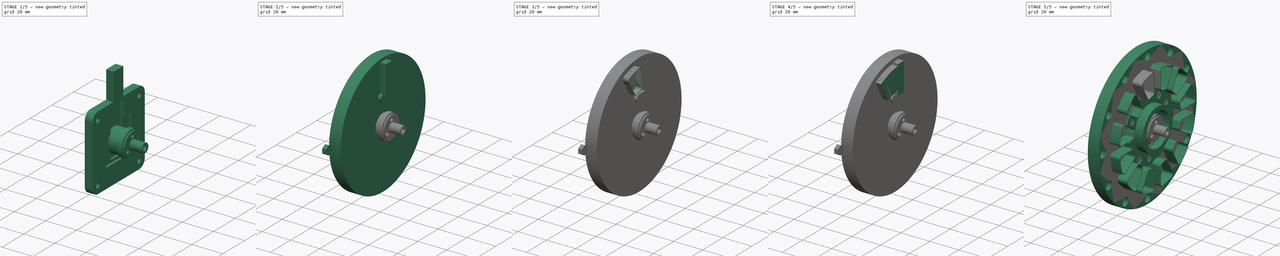
[diagram: build sequence overview — one tinted view per stage of 5, left to right]
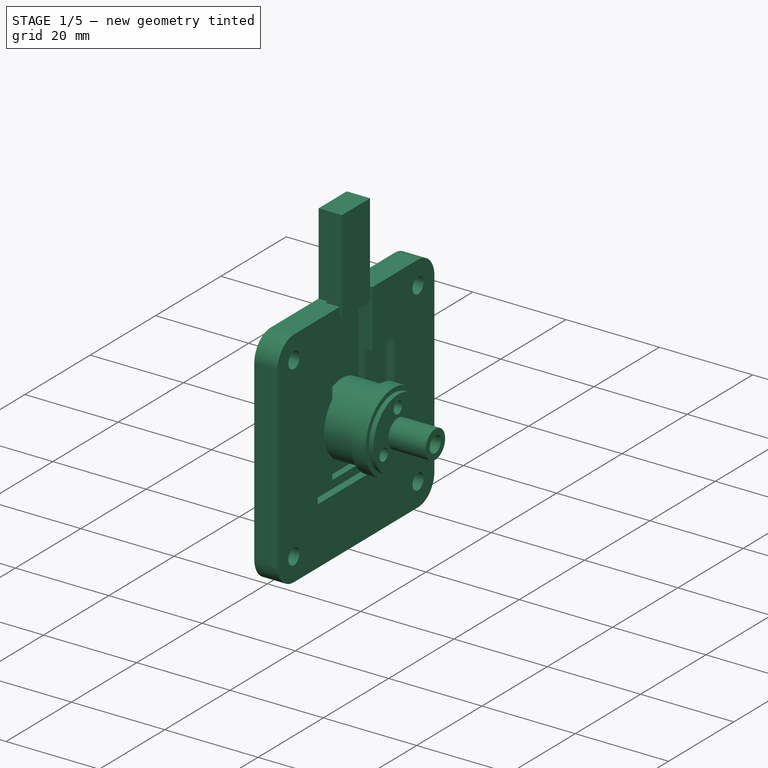
[diagram: stage 1 of 5 — iso view after this stage's code; geometry added in this stage tinted green]
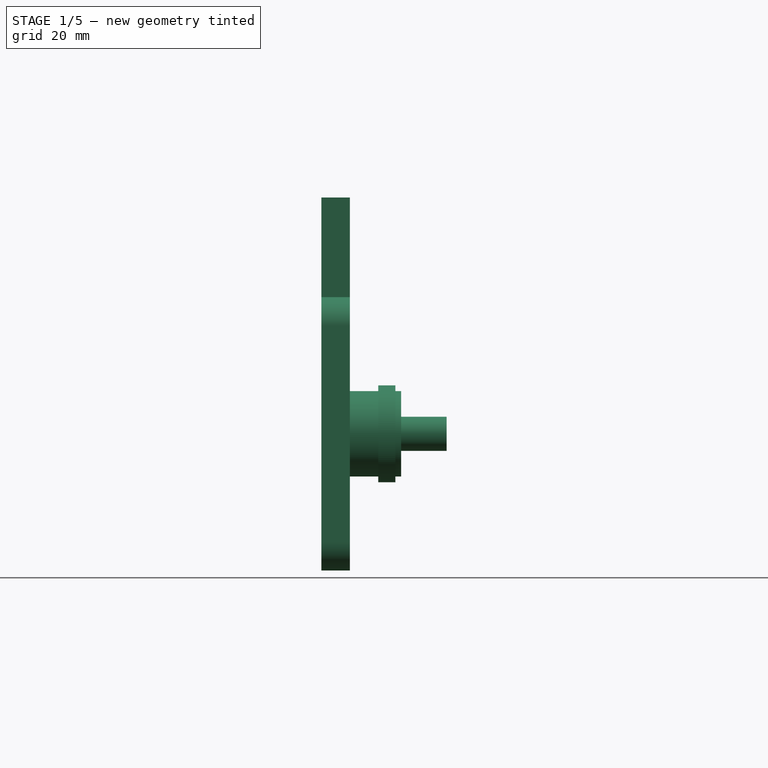
[diagram: stage 1 of 5 — front view after this stage's code; geometry added in this stage tinted green]
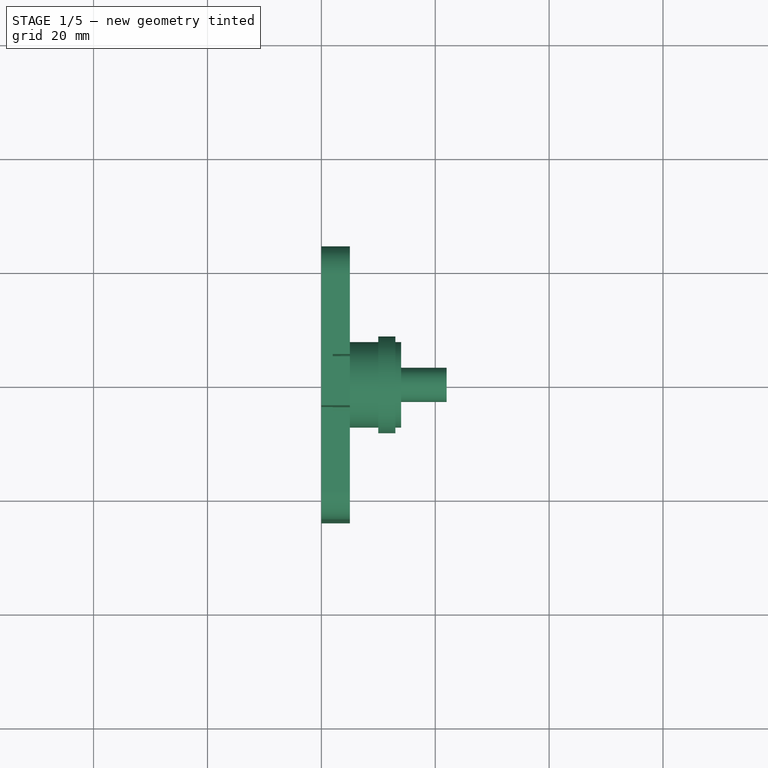
[diagram: stage 1 of 5 — top view after this stage's code; geometry added in this stage tinted green]
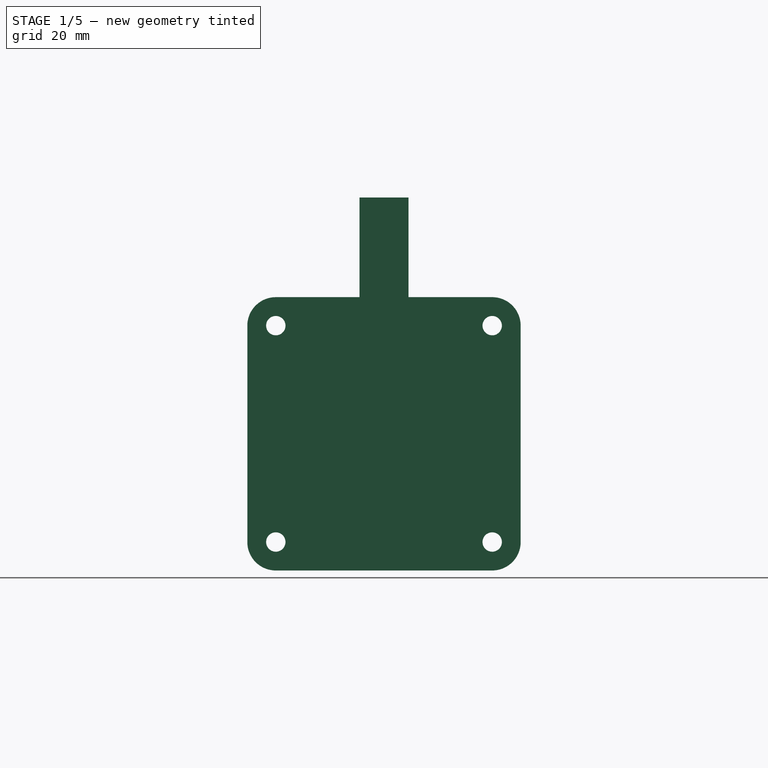
[diagram: stage 1 of 5 — right view after this stage's code; geometry added in this stage tinted green]
FCSTD DOCUMENT  (FreeCAD 1.0R39319 (Git))
Label: motor
License: All rights reserved
LicenseURL: https://en.wikipedia.org/wiki/All_rights_reserved
objects: Sketcher::SketchObject×97, PartDesign::Body×85, PartDesign::Pad×84, PartDesign::Boolean×15, PartDesign::Fillet×13, PartDesign::Pocket×12, PartDesign::Thickness×12, App::Part×8, PartDesign::Plane×7, App::DocumentObjectGroup×2, Part::Feature×1, PartDesign::Revolution×1, PartDesign::Chamfer×1
note: 686 computed .brp shape members not serialized (recipe doc carries the construction recipe); baked Part::Feature solids carry a one-line shape summary decoded from their .brp

FEATURE [PartDesign::Body] Body075
  AllowCompound = false
  Group = -> [Sketch094,Pad075]
  Origin = -> Origin081
  Placement = pos=(0,0,0) rot=(1,0,0;2.69234rad)
  Tip = -> Pad075
FEATURE [Sketcher::SketchObject] Sketch095
  ArcFitTolerance = 1e-06
  AttachmentSupport = -> [YZ_Plane082]
  FullyConstrained = true
  MakeInternals = false
  MapMode = 5
  Placement = pos=(0,0,0) rot=(0.57735,0.57735,0.57735;2.0944rad)
  sketch-geometry (4):
    g0: LineSegment StartX=-4.3 StartY=41.5 StartZ=0 EndX=-4.3 EndY=21.5 EndZ=0
    g1: LineSegment StartX=-4.3 StartY=21.5 StartZ=0 EndX=4.3 EndY=21.5 EndZ=0
    g2: LineSegment StartX=4.3 StartY=21.5 StartZ=0 EndX=4.3 EndY=41.5 EndZ=0
    g3: LineSegment StartX=4.3 StartY=41.5 StartZ=0 EndX=-4.3 EndY=41.5 EndZ=0
  constraints (11):
    c: Coincident(g0,g1)
    c: Coincident(g1,g2)
    c: Coincident(g2,g3)
    c: Coincident(g3,g0)
    c: Vertical(g0)
    c: Vertical(g2)
    c: Horizontal(g1)
    c: Symmetric(g2,g0,g-2)
    c: DistanceY(g2,g2) = 20
    c: DistanceX(g1,g1) = 8.6
    c: DistanceY(g-1,g1) = 21.5
FEATURE [PartDesign::Pad] Pad076
  Direction = (1,0,0)
  Length = 5
  Length2 = 10
  Placement = pos=(0,0,0) rot=(1,1,1;2.0944rad)
  Profile = -> Sketch095
  ReferenceAxis = -> Sketch095 [N_Axis]
  Refine = true
  Suppressed = false
  Type = 0
FEATURE [PartDesign::Body] Body076
  AllowCompound = false
  Group = -> [Sketch095,Pad076]
  Origin = -> Origin082
  Placement = pos=(0,0,0) rot=(1,0,0;2.24362rad)
  Tip = -> Pad076
FEATURE [Sketcher::SketchObject] Sketch096
  ArcFitTolerance = 1e-06
  AttachmentSupport = -> [YZ_Plane083]
  FullyConstrained = true
  MakeInternals = false
  MapMode = 5
  Placement = pos=(0,0,0) rot=(0.57735,0.57735,0.57735;2.0944rad)
  sketch-geometry (4):
    g0: LineSegment StartX=-4.3 StartY=41.5 StartZ=0 EndX=-4.3 EndY=21.5 EndZ=0
    g1: LineSegment StartX=-4.3 StartY=21.5 StartZ=0 EndX=4.3 EndY=21.5 EndZ=0
    g2: LineSegment StartX=4.3 StartY=21.5 StartZ=0 EndX=4.3 EndY=41.5 EndZ=0
    g3: LineSegment StartX=4.3 StartY=41.5 StartZ=0 EndX=-4.3 EndY=41.5 EndZ=0
  constraints (11):
    c: Coincident(g0,g1)
    c: Coincident(g1,g2)
    c: Coincident(g2,g3)
    c: Coincident(g3,g0)
    c: Vertical(g0)
    c: Vertical(g2)
    c: Horizontal(g1)
    c: Symmetric(g2,g0,g-2)
    c: DistanceY(g2,g2) = 20
    c: DistanceX(g1,g1) = 8.6
    c: DistanceY(g-1,g1) = 21.5
FEATURE [PartDesign::Pad] Pad077
  Direction = (1,0,0)
  Length = 5
  Length2 = 10
  Placement = pos=(0,0,0) rot=(1,1,1;2.0944rad)
  Profile = -> Sketch096
  ReferenceAxis = -> Sketch096 [N_Axis]
  Refine = true
  Suppressed = false
  Type = 0
FEATURE [PartDesign::Body] Body077
  AllowCompound = false
  Group = -> [Sketch096,Pad077]
  Origin = -> Origin083
  Placement = pos=(0,0,0) rot=(1,0,0;1.7949rad)
  Tip = -> Pad077
FEATURE [Sketcher::SketchObject] Sketch097
  ArcFitTolerance = 1e-06
  AttachmentSupport = -> [YZ_Plane084]
  FullyConstrained = true
  MakeInternals = false
  MapMode = 5
  Placement = pos=(0,0,0) rot=(0.57735,0.57735,0.57735;2.0944rad)
  sketch-geometry (4):
    g0: LineSegment StartX=-4.3 StartY=41.5 StartZ=0 EndX=-4.3 EndY=21.5 EndZ=0
    g1: LineSegment StartX=-4.3 StartY=21.5 StartZ=0 EndX=4.3 EndY=21.5 EndZ=0
    g2: LineSegment StartX=4.3 StartY=21.5 StartZ=0 EndX=4.3 EndY=41.5 EndZ=0
    g3: LineSegment StartX=4.3 StartY=41.5 StartZ=0 EndX=-4.3 EndY=41.5 EndZ=0
  constraints (11):
    c: Coincident(g0,g1)
    c: Coincident(g1,g2)
    c: Coincident(g2,g3)
    c: Coincident(g3,g0)
    c: Vertical(g0)
    c: Vertical(g2)
    c: Horizontal(g1)
    c: Symmetric(g2,g0,g-2)
    c: DistanceY(g2,g2) = 20
    c: DistanceX(g1,g1) = 8.6
    c: DistanceY(g-1,g1) = 21.5
FEATURE [PartDesign::Pad] Pad078
  Direction = (1,0,0)
  Length = 5
  Length2 = 10
  Placement = pos=(0,0,0) rot=(1,1,1;2.0944rad)
  Profile = -> Sketch097
  ReferenceAxis = -> Sketch097 [N_Axis]
  Refine = true
  Suppressed = false
  Type = 0
FEATURE [PartDesign::Body] Body078
  AllowCompound = false
  Group = -> [Sketch097,Pad078]
  Origin = -> Origin084
  Placement = pos=(0,0,0) rot=(1,0,0;1.34617rad)
  Tip = -> Pad078
FEATURE [Sketcher::SketchObject] Sketch098
  ArcFitTolerance = 1e-06
  AttachmentSupport = -> [YZ_Plane085]
  FullyConstrained = true
  MakeInternals = false
  MapMode = 5
  Placement = pos=(0,0,0) rot=(0.57735,0.57735,0.57735;2.0944rad)
  sketch-geometry (4):
    g0: LineSegment StartX=-4.3 StartY=41.5 StartZ=0 EndX=-4.3 EndY=21.5 EndZ=0
    g1: LineSegment StartX=-4.3 StartY=21.5 StartZ=0 EndX=4.3 EndY=21.5 EndZ=0
    g2: LineSegment StartX=4.3 StartY=21.5 StartZ=0 EndX=4.3 EndY=41.5 EndZ=0
    g3: LineSegment StartX=4.3 StartY=41.5 StartZ=0 EndX=-4.3 EndY=41.5 EndZ=0
  constraints (11):
    c: Coincident(g0,g1)
    c: Coincident(g1,g2)
    c: Coincident(g2,g3)
    c: Coincident(g3,g0)
    c: Vertical(g0)
    c: Vertical(g2)
    c: Horizontal(g1)
    c: Symmetric(g2,g0,g-2)
    c: DistanceY(g2,g2) = 20
    c: DistanceX(g1,g1) = 8.6
    c: DistanceY(g-1,g1) = 21.5
FEATURE [PartDesign::Pad] Pad079
  Direction = (1,0,0)
  Length = 5
  Length2 = 10
  Placement = pos=(0,0,0) rot=(1,1,1;2.0944rad)
  Profile = -> Sketch098
  ReferenceAxis = -> Sketch098 [N_Axis]
  Refine = true
  Suppressed = false
  Type = 0
FEATURE [PartDesign::Body] Body079
  AllowCompound = false
  Group = -> [Sketch098,Pad079]
  Origin = -> Origin085
  Placement = pos=(0,0,0) rot=(1,0,0;0.897448rad)
  Tip = -> Pad079
FEATURE [Sketcher::SketchObject] Sketch099
  ArcFitTolerance = 1e-06
  AttachmentSupport = -> [YZ_Plane086]
  FullyConstrained = true
  MakeInternals = false
  MapMode = 5
  Placement = pos=(0,0,0) rot=(0.57735,0.57735,0.57735;2.0944rad)
  sketch-geometry (4):
    g0: LineSegment StartX=-4.3 StartY=41.5 StartZ=0 EndX=-4.3 EndY=21.5 EndZ=0
    g1: LineSegment StartX=-4.3 StartY=21.5 StartZ=0 EndX=4.3 EndY=21.5 EndZ=0
    g2: LineSegment StartX=4.3 StartY=21.5 StartZ=0 EndX=4.3 EndY=41.5 EndZ=0
    g3: LineSegment StartX=4.3 StartY=41.5 StartZ=0 EndX=-4.3 EndY=41.5 EndZ=0
  constraints (11):
    c: Coincident(g0,g1)
    c: Coincident(g1,g2)
    c: Coincident(g2,g3)
    c: Coincident(g3,g0)
    c: Vertical(g0)
    c: Vertical(g2)
    c: Horizontal(g1)
    c: Symmetric(g2,g0,g-2)
    c: DistanceY(g2,g2) = 20
    c: DistanceX(g1,g1) = 8.6
    c: DistanceY(g-1,g1) = 21.5
FEATURE [PartDesign::Pad] Pad080
  Direction = (1,0,0)
  Length = 5
  Length2 = 10
  Placement = pos=(0,0,0) rot=(1,1,1;2.0944rad)
  Profile = -> Sketch099
  ReferenceAxis = -> Sketch099 [N_Axis]
  Refine = true
  Suppressed = false
  Type = 0
FEATURE [PartDesign::Body] Body016
  AllowCompound = false
  Group = -> [Sketch019,Pad016,Boolean014,DatumPlane005,Sketch100,Pocket009]
  Origin = -> Origin020
  Tip = -> Pocket009
FEATURE [App::Part] Part003  label="stator"
  Group = -> [Body016]
  Origin = -> Origin019
  Placement = pos=(-9,0,0) rot=(0,0,1;0rad)
FEATURE [Sketcher::SketchObject] Sketch101
  ArcFitTolerance = 1e-06
  AttachmentSupport = -> [XZ_Plane088]
  FullyConstrained = true
  MakeInternals = false
  MapMode = 5
  Placement = pos=(0,0,0) rot=(1,0,0;1.5708rad)
  sketch-geometry (8):
    g0: LineSegment StartX=0 StartY=0 StartZ=0 EndX=0 EndY=7.5 EndZ=0
    g1: LineSegment StartX=0 StartY=7.5 StartZ=0 EndX=10 EndY=7.5 EndZ=0
    g2: LineSegment StartX=10 StartY=7.5 StartZ=0 EndX=10 EndY=8.5 EndZ=0
    g3: LineSegment StartX=10 StartY=8.5 StartZ=0 EndX=13 EndY=8.5 EndZ=0
    g4: LineSegment StartX=13 StartY=8.5 StartZ=0 EndX=13 EndY=7.5 EndZ=0
    g5: LineSegment StartX=13 StartY=7.5 StartZ=0 EndX=14 EndY=7.5 EndZ=0
    g6: LineSegment StartX=14 StartY=7.5 StartZ=0 EndX=14 EndY=0 EndZ=0
    g7: LineSegment StartX=14 StartY=0 StartZ=0 EndX=0 EndY=0 EndZ=0
  constraints (23):
    c: Coincident(g-1,g0)
    c: PointOnObject(g0,g-2)
    c: Coincident(g0,g1)
    c: Horizontal(g1)
    c: Coincident(g1,g2)
    c: Vertical(g2)
    c: Coincident(g2,g3)
    c: Horizontal(g3)
    c: Coincident(g3,g4)
    c: Vertical(g4)
    c: Coincident(g4,g5)
    c: Horizontal(g5)
    c: Coincident(g5,g6)
    c: PointOnObject(g6,g-1)
    c: Vertical(g6)
    c: Coincident(g6,g7)
    c: Coincident(g7,g0)
    c: DistanceY(g6,g6) = 7.5
    c: DistanceX(g5,g5) = 1
    c: DistanceX(g3,g3) = 3
    c: DistanceY(g4,g4) = 1
    c: DistanceY(g0,g0) = 7.5
    c: DistanceX(g1,g1) = 10
FEATURE [PartDesign::Revolution] Revolution
  Angle = 360
  Angle2 = 60
  Axis = (1,0,0)
  Base = (0,0,0)
  Placement = pos=(0,0,0) rot=(1,0,0;1.5708rad)
  Profile = -> Sketch101
  ReferenceAxis = -> Sketch101 [H_Axis]
  Refine = true
  Suppressed = false
  Type = 0
FEATURE [PartDesign::Plane] DatumPlane006
  AttachmentSupport = -> [Revolution]
  Length = 60
  MapMode = 5
  Placement = pos=(0,0,0) rot=(0.707107,0,-0.707107;3.14159rad)
  ResizeMode = 0
  Width = 60
FEATURE [Sketcher::SketchObject] Sketch102
  ArcFitTolerance = 1e-06
  AttachmentSupport = -> [DatumPlane006]
  FullyConstrained = true
  MakeInternals = false
  MapMode = 5
  Placement = pos=(0,0,0) rot=(0.707107,0,-0.707107;3.14159rad)
  sketch-geometry (6):
    g0: Circle [constr] CenterX=0 CenterY=0 CenterZ=0 NormalX=0 NormalY=0 NormalZ=1 AngleXU=0 Radius=5
    g1: Circle CenterX=-5 CenterY=0 CenterZ=0 NormalX=0 NormalY=0 NormalZ=1 AngleXU=0 Radius=1.3
    g2: Circle CenterX=2.5 CenterY=-4.33013 CenterZ=0 NormalX=0 NormalY=0 NormalZ=1 AngleXU=0 Radius=1.3
    g3: Circle CenterX=2.5 CenterY=4.33013 CenterZ=0 NormalX=0 NormalY=0 NormalZ=1 AngleXU=0 Radius=1.3
    g4: LineSegment [constr] StartX=2.5 StartY=4.33013 StartZ=0 EndX=0 EndY=0 EndZ=0
    g5: LineSegment [constr] StartX=0 StartY=0 StartZ=0 EndX=2.5 EndY=-4.33013 EndZ=0
  constraints (15):
    c: Diameter(g0) = 10
    c: Coincident(g0,g-1)
    c: Diameter(g1) = 2.6
    c: PointOnObject(g2,g0)
    c: Diameter(g3) = 2.6
    c: PointOnObject(g3,g0)
    c: Diameter(g2) = 2.6
    c: Coincident(g4,g3)
    c: Coincident(g4,g0)
    c: Coincident(g5,g0)
    c: Coincident(g5,g2)
    c: PointOnObject(g1,g-1)
    c: PointOnObject(g1,g0)
    c: Angle(g-2,g5) = 0.523599
    c: Angle(g4,g-2) = 0.523599
FEATURE [PartDesign::Pocket] Pocket010
  BaseFeature = -> Revolution
  Direction = (1,0,2e-16)
  Length = 20
  Length2 = 5
  Placement = pos=(0,0,0) rot=(1,0,0;1.5708rad)
  Profile = -> Sketch102
  ReferenceAxis = -> Sketch102 [N_Axis]
  Refine = true
  Suppressed = false
  Type = 0
FEATURE [Sketcher::SketchObject] Sketch103
  ArcFitTolerance = 1e-06
  AttachmentSupport = -> [DatumPlane006]
  FullyConstrained = true
  MakeInternals = false
  MapMode = 5
  Placement = pos=(0,0,0) rot=(0.707107,0,-0.707107;3.14159rad)
  sketch-geometry (1):
    g0: Circle CenterX=0 CenterY=0 CenterZ=0 NormalX=0 NormalY=0 NormalZ=1 AngleXU=0 Radius=2
  constraints (2):
    c: Diameter(g0) = 4
    c: Coincident(g0,g-1)
FEATURE [PartDesign::Pocket] Pocket011
  BaseFeature = -> Pocket010
  Direction = (1,0,2e-16)
  Length = 2.4
  Length2 = 5
  Placement = pos=(0,0,0) rot=(1,0,0;1.5708rad)
  Profile = -> Sketch103
  ReferenceAxis = -> Sketch103 [N_Axis]
  Refine = true
  Suppressed = false
  Type = 0
FEATURE [PartDesign::Body] Body081
  AllowCompound = false
  Group = -> [Sketch101,Revolution,DatumPlane006,Sketch102,Pocket010,Sketch103,Pocket011]
  Origin = -> Origin088
  Tip = -> Pocket011
FEATURE [App::Part] Part  label="shaft"
  Group = -> [Body081]
  Origin = -> Origin087
  Placement = pos=(-22,0,0) rot=(0,0,1;0rad)
FEATURE [Sketcher::SketchObject] Sketch104
  ArcFitTolerance = 1e-06
  AttachmentSupport = -> [YZ_Plane090]
  FullyConstrained = true
  MakeInternals = false
  MapMode = 5
  Placement = pos=(0,0,0) rot=(0.57735,0.57735,0.57735;2.0944rad)
  sketch-geometry (2):
    g0: Circle CenterX=0 CenterY=0 CenterZ=0 NormalX=0 NormalY=0 NormalZ=1 AngleXU=0 Radius=1.7
    g1: Circle CenterX=0 CenterY=0 CenterZ=0 NormalX=0 NormalY=0 NormalZ=1 AngleXU=0 Radius=3
  constraints (4):
    c: Diameter(g0) = 3.4
    c: Coincident(g0,g-1)
    c: Diameter(g1) = 6
    c: Coincident(g1,g0)
FEATURE [PartDesign::Pad] Pad081
  Direction = (1,0,0)
  Length = 22
  Length2 = 10
  Placement = pos=(0,0,0) rot=(1,1,1;2.0944rad)
  Profile = -> Sketch104
  ReferenceAxis = -> Sketch104 [N_Axis]
  Refine = true
  Suppressed = false
  Type = 0
FEATURE [PartDesign::Body] Body082
  AllowCompound = false
  Group = -> [Sketch104,Pad081]
  Origin = -> Origin090
  Tip = -> Pad081
FEATURE [App::Part] Part006  label="spacer"
  Group = -> [Body082]
  Origin = -> Origin089
  Placement = pos=(-22,46,0) rot=(0,0,1;0rad)
FEATURE [Sketcher::SketchObject] Sketch105
  ArcFitTolerance = 1e-06
  AttachmentSupport = -> [YZ_Plane092]
  FullyConstrained = true
  MakeInternals = false
  MapMode = 5
  Placement = pos=(0,0,0) rot=(0.57735,0.57735,0.57735;2.0944rad)
  sketch-geometry (8):
    g0: LineSegment StartX=24 StartY=24 StartZ=0 EndX=-24 EndY=24 EndZ=0
    g1: LineSegment StartX=-24 StartY=24 StartZ=0 EndX=-24 EndY=-24 EndZ=0
    g2: LineSegment StartX=-24 StartY=-24 StartZ=0 EndX=24 EndY=-24 EndZ=0
    g3: LineSegment StartX=24 StartY=-24 StartZ=0 EndX=24 EndY=24 EndZ=0
    g4: Circle CenterX=19 CenterY=19 CenterZ=0 NormalX=0 NormalY=0 NormalZ=1 AngleXU=0 Radius=1.7
    g5: Circle CenterX=19 CenterY=-19 CenterZ=0 NormalX=0 NormalY=0 NormalZ=1 AngleXU=0 Radius=1.7
    g6: Circle CenterX=-19 CenterY=19 CenterZ=0 NormalX=0 NormalY=0 NormalZ=1 AngleXU=0 Radius=1.7
    g7: Circle CenterX=-19 CenterY=-19 CenterZ=0 NormalX=0 NormalY=0 NormalZ=1 AngleXU=0 Radius=1.7
  constraints (22):
    c: Coincident(g0,g1)
    c: Coincident(g1,g2)
    c: Coincident(g2,g3)
    c: Coincident(g3,g0)
    c: Horizontal(g0)
    c: Vertical(g1)
    c: Symmetric(g0,g2,g-1)
    c: Symmetric(g2,g1,g-2)
    c: DistanceY(g3,g3) = 48
    c: DistanceX(g0,g0) = 48
    c: Diameter(g4) = 3.4
    c: Diameter(g5) = 3.4
    c: Diameter(g6) = 3.4
    c: Diameter(g7) = 3.4
    c: DistanceY(g-1,g4) = 19
    c: DistanceY(g5,g-1) = 19
    c: DistanceX(g-1,g5) = 19
    c: DistanceX(g-1,g4) = 19
    c: DistanceX(g6,g-1) = 19
    c: DistanceY(g-1,g6) = 19
    c: DistanceX(g7,g-1) = 19
    c: DistanceY(g7,g-1) = 19
FEATURE [PartDesign::Pad] Pad082
  Direction = (1,0,0)
  Length = 5
  Length2 = 10
  Placement = pos=(0,0,0) rot=(1,1,1;2.0944rad)
  Profile = -> Sketch105
  ReferenceAxis = -> Sketch105 [N_Axis]
  Refine = true
  Suppressed = false
  Type = 0
FEATURE [PartDesign::Plane] DatumPlane007
  AttachmentSupport = -> [Pad082]
  Length = 60
  MapMode = 5
  Placement = pos=(5,0,0) rot=(0.57735,0.57735,0.57735;2.0944rad)
  ResizeMode = 0
  Width = 60
FEATURE [Sketcher::SketchObject] Sketch106
  ArcFitTolerance = 1e-06
  AttachmentSupport = -> [DatumPlane007]
  FullyConstrained = true
  MakeInternals = false
  MapMode = 5
  Placement = pos=(5,0,0) rot=(0.57735,0.57735,0.57735;2.0944rad)
  sketch-geometry (4):
    g0: LineSegment StartX=5 StartY=40 StartZ=0 EndX=-5 EndY=40 EndZ=0
    g1: LineSegment StartX=-5 StartY=40 StartZ=0 EndX=-5 EndY=-10 EndZ=0
    g2: LineSegment StartX=-5 StartY=-10 StartZ=0 EndX=5 EndY=-10 EndZ=0
    g3: LineSegment StartX=5 StartY=-10 StartZ=0 EndX=5 EndY=40 EndZ=0
  constraints (11):
    c: Coincident(g0,g1)
    c: Coincident(g1,g2)
    c: Coincident(g2,g3)
    c: Coincident(g3,g0)
    c: Horizontal(g2)
    c: Vertical(g1)
    c: Vertical(g3)
    c: Symmetric(g0,g0,g-2)
    c: DistanceX(g0,g0) = 10
    c: DistanceY(g3,g3) = 50
    c: DistanceY(g2,g-1) = 10
FEATURE [PartDesign::Pocket] Pocket012
  BaseFeature = -> Pad082
  Direction = (-1,0,0)
  Length = 3
  Length2 = 5
  Placement = pos=(0,0,0) rot=(1,1,1;2.0944rad)
  Profile = -> Sketch106
  ReferenceAxis = -> Sketch106 [N_Axis]
  Refine = true
  Suppressed = false
  Type = 0
FEATURE [Sketcher::SketchObject] Sketch107
  ArcFitTolerance = 1e-06
  AttachmentSupport = -> [DatumPlane007]
  FullyConstrained = true
  MakeInternals = false
  MapMode = 5
  Placement = pos=(5,0,0) rot=(0.57735,0.57735,0.57735;2.0944rad)
  sketch-geometry (4):
    g0: LineSegment StartX=-11.7 StartY=11.7 StartZ=0 EndX=-11.7 EndY=-11.7 EndZ=0
    g1: LineSegment StartX=-11.7 StartY=-11.7 StartZ=0 EndX=11.7 EndY=-11.7 EndZ=0
    g2: LineSegment StartX=11.7 StartY=-11.7 StartZ=0 EndX=11.7 EndY=11.7 EndZ=0
    g3: LineSegment StartX=11.7 StartY=11.7 StartZ=0 EndX=-11.7 EndY=11.7 EndZ=0
  constraints (10):
    c: Coincident(g0,g1)
    c: Coincident(g1,g2)
    c: Coincident(g2,g3)
    c: Coincident(g3,g0)
    c: Vertical(g2)
    c: Horizontal(g1)
    c: Symmetric(g0,g2,g-2)
    c: DistanceX(g3,g3) = 23.4
    c: DistanceY(g2,g2) = 23.4
    c: Symmetric(g0,g0,g-1)
FEATURE [PartDesign::Pocket] Pocket013
  BaseFeature = -> Pocket012
  Direction = (-1,0,0)
  Length = 1.6
  Length2 = 5
  Placement = pos=(0,0,0) rot=(1,1,1;2.0944rad)
  Profile = -> Sketch107
  ReferenceAxis = -> Sketch107 [N_Axis]
  Refine = true
  Suppressed = false
  Type = 0
FEATURE [PartDesign::Fillet] Fillet012
  Base = -> Pocket013 [Edge8,Edge2,Edge16,Edge40]
  BaseFeature = -> Pocket013
  Placement = pos=(0,0,0) rot=(1,1,1;2.0944rad)
  Radius = 5
  Refine = true
  SupportTransform = false
  Suppressed = false
  UseAllEdges = false
FEATURE [PartDesign::Chamfer] Chamfer
  Angle = 45
  Base = -> Fillet012 [Edge19,Edge17,Edge18,Edge16]
  BaseFeature = -> Fillet012
  ChamferType = 2
  FlipDirection = false
  Placement = pos=(0,0,0) rot=(1,1,1;2.0944rad)
  Refine = true
  Size = 1.3
  Size2 = 1
  SupportTransform = false
  Suppressed = false
  UseAllEdges = false
FEATURE [PartDesign::Body] Body083
  AllowCompound = false
  Group = -> [Sketch105,Pad082,DatumPlane007,Sketch106,Pocket012,Sketch107,Pocket013,Fillet012,Chamfer]
  Origin = -> Origin092
  Tip = -> Chamfer
FEATURE [App::Part] Part007  label="backplate"
  Group = -> [Body083]
  Origin = -> Origin091
  Placement = pos=(-32,0,0) rot=(1,0,0;0.785398rad)
FEATURE [App::DocumentObjectGroup] Group  label="spacers"
  Group = -> [Part006]
FEATURE [Sketcher::SketchObject] Sketch108
  ArcFitTolerance = 1e-06
  AttachmentSupport = -> [YZ_Plane093]
  FullyConstrained = true
  MakeInternals = false
  MapMode = 5
  Placement = pos=(0,0,0) rot=(0.57735,0.57735,0.57735;2.0944rad)
  sketch-geometry (4):
    g0: LineSegment StartX=-4.3 StartY=41.5 StartZ=0 EndX=-4.3 EndY=21.5 EndZ=0
    g1: LineSegment StartX=-4.3 StartY=21.5 StartZ=0 EndX=4.3 EndY=21.5 EndZ=0
    g2: LineSegment StartX=4.3 StartY=21.5 StartZ=0 EndX=4.3 EndY=41.5 EndZ=0
    g3: LineSegment StartX=4.3 StartY=41.5 StartZ=0 EndX=-4.3 EndY=41.5 EndZ=0
  constraints (11):
    c: Coincident(g0,g1)
    c: Coincident(g1,g2)
    c: Coincident(g2,g3)
    c: Coincident(g3,g0)
    c: Vertical(g0)
    c: Vertical(g2)
    c: Horizontal(g1)
    c: Symmetric(g2,g0,g-2)
    c: DistanceY(g2,g2) = 20
    c: DistanceX(g1,g1) = 8.6
    c: DistanceY(g-1,g1) = 21.5
FEATURE [PartDesign::Pad] Pad083
  Direction = (1,0,0)
  Length = 5
  Length2 = 10
  Placement = pos=(0,0,0) rot=(1,1,1;2.0944rad)
  Profile = -> Sketch108
  ReferenceAxis = -> Sketch108 [N_Axis]
  Refine = true
  Suppressed = false
  Type = 0
FEATURE [PartDesign::Body] Body084
  AllowCompound = false
  Group = -> [Sketch108,Pad083]
  Origin = -> Origin093
  Tip = -> Pad083
FEATURE [Sketcher::SketchObject] Sketch109
  ArcFitTolerance = 1e-06
  AttachmentSupport = -> [YZ_Plane094]
  FullyConstrained = true
  MakeInternals = false
  MapMode = 5
  Placement = pos=(0,0,0) rot=(0.57735,0.57735,0.57735;2.0944rad)
  sketch-geometry (4):
    g0: LineSegment StartX=-4.3 StartY=41.5 StartZ=0 EndX=-4.3 EndY=21.5 EndZ=0
    g1: LineSegment StartX=-4.3 StartY=21.5 StartZ=0 EndX=4.3 EndY=21.5 EndZ=0
    g2: LineSegment StartX=4.3 StartY=21.5 StartZ=0 EndX=4.3 EndY=41.5 EndZ=0
    g3: LineSegment StartX=4.3 StartY=41.5 StartZ=0 EndX=-4.3 EndY=41.5 EndZ=0
  constraints (11):
    c: Coincident(g0,g1)
    c: Coincident(g1,g2)
    c: Coincident(g2,g3)
    c: Coincident(g3,g0)
    c: Vertical(g0)
    c: Vertical(g2)
    c: Horizontal(g1)
    c: Symmetric(g2,g0,g-2)
    c: DistanceY(g2,g2) = 20
    c: DistanceX(g1,g1) = 8.6
    c: DistanceY(g-1,g1) = 21.5
FEATURE [PartDesign::Pad] Pad084
  Direction = (1,0,0)
  Length = 5
  Length2 = 10
  Placement = pos=(0,0,0) rot=(1,1,1;2.0944rad)
  Profile = -> Sketch109
  ReferenceAxis = -> Sketch109 [N_Axis]
  Refine = true
  Suppressed = false
  Type = 0
FEATURE [PartDesign::Body] Body085
  AllowCompound = false
  Group = -> [Sketch109,Pad084]
  Origin = -> Origin094
  Placement = pos=(0,0,0) rot=(1,0,0;5.83446rad)
  Tip = -> Pad084
FEATURE [Sketcher::SketchObject] Sketch110
  ArcFitTolerance = 1e-06
  AttachmentSupport = -> [YZ_Plane095]
  FullyConstrained = true
  MakeInternals = false
  MapMode = 5
  Placement = pos=(0,0,0) rot=(0.57735,0.57735,0.57735;2.0944rad)
  sketch-geometry (4):
    g0: LineSegment StartX=-4.3 StartY=41.5 StartZ=0 EndX=-4.3 EndY=21.5 EndZ=0
    g1: LineSegment StartX=-4.3 StartY=21.5 StartZ=0 EndX=4.3 EndY=21.5 EndZ=0
    g2: LineSegment StartX=4.3 StartY=21.5 StartZ=0 EndX=4.3 EndY=41.5 EndZ=0
    g3: LineSegment StartX=4.3 StartY=41.5 StartZ=0 EndX=-4.3 EndY=41.5 EndZ=0
  constraints (11):
    c: Coincident(g0,g1)
    c: Coincident(g1,g2)
    c: Coincident(g2,g3)
    c: Coincident(g3,g0)
    c: Vertical(g0)
    c: Vertical(g2)
    c: Horizontal(g1)
    c: Symmetric(g2,g0,g-2)
    c: DistanceY(g2,g2) = 20
    c: DistanceX(g1,g1) = 8.6
    c: DistanceY(g-1,g1) = 21.5
FEATURE [PartDesign::Pad] Pad085
  Direction = (1,0,0)
  Length = 5
  Length2 = 10
  Placement = pos=(0,0,0) rot=(1,1,1;2.0944rad)
  Profile = -> Sketch110
  ReferenceAxis = -> Sketch110 [N_Axis]
  Refine = true
  Suppressed = false
  Type = 0
FEATURE [PartDesign::Body] Body086
  AllowCompound = false
  Group = -> [Sketch110,Pad085]
  Origin = -> Origin095
  Placement = pos=(0,0,0) rot=(1,0,0;5.38574rad)
  Tip = -> Pad085
FEATURE [Sketcher::SketchObject] Sketch111
  ArcFitTolerance = 1e-06
  AttachmentSupport = -> [YZ_Plane096]
  FullyConstrained = true
  MakeInternals = false
  MapMode = 5
  Placement = pos=(0,0,0) rot=(0.57735,0.57735,0.57735;2.0944rad)
  sketch-geometry (4):
    g0: LineSegment StartX=-4.3 StartY=41.5 StartZ=0 EndX=-4.3 EndY=21.5 EndZ=0
    g1: LineSegment StartX=-4.3 StartY=21.5 StartZ=0 EndX=4.3 EndY=21.5 EndZ=0
    g2: LineSegment StartX=4.3 StartY=21.5 StartZ=0 EndX=4.3 EndY=41.5 EndZ=0
    g3: LineSegment StartX=4.3 StartY=41.5 StartZ=0 EndX=-4.3 EndY=41.5 EndZ=0
  constraints (11):
    c: Coincident(g0,g1)
    c: Coincident(g1,g2)
    c: Coincident(g2,g3)
    c: Coincident(g3,g0)
    c: Vertical(g0)
    c: Vertical(g2)
    c: Horizontal(g1)
    c: Symmetric(g2,g0,g-2)
    c: DistanceY(g2,g2) = 20
    c: DistanceX(g1,g1) = 8.6
    c: DistanceY(g-1,g1) = 21.5
FEATURE [PartDesign::Pad] Pad086
  Direction = (1,0,0)
  Length = 5
  Length2 = 10
  Placement = pos=(0,0,0) rot=(1,1,1;2.0944rad)
  Profile = -> Sketch111
  ReferenceAxis = -> Sketch111 [N_Axis]
  Refine = true
  Suppressed = false
  Type = 0
FEATURE [PartDesign::Body] Body087
  AllowCompound = false
  Group = -> [Sketch111,Pad086]
  Origin = -> Origin096
  Placement = pos=(0,0,0) rot=(1,0,0;4.93701rad)
  Tip = -> Pad086
FEATURE [Sketcher::SketchObject] Sketch112
  ArcFitTolerance = 1e-06
  AttachmentSupport = -> [YZ_Plane097]
  FullyConstrained = true
  MakeInternals = false
  MapMode = 5
  Placement = pos=(0,0,0) rot=(0.57735,0.57735,0.57735;2.0944rad)
  sketch-geometry (4):
    g0: LineSegment StartX=-4.3 StartY=41.5 StartZ=0 EndX=-4.3 EndY=21.5 EndZ=0
    g1: LineSegment StartX=-4.3 StartY=21.5 StartZ=0 EndX=4.3 EndY=21.5 EndZ=0
    g2: LineSegment StartX=4.3 StartY=21.5 StartZ=0 EndX=4.3 EndY=41.5 EndZ=0
    g3: LineSegment StartX=4.3 StartY=41.5 StartZ=0 EndX=-4.3 EndY=41.5 EndZ=0
  constraints (11):
    c: Coincident(g0,g1)
    c: Coincident(g1,g2)
    c: Coincident(g2,g3)
    c: Coincident(g3,g0)
    c: Vertical(g0)
    c: Vertical(g2)
    c: Horizontal(g1)
    c: Symmetric(g2,g0,g-2)
    c: DistanceY(g2,g2) = 20
    c: DistanceX(g1,g1) = 8.6
    c: DistanceY(g-1,g1) = 21.5
FEATURE [PartDesign::Pad] Pad087
  Direction = (1,0,0)
  Length = 5
  Length2 = 10
  Placement = pos=(0,0,0) rot=(1,1,1;2.0944rad)
  Profile = -> Sketch112
  ReferenceAxis = -> Sketch112 [N_Axis]
  Refine = true
  Suppressed = false
  Type = 0
FEATURE [PartDesign::Body] Body088
  AllowCompound = false
  Group = -> [Sketch112,Pad087]
  Origin = -> Origin097
  Placement = pos=(0,0,0) rot=(1,0,0;4.48829rad)
  Tip = -> Pad087
FEATURE [Sketcher::SketchObject] Sketch113
  ArcFitTolerance = 1e-06
  AttachmentSupport = -> [YZ_Plane098]
  FullyConstrained = true
  MakeInternals = false
  MapMode = 5
  Placement = pos=(0,0,0) rot=(0.57735,0.57735,0.57735;2.0944rad)
  sketch-geometry (4):
    g0: LineSegment StartX=-4.3 StartY=41.5 StartZ=0 EndX=-4.3 EndY=21.5 EndZ=0
    g1: LineSegment StartX=-4.3 StartY=21.5 StartZ=0 EndX=4.3 EndY=21.5 EndZ=0
    g2: LineSegment StartX=4.3 StartY=21.5 StartZ=0 EndX=4.3 EndY=41.5 EndZ=0
    g3: LineSegment StartX=4.3 StartY=41.5 StartZ=0 EndX=-4.3 EndY=41.5 EndZ=0
  constraints (11):
    c: Coincident(g0,g1)
    c: Coincident(g1,g2)
    c: Coincident(g2,g3)
    c: Coincident(g3,g0)
    c: Vertical(g0)
    c: Vertical(g2)
    c: Horizontal(g1)
    c: Symmetric(g2,g0,g-2)
    c: DistanceY(g2,g2) = 20
    c: DistanceX(g1,g1) = 8.6
    c: DistanceY(g-1,g1) = 21.5
FEATURE [PartDesign::Pad] Pad088
  Direction = (1,0,0)
  Length = 5
  Length2 = 10
  Placement = pos=(0,0,0) rot=(1,1,1;2.0944rad)
  Profile = -> Sketch113
  ReferenceAxis = -> Sketch113 [N_Axis]
  Refine = true
  Suppressed = false
  Type = 0
FEATURE [PartDesign::Body] Body089
  AllowCompound = false
  Group = -> [Sketch113,Pad088]
  Origin = -> Origin098
  Placement = pos=(0,0,0) rot=(1,0,0;4.03956rad)
  Tip = -> Pad088
FEATURE [Sketcher::SketchObject] Sketch114
  ArcFitTolerance = 1e-06
  AttachmentSupport = -> [YZ_Plane099]
  FullyConstrained = true
  MakeInternals = false
  MapMode = 5
  Placement = pos=(0,0,0) rot=(0.57735,0.57735,0.57735;2.0944rad)
  sketch-geometry (4):
    g0: LineSegment StartX=-4.3 StartY=41.5 StartZ=0 EndX=-4.3 EndY=21.5 EndZ=0
    g1: LineSegment StartX=-4.3 StartY=21.5 StartZ=0 EndX=4.3 EndY=21.5 EndZ=0
    g2: LineSegment StartX=4.3 StartY=21.5 StartZ=0 EndX=4.3 EndY=41.5 EndZ=0
    g3: LineSegment StartX=4.3 StartY=41.5 StartZ=0 EndX=-4.3 EndY=41.5 EndZ=0
  constraints (11):
    c: Coincident(g0,g1)
    c: Coincident(g1,g2)
    c: Coincident(g2,g3)
    c: Coincident(g3,g0)
    c: Vertical(g0)
    c: Vertical(g2)
    c: Horizontal(g1)
    c: Symmetric(g2,g0,g-2)
    c: DistanceY(g2,g2) = 20
    c: DistanceX(g1,g1) = 8.6
    c: DistanceY(g-1,g1) = 21.5
FEATURE [PartDesign::Pad] Pad089
  Direction = (1,0,0)
  Length = 5
  Length2 = 10
  Placement = pos=(0,0,0) rot=(1,1,1;2.0944rad)
  Profile = -> Sketch114
  ReferenceAxis = -> Sketch114 [N_Axis]
  Refine = true
  Suppressed = false
  Type = 0
FEATURE [PartDesign::Body] Body090
  AllowCompound = false
  Group = -> [Sketch114,Pad089]
  Origin = -> Origin099
  Placement = pos=(0,0,0) rot=(1,0,0;3.59084rad)
  Tip = -> Pad089
FEATURE [Sketcher::SketchObject] Sketch115
  ArcFitTolerance = 1e-06
  AttachmentSupport = -> [YZ_Plane100]
  FullyConstrained = true
  MakeInternals = false
  MapMode = 5
  Placement = pos=(0,0,0) rot=(0.57735,0.57735,0.57735;2.0944rad)
  sketch-geometry (4):
    g0: LineSegment StartX=-4.3 StartY=41.5 StartZ=0 EndX=-4.3 EndY=21.5 EndZ=0
    g1: LineSegment StartX=-4.3 StartY=21.5 StartZ=0 EndX=4.3 EndY=21.5 EndZ=0
    g2: LineSegment StartX=4.3 StartY=21.5 StartZ=0 EndX=4.3 EndY=41.5 EndZ=0
    g3: LineSegment StartX=4.3 StartY=41.5 StartZ=0 EndX=-4.3 EndY=41.5 EndZ=0
  constraints (11):
    c: Coincident(g0,g1)
    c: Coincident(g1,g2)
    c: Coincident(g2,g3)
    c: Coincident(g3,g0)
    c: Vertical(g0)
    c: Vertical(g2)
    c: Horizontal(g1)
    c: Symmetric(g2,g0,g-2)
    c: DistanceY(g2,g2) = 20
    c: DistanceX(g1,g1) = 8.6
    c: DistanceY(g-1,g1) = 21.5
FEATURE [PartDesign::Pad] Pad090
  Direction = (1,0,0)
  Length = 5
  Length2 = 10
  Placement = pos=(0,0,0) rot=(1,1,1;2.0944rad)
  Profile = -> Sketch115
  ReferenceAxis = -> Sketch115 [N_Axis]
  Refine = true
  Suppressed = false
  Type = 0
FEATURE [PartDesign::Body] Body091
  AllowCompound = false
  Group = -> [Sketch115,Pad090]
  Origin = -> Origin100
  Placement = pos=(0,0,0) rot=(1,0,0;3.14107rad)
  Tip = -> Pad090
FEATURE [Sketcher::SketchObject] Sketch116
  ArcFitTolerance = 1e-06
  AttachmentSupport = -> [YZ_Plane101]
  FullyConstrained = true
  MakeInternals = false
  MapMode = 5
  Placement = pos=(0,0,0) rot=(0.57735,0.57735,0.57735;2.0944rad)
  sketch-geometry (4):
    g0: LineSegment StartX=-4.3 StartY=41.5 StartZ=0 EndX=-4.3 EndY=21.5 EndZ=0
    g1: LineSegment StartX=-4.3 StartY=21.5 StartZ=0 EndX=4.3 EndY=21.5 EndZ=0
    g2: LineSegment StartX=4.3 StartY=21.5 StartZ=0 EndX=4.3 EndY=41.5 EndZ=0
    g3: LineSegment StartX=4.3 StartY=41.5 StartZ=0 EndX=-4.3 EndY=41.5 EndZ=0
  constraints (11):
    c: Coincident(g0,g1)
    c: Coincident(g1,g2)
    c: Coincident(g2,g3)
    c: Coincident(g3,g0)
    c: Vertical(g0)
    c: Vertical(g2)
    c: Horizontal(g1)
    c: Symmetric(g2,g0,g-2)
    c: DistanceY(g2,g2) = 20
    c: DistanceX(g1,g1) = 8.6
    c: DistanceY(g-1,g1) = 21.5
FEATURE [PartDesign::Pad] Pad091
  Direction = (1,0,0)
  Length = 5
  Length2 = 10
  Placement = pos=(0,0,0) rot=(1,1,1;2.0944rad)
  Profile = -> Sketch116
  ReferenceAxis = -> Sketch116 [N_Axis]
  Refine = true
  Suppressed = false
  Type = 0
FEATURE [PartDesign::Body] Body092
  AllowCompound = false
  Group = -> [Sketch116,Pad091]
  Origin = -> Origin101
  Placement = pos=(0,0,0) rot=(1,0,0;2.69234rad)
  Tip = -> Pad091
FEATURE [Sketcher::SketchObject] Sketch117
  ArcFitTolerance = 1e-06
  AttachmentSupport = -> [YZ_Plane102]
  FullyConstrained = true
  MakeInternals = false
  MapMode = 5
  Placement = pos=(0,0,0) rot=(0.57735,0.57735,0.57735;2.0944rad)
  sketch-geometry (4):
    g0: LineSegment StartX=-4.3 StartY=41.5 StartZ=0 EndX=-4.3 EndY=21.5 EndZ=0
    g1: LineSegment StartX=-4.3 StartY=21.5 StartZ=0 EndX=4.3 EndY=21.5 EndZ=0
    g2: LineSegment StartX=4.3 StartY=21.5 StartZ=0 EndX=4.3 EndY=41.5 EndZ=0
    g3: LineSegment StartX=4.3 StartY=41.5 StartZ=0 EndX=-4.3 EndY=41.5 EndZ=0
  constraints (11):
    c: Coincident(g0,g1)
    c: Coincident(g1,g2)
    c: Coincident(g2,g3)
    c: Coincident(g3,g0)
    c: Vertical(g0)
    c: Vertical(g2)
    c: Horizontal(g1)
    c: Symmetric(g2,g0,g-2)
    c: DistanceY(g2,g2) = 20
    c: DistanceX(g1,g1) = 8.6
    c: DistanceY(g-1,g1) = 21.5
FEATURE [PartDesign::Pad] Pad092
  Direction = (1,0,0)
  Length = 5
  Length2 = 10
  Placement = pos=(0,0,0) rot=(1,1,1;2.0944rad)
  Profile = -> Sketch117
  ReferenceAxis = -> Sketch117 [N_Axis]
  Refine = true
  Suppressed = false
  Type = 0
FEATURE [PartDesign::Body] Body093
  AllowCompound = false
  Group = -> [Sketch117,Pad092]
  Origin = -> Origin102
  Placement = pos=(0,0,0) rot=(1,0,0;2.24362rad)
  Tip = -> Pad092
FEATURE [Sketcher::SketchObject] Sketch118
  ArcFitTolerance = 1e-06
  AttachmentSupport = -> [YZ_Plane103]
  FullyConstrained = true
  MakeInternals = false
  MapMode = 5
  Placement = pos=(0,0,0) rot=(0.57735,0.57735,0.57735;2.0944rad)
  sketch-geometry (4):
    g0: LineSegment StartX=-4.3 StartY=41.5 StartZ=0 EndX=-4.3 EndY=21.5 EndZ=0
    g1: LineSegment StartX=-4.3 StartY=21.5 StartZ=0 EndX=4.3 EndY=21.5 EndZ=0
    g2: LineSegment StartX=4.3 StartY=21.5 StartZ=0 EndX=4.3 EndY=41.5 EndZ=0
    g3: LineSegment StartX=4.3 StartY=41.5 StartZ=0 EndX=-4.3 EndY=41.5 EndZ=0
  constraints (11):
    c: Coincident(g0,g1)
    c: Coincident(g1,g2)
    c: Coincident(g2,g3)
    c: Coincident(g3,g0)
    c: Vertical(g0)
    c: Vertical(g2)
    c: Horizontal(g1)
    c: Symmetric(g2,g0,g-2)
    c: DistanceY(g2,g2) = 20
    c: DistanceX(g1,g1) = 8.6
    c: DistanceY(g-1,g1) = 21.5
FEATURE [PartDesign::Pad] Pad093
  Direction = (1,0,0)
  Length = 5
  Length2 = 10
  Placement = pos=(0,0,0) rot=(1,1,1;2.0944rad)
  Profile = -> Sketch118
  ReferenceAxis = -> Sketch118 [N_Axis]
  Refine = true
  Suppressed = false
  Type = 0
FEATURE [PartDesign::Body] Body094
  AllowCompound = false
  Group = -> [Sketch118,Pad093]
  Origin = -> Origin103
  Placement = pos=(0,0,0) rot=(1,0,0;1.7949rad)
  Tip = -> Pad093
FEATURE [Sketcher::SketchObject] Sketch119
  ArcFitTolerance = 1e-06
  AttachmentSupport = -> [YZ_Plane104]
  FullyConstrained = true
  MakeInternals = false
  MapMode = 5
  Placement = pos=(0,0,0) rot=(0.57735,0.57735,0.57735;2.0944rad)
  sketch-geometry (4):
    g0: LineSegment StartX=-4.3 StartY=41.5 StartZ=0 EndX=-4.3 EndY=21.5 EndZ=0
    g1: LineSegment StartX=-4.3 StartY=21.5 StartZ=0 EndX=4.3 EndY=21.5 EndZ=0
    g2: LineSegment StartX=4.3 StartY=21.5 StartZ=0 EndX=4.3 EndY=41.5 EndZ=0
    g3: LineSegment StartX=4.3 StartY=41.5 StartZ=0 EndX=-4.3 EndY=41.5 EndZ=0
  constraints (11):
    c: Coincident(g0,g1)
    c: Coincident(g1,g2)
    c: Coincident(g2,g3)
    c: Coincident(g3,g0)
    c: Vertical(g0)
    c: Vertical(g2)
    c: Horizontal(g1)
    c: Symmetric(g2,g0,g-2)
    c: DistanceY(g2,g2) = 20
    c: DistanceX(g1,g1) = 8.6
    c: DistanceY(g-1,g1) = 21.5
FEATURE [PartDesign::Pad] Pad094
  Direction = (1,0,0)
  Length = 5
  Length2 = 10
  Placement = pos=(0,0,0) rot=(1,1,1;2.0944rad)
  Profile = -> Sketch119
  ReferenceAxis = -> Sketch119 [N_Axis]
  Refine = true
  Suppressed = false
  Type = 0
FEATURE [PartDesign::Body] Body095
  AllowCompound = false
  Group = -> [Sketch119,Pad094]
  Origin = -> Origin104
  Placement = pos=(0,0,0) rot=(1,0,0;1.34617rad)
  Tip = -> Pad094
FEATURE [Sketcher::SketchObject] Sketch120
  ArcFitTolerance = 1e-06
  AttachmentSupport = -> [YZ_Plane105]
  FullyConstrained = true
  MakeInternals = false
  MapMode = 5
  Placement = pos=(0,0,0) rot=(0.57735,0.57735,0.57735;2.0944rad)
  sketch-geometry (4):
    g0: LineSegment StartX=-4.3 StartY=41.5 StartZ=0 EndX=-4.3 EndY=21.5 EndZ=0
    g1: LineSegment StartX=-4.3 StartY=21.5 StartZ=0 EndX=4.3 EndY=21.5 EndZ=0
    g2: LineSegment StartX=4.3 StartY=21.5 StartZ=0 EndX=4.3 EndY=41.5 EndZ=0
    g3: LineSegment StartX=4.3 StartY=41.5 StartZ=0 EndX=-4.3 EndY=41.5 EndZ=0
  constraints (11):
    c: Coincident(g0,g1)
    c: Coincident(g1,g2)
    c: Coincident(g2,g3)
    c: Coincident(g3,g0)
    c: Vertical(g0)
    c: Vertical(g2)
    c: Horizontal(g1)
    c: Symmetric(g2,g0,g-2)
    c: DistanceY(g2,g2) = 20
    c: DistanceX(g1,g1) = 8.6
    c: DistanceY(g-1,g1) = 21.5
FEATURE [PartDesign::Pad] Pad095
  Direction = (1,0,0)
  Length = 5
  Length2 = 10
  Placement = pos=(0,0,0) rot=(1,1,1;2.0944rad)
  Profile = -> Sketch120
  ReferenceAxis = -> Sketch120 [N_Axis]
  Refine = true
  Suppressed = false
  Type = 0
FEATURE [PartDesign::Body] Body096
  AllowCompound = false
  Group = -> [Sketch120,Pad095]
  Origin = -> Origin105
  Placement = pos=(0,0,0) rot=(1,0,0;0.897448rad)
  Tip = -> Pad095
FEATURE [Sketcher::SketchObject] Sketch121
  ArcFitTolerance = 1e-06
  AttachmentSupport = -> [YZ_Plane106]
  FullyConstrained = true
  MakeInternals = false
  MapMode = 5
  Placement = pos=(0,0,0) rot=(0.57735,0.57735,0.57735;2.0944rad)
  sketch-geometry (4):
    g0: LineSegment StartX=-4.3 StartY=41.5 StartZ=0 EndX=-4.3 EndY=21.5 EndZ=0
    g1: LineSegment StartX=-4.3 StartY=21.5 StartZ=0 EndX=4.3 EndY=21.5 EndZ=0
    g2: LineSegment StartX=4.3 StartY=21.5 StartZ=0 EndX=4.3 EndY=41.5 EndZ=0
    g3: LineSegment StartX=4.3 StartY=41.5 StartZ=0 EndX=-4.3 EndY=41.5 EndZ=0
  constraints (11):
    c: Coincident(g0,g1)
    c: Coincident(g1,g2)
    c: Coincident(g2,g3)
    c: Coincident(g3,g0)
    c: Vertical(g0)
    c: Vertical(g2)
    c: Horizontal(g1)
    c: Symmetric(g2,g0,g-2)
    c: DistanceY(g2,g2) = 20
    c: DistanceX(g1,g1) = 8.6
    c: DistanceY(g-1,g1) = 21.5
FEATURE [PartDesign::Pad] Pad096
  Direction = (1,0,0)
  Length = 5
  Length2 = 10
  Placement = pos=(0,0,0) rot=(1,1,1;2.0944rad)
  Profile = -> Sketch121
  ReferenceAxis = -> Sketch121 [N_Axis]
  Refine = true
  Suppressed = false
  Type = 0
FEATURE [PartDesign::Body] Body097
  AllowCompound = false
  Group = -> [Sketch121,Pad096]
  Origin = -> Origin106
  Placement = pos=(0,0,0) rot=(1,0,0;0.448724rad)
  Tip = -> Pad096
FEATURE [App::DocumentObjectGroup] Group001  label="magnets"
  Group = -> [Body095,Body087,Body089,Body085,Body092,Body093,Body086,Body084,Body088,Body091,Body096,Body090,Body094,Body097]
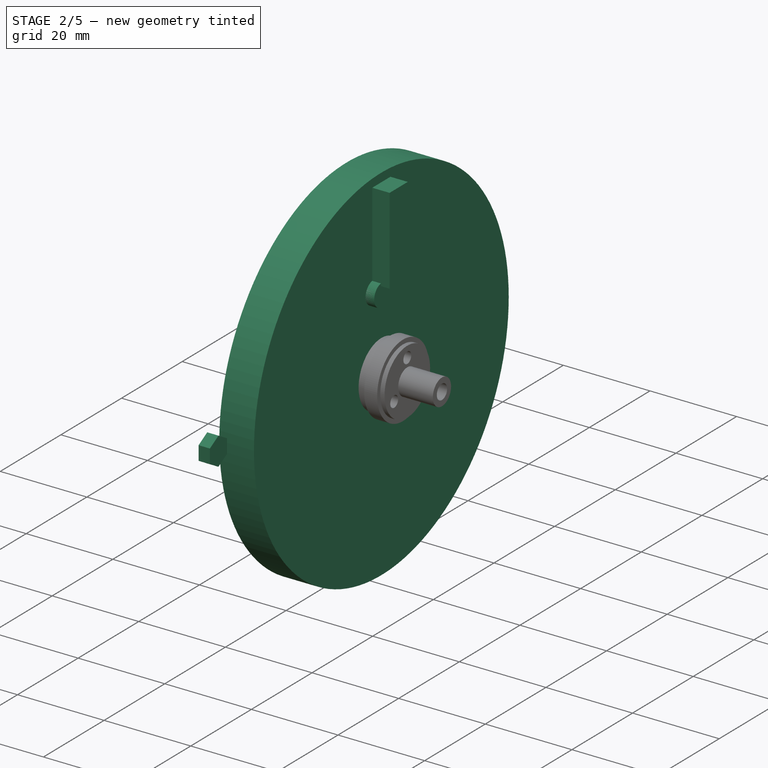
[diagram: stage 2 of 5 — iso view after this stage's code; geometry added in this stage tinted green]
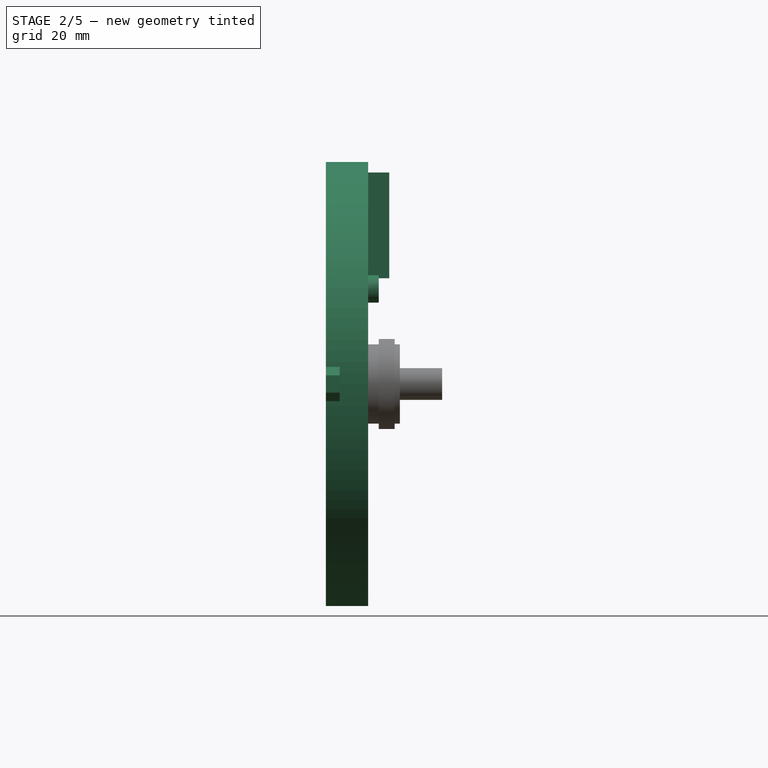
[diagram: stage 2 of 5 — front view after this stage's code; geometry added in this stage tinted green]
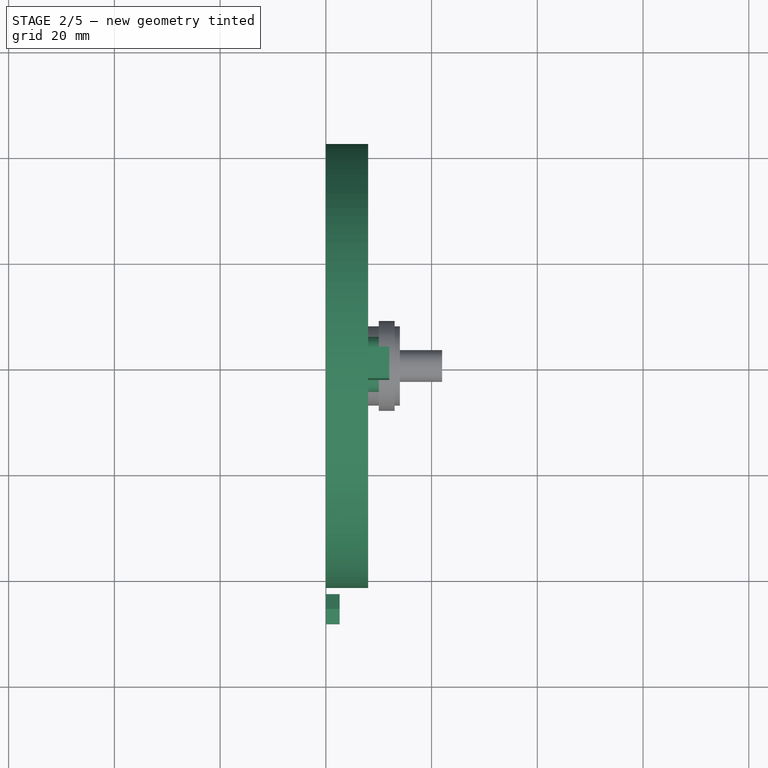
[diagram: stage 2 of 5 — top view after this stage's code; geometry added in this stage tinted green]
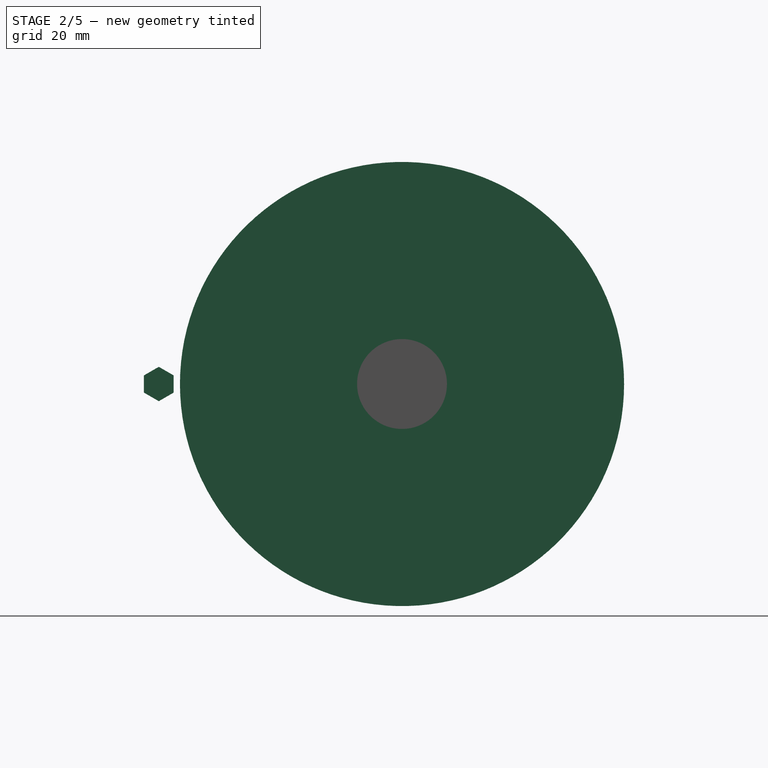
[diagram: stage 2 of 5 — right view after this stage's code; geometry added in this stage tinted green]
FEATURE [PartDesign::Body] Body015
  AllowCompound = false
  Group = -> [Sketch018,Pad015]
  Origin = -> Origin018
  Tip = -> Pad015
FEATURE [App::Part] Part002  label="encoder-magnet"
  Group = -> [Body015]
  Origin = -> Origin017
  Placement = pos=(-22,0,0) rot=(0,0,1;0rad)
FEATURE [Sketcher::SketchObject] Sketch019
  ArcFitTolerance = 1e-06
  AttachmentSupport = -> [YZ_Plane020]
  FullyConstrained = true
  MakeInternals = false
  MapMode = 5
  Placement = pos=(0,0,0) rot=(0.57735,0.57735,0.57735;2.0944rad)
  sketch-geometry (7):
    g0: Circle CenterX=0 CenterY=4e-16 CenterZ=0 NormalX=0 NormalY=0 NormalZ=1 AngleXU=0 Radius=42
    g1: Circle [constr] CenterX=0 CenterY=4e-16 CenterZ=0 NormalX=0 NormalY=0 NormalZ=1 AngleXU=0 Radius=5
    g2: Circle CenterX=0 CenterY=5 CenterZ=0 NormalX=0 NormalY=0 NormalZ=1 AngleXU=0 Radius=1.5
    g3: Circle CenterX=4.33013 CenterY=-2.5 CenterZ=0 NormalX=0 NormalY=0 NormalZ=1 AngleXU=0 Radius=1.5
    g4: Circle CenterX=-4.33013 CenterY=-2.5 CenterZ=0 NormalX=0 NormalY=0 NormalZ=1 AngleXU=0 Radius=1.5
    g5: LineSegment [constr] StartX=-4.33013 StartY=-2.5 StartZ=0 EndX=0 EndY=4e-16 EndZ=0
    g6: LineSegment [constr] StartX=4.33013 StartY=-2.5 StartZ=0 EndX=0 EndY=4e-16 EndZ=0
  constraints (17):
    c: Diameter(g0) = 84
    c: Coincident(g0,g-1)
    c: Diameter(g1) = 10
    c: Coincident(g1,g0)
    c: Diameter(g2) = 3
    c: PointOnObject(g2,g1)
    c: PointOnObject(g2,g-2)
    c: Diameter(g3) = 3
    c: PointOnObject(g3,g1)
    c: Diameter(g4) = 3
    c: PointOnObject(g4,g1)
    c: Coincident(g5,g4)
    c: Coincident(g5,g0)
    c: Coincident(g6,g3)
    c: Coincident(g6,g0)
    c: Angle(g-1,g5) = 0.523599
    c: Angle(g6,g-1) = 0.523599
FEATURE [PartDesign::Pad] Pad016
  Direction = (1,0,0)
  Length = 8
  Length2 = 10
  Placement = pos=(0,0,0) rot=(1,1,1;2.0944rad)
  Profile = -> Sketch019
  ReferenceAxis = -> Sketch019 [N_Axis]
  Refine = true
  Suppressed = false
  Type = 0
FEATURE [Sketcher::SketchObject] Sketch071
  ArcFitTolerance = 1e-06
  AttachmentSupport = -> [YZ_Plane058]
  FullyConstrained = true
  MakeInternals = false
  MapMode = 5
  Placement = pos=(0,0,0) rot=(0.57735,0.57735,0.57735;2.0944rad)
  sketch-geometry (4):
    g0: LineSegment StartX=-3 StartY=40 StartZ=0 EndX=-3 EndY=20 EndZ=0
    g1: LineSegment StartX=-3 StartY=20 StartZ=0 EndX=3 EndY=20 EndZ=0
    g2: LineSegment StartX=3 StartY=20 StartZ=0 EndX=3 EndY=40 EndZ=0
    g3: LineSegment StartX=3 StartY=40 StartZ=0 EndX=-3 EndY=40 EndZ=0
  constraints (11):
    c: Coincident(g0,g1)
    c: Coincident(g1,g2)
    c: Coincident(g2,g3)
    c: Coincident(g3,g0)
    c: Vertical(g0)
    c: Vertical(g2)
    c: Horizontal(g1)
    c: Symmetric(g2,g0,g-2)
    c: DistanceX(g3,g3) = 6
    c: DistanceY(g0,g0) = 20
    c: DistanceY(g-1,g0) = 20
FEATURE [PartDesign::Pad] Pad052
  Direction = (1,0,0)
  Length = 12
  Length2 = 10
  Placement = pos=(0,0,0) rot=(1,1,1;2.0944rad)
  Profile = -> Sketch071
  ReferenceAxis = -> Sketch071 [N_Axis]
  Refine = true
  Suppressed = false
  Type = 0
FEATURE [PartDesign::Body] Body052
  AllowCompound = false
  Group = -> [Sketch071,Pad052]
  Origin = -> Origin058
  Tip = -> Pad052
FEATURE [Sketcher::SketchObject] Sketch072
  ArcFitTolerance = 1e-06
  AttachmentSupport = -> [YZ_Plane059]
  FullyConstrained = true
  MakeInternals = false
  MapMode = 5
  Placement = pos=(0,0,0) rot=(0.57735,0.57735,0.57735;2.0944rad)
  sketch-geometry (4):
    g0: LineSegment StartX=-3 StartY=40 StartZ=0 EndX=-3 EndY=20 EndZ=0
    g1: LineSegment StartX=-3 StartY=20 StartZ=0 EndX=3 EndY=20 EndZ=0
    g2: LineSegment StartX=3 StartY=20 StartZ=0 EndX=3 EndY=40 EndZ=0
    g3: LineSegment StartX=3 StartY=40 StartZ=0 EndX=-3 EndY=40 EndZ=0
  constraints (11):
    c: Coincident(g0,g1)
    c: Coincident(g1,g2)
    c: Coincident(g2,g3)
    c: Coincident(g3,g0)
    c: Vertical(g0)
    c: Vertical(g2)
    c: Horizontal(g1)
    c: Symmetric(g2,g0,g-2)
    c: DistanceX(g3,g3) = 6
    c: DistanceY(g0,g0) = 20
    c: DistanceY(g-1,g0) = 20
FEATURE [PartDesign::Pad] Pad053
  Direction = (1,0,0)
  Length = 12
  Length2 = 10
  Placement = pos=(0,0,0) rot=(1,1,1;2.0944rad)
  Profile = -> Sketch072
  ReferenceAxis = -> Sketch072 [N_Axis]
  Refine = true
  Suppressed = false
  Type = 0
FEATURE [Sketcher::SketchObject] Sketch073
  ArcFitTolerance = 1e-06
  AttachmentSupport = -> [YZ_Plane060]
  FullyConstrained = true
  MakeInternals = false
  MapMode = 5
  Placement = pos=(0,0,0) rot=(0.57735,0.57735,0.57735;2.0944rad)
  sketch-geometry (7):
    g0: LineSegment StartX=-46 StartY=3.25 StartZ=0 EndX=-48.8146 EndY=1.625 EndZ=0
    g1: LineSegment StartX=-48.8146 StartY=1.625 StartZ=0 EndX=-48.8146 EndY=-1.625 EndZ=0
    g2: LineSegment StartX=-48.8146 StartY=-1.625 StartZ=0 EndX=-46 EndY=-3.25 EndZ=0
    g3: LineSegment StartX=-46 StartY=-3.25 StartZ=0 EndX=-43.1854 EndY=-1.625 EndZ=0
    g4: LineSegment StartX=-43.1854 StartY=-1.625 StartZ=0 EndX=-43.1854 EndY=1.625 EndZ=0
    g5: LineSegment StartX=-43.1854 StartY=1.625 StartZ=0 EndX=-46 EndY=3.25 EndZ=0
    g6: Circle [constr] CenterX=-46 CenterY=0 CenterZ=0 NormalX=0 NormalY=0 NormalZ=1 AngleXU=0 Radius=3.25
  constraints (17):
    c: Coincident(g0,g1)
    c: Coincident(g1,g2)
    c: Coincident(g2,g3)
    c: Coincident(g3,g4)
    c: Coincident(g4,g5)
    c: Coincident(g5,g0)
    c: Equal(g0, g1-g5) x5
    c: PointOnObject(g0,g6)
    c: PointOnObject(g1,g6)
    c: PointOnObject(g2,g6)
    c: PointOnObject(g3,g6)
    c: PointOnObject(g4,g6)
    c: PointOnObject(g5,g6)
    c: Diameter(g6) = 6.5
    c: Vertical(g4)
    c: PointOnObject(g6,g-1)
    c: DistanceX(g6,g-1) = 46
FEATURE [PartDesign::Pad] Pad054
  Direction = (1,0,0)
  Length = 2.6
  Length2 = 10
  Placement = pos=(0,0,0) rot=(1,1,1;2.0944rad)
  Profile = -> Sketch073
  ReferenceAxis = -> Sketch073 [N_Axis]
  Refine = true
  Suppressed = false
  Type = 0
FEATURE [PartDesign::Body] Body054
  AllowCompound = false
  Group = -> [Sketch073,Pad054]
  Origin = -> Origin060
  Tip = -> Pad054
FEATURE [Sketcher::SketchObject] Sketch074
  ArcFitTolerance = 1e-06
  AttachmentSupport = -> [YZ_Plane061]
  FullyConstrained = true
  MakeInternals = false
  MapMode = 5
  Placement = pos=(0,0,0) rot=(0.57735,0.57735,0.57735;2.0944rad)
  sketch-geometry (7):
    g0: LineSegment StartX=-46 StartY=3.25 StartZ=0 EndX=-48.8146 EndY=1.625 EndZ=0
    g1: LineSegment StartX=-48.8146 StartY=1.625 StartZ=0 EndX=-48.8146 EndY=-1.625 EndZ=0
    g2: LineSegment StartX=-48.8146 StartY=-1.625 StartZ=0 EndX=-46 EndY=-3.25 EndZ=0
    g3: LineSegment StartX=-46 StartY=-3.25 StartZ=0 EndX=-43.1854 EndY=-1.625 EndZ=0
    g4: LineSegment StartX=-43.1854 StartY=-1.625 StartZ=0 EndX=-43.1854 EndY=1.625 EndZ=0
    g5: LineSegment StartX=-43.1854 StartY=1.625 StartZ=0 EndX=-46 EndY=3.25 EndZ=0
    g6: Circle [constr] CenterX=-46 CenterY=0 CenterZ=0 NormalX=0 NormalY=0 NormalZ=1 AngleXU=0 Radius=3.25
  constraints (17):
    c: Coincident(g0,g1)
    c: Coincident(g1,g2)
    c: Coincident(g2,g3)
    c: Coincident(g3,g4)
    c: Coincident(g4,g5)
    c: Coincident(g5,g0)
    c: Equal(g0, g1-g5) x5
    c: PointOnObject(g0,g6)
    c: PointOnObject(g1,g6)
    c: PointOnObject(g2,g6)
    c: PointOnObject(g3,g6)
    c: PointOnObject(g4,g6)
    c: PointOnObject(g5,g6)
    c: Diameter(g6) = 6.5
    c: Vertical(g4)
    c: PointOnObject(g6,g-1)
    c: DistanceX(g6,g-1) = 46
FEATURE [PartDesign::Pad] Pad055
  Direction = (1,0,0)
  Length = 2.6
  Length2 = 10
  Placement = pos=(0,0,0) rot=(1,1,1;2.0944rad)
  Profile = -> Sketch074
  ReferenceAxis = -> Sketch074 [N_Axis]
  Refine = true
  Suppressed = false
  Type = 0
FEATURE [PartDesign::Body] Body055
  AllowCompound = false
  Group = -> [Sketch074,Pad055]
  Origin = -> Origin061
  Placement = pos=(0,0,0) rot=(1,0,0;5.75959rad)
  Tip = -> Pad055
FEATURE [Sketcher::SketchObject] Sketch075
  ArcFitTolerance = 1e-06
  AttachmentSupport = -> [YZ_Plane062]
  FullyConstrained = true
  MakeInternals = false
  MapMode = 5
  Placement = pos=(0,0,0) rot=(0.57735,0.57735,0.57735;2.0944rad)
  sketch-geometry (7):
    g0: LineSegment StartX=-46 StartY=3.25 StartZ=0 EndX=-48.8146 EndY=1.625 EndZ=0
    g1: LineSegment StartX=-48.8146 StartY=1.625 StartZ=0 EndX=-48.8146 EndY=-1.625 EndZ=0
    g2: LineSegment StartX=-48.8146 StartY=-1.625 StartZ=0 EndX=-46 EndY=-3.25 EndZ=0
    g3: LineSegment StartX=-46 StartY=-3.25 StartZ=0 EndX=-43.1854 EndY=-1.625 EndZ=0
    g4: LineSegment StartX=-43.1854 StartY=-1.625 StartZ=0 EndX=-43.1854 EndY=1.625 EndZ=0
    g5: LineSegment StartX=-43.1854 StartY=1.625 StartZ=0 EndX=-46 EndY=3.25 EndZ=0
    g6: Circle [constr] CenterX=-46 CenterY=0 CenterZ=0 NormalX=0 NormalY=0 NormalZ=1 AngleXU=0 Radius=3.25
  constraints (17):
    c: Coincident(g0,g1)
    c: Coincident(g1,g2)
    c: Coincident(g2,g3)
    c: Coincident(g3,g4)
    c: Coincident(g4,g5)
    c: Coincident(g5,g0)
    c: Equal(g0, g1-g5) x5
    c: PointOnObject(g0,g6)
    c: PointOnObject(g1,g6)
    c: PointOnObject(g2,g6)
    c: PointOnObject(g3,g6)
    c: PointOnObject(g4,g6)
    c: PointOnObject(g5,g6)
    c: Diameter(g6) = 6.5
    c: Vertical(g4)
    c: PointOnObject(g6,g-1)
    c: DistanceX(g6,g-1) = 46
FEATURE [PartDesign::Pad] Pad056
  Direction = (1,0,0)
  Length = 2.6
  Length2 = 10
  Placement = pos=(0,0,0) rot=(1,1,1;2.0944rad)
  Profile = -> Sketch075
  ReferenceAxis = -> Sketch075 [N_Axis]
  Refine = true
  Suppressed = false
  Type = 0
FEATURE [PartDesign::Body] Body056
  AllowCompound = false
  Group = -> [Sketch075,Pad056]
  Origin = -> Origin062
  Placement = pos=(0,0,0) rot=(1,0,0;5.23599rad)
  Tip = -> Pad056
FEATURE [Sketcher::SketchObject] Sketch076
  ArcFitTolerance = 1e-06
  AttachmentSupport = -> [YZ_Plane063]
  FullyConstrained = true
  MakeInternals = false
  MapMode = 5
  Placement = pos=(0,0,0) rot=(0.57735,0.57735,0.57735;2.0944rad)
  sketch-geometry (7):
    g0: LineSegment StartX=-46 StartY=3.25 StartZ=0 EndX=-48.8146 EndY=1.625 EndZ=0
    g1: LineSegment StartX=-48.8146 StartY=1.625 StartZ=0 EndX=-48.8146 EndY=-1.625 EndZ=0
    g2: LineSegment StartX=-48.8146 StartY=-1.625 StartZ=0 EndX=-46 EndY=-3.25 EndZ=0
    g3: LineSegment StartX=-46 StartY=-3.25 StartZ=0 EndX=-43.1854 EndY=-1.625 EndZ=0
    g4: LineSegment StartX=-43.1854 StartY=-1.625 StartZ=0 EndX=-43.1854 EndY=1.625 EndZ=0
    g5: LineSegment StartX=-43.1854 StartY=1.625 StartZ=0 EndX=-46 EndY=3.25 EndZ=0
    g6: Circle [constr] CenterX=-46 CenterY=0 CenterZ=0 NormalX=0 NormalY=0 NormalZ=1 AngleXU=0 Radius=3.25
  constraints (17):
    c: Coincident(g0,g1)
    c: Coincident(g1,g2)
    c: Coincident(g2,g3)
    c: Coincident(g3,g4)
    c: Coincident(g4,g5)
    c: Coincident(g5,g0)
    c: Equal(g0, g1-g5) x5
    c: PointOnObject(g0,g6)
    c: PointOnObject(g1,g6)
    c: PointOnObject(g2,g6)
    c: PointOnObject(g3,g6)
    c: PointOnObject(g4,g6)
    c: PointOnObject(g5,g6)
    c: Diameter(g6) = 6.5
    c: Vertical(g4)
    c: PointOnObject(g6,g-1)
    c: DistanceX(g6,g-1) = 46
FEATURE [PartDesign::Pad] Pad057
  Direction = (1,0,0)
  Length = 2.6
  Length2 = 10
  Placement = pos=(0,0,0) rot=(1,1,1;2.0944rad)
  Profile = -> Sketch076
  ReferenceAxis = -> Sketch076 [N_Axis]
  Refine = true
  Suppressed = false
  Type = 0
FEATURE [PartDesign::Body] Body057
  AllowCompound = false
  Group = -> [Sketch076,Pad057]
  Origin = -> Origin063
  Placement = pos=(0,0,0) rot=(1,0,0;4.71239rad)
  Tip = -> Pad057
FEATURE [Sketcher::SketchObject] Sketch077
  ArcFitTolerance = 1e-06
  AttachmentSupport = -> [YZ_Plane064]
  FullyConstrained = true
  MakeInternals = false
  MapMode = 5
  Placement = pos=(0,0,0) rot=(0.57735,0.57735,0.57735;2.0944rad)
  sketch-geometry (7):
    g0: LineSegment StartX=-46 StartY=3.25 StartZ=0 EndX=-48.8146 EndY=1.625 EndZ=0
    g1: LineSegment StartX=-48.8146 StartY=1.625 StartZ=0 EndX=-48.8146 EndY=-1.625 EndZ=0
    g2: LineSegment StartX=-48.8146 StartY=-1.625 StartZ=0 EndX=-46 EndY=-3.25 EndZ=0
    g3: LineSegment StartX=-46 StartY=-3.25 StartZ=0 EndX=-43.1854 EndY=-1.625 EndZ=0
    g4: LineSegment StartX=-43.1854 StartY=-1.625 StartZ=0 EndX=-43.1854 EndY=1.625 EndZ=0
    g5: LineSegment StartX=-43.1854 StartY=1.625 StartZ=0 EndX=-46 EndY=3.25 EndZ=0
    g6: Circle [constr] CenterX=-46 CenterY=0 CenterZ=0 NormalX=0 NormalY=0 NormalZ=1 AngleXU=0 Radius=3.25
  constraints (17):
    c: Coincident(g0,g1)
    c: Coincident(g1,g2)
    c: Coincident(g2,g3)
    c: Coincident(g3,g4)
    c: Coincident(g4,g5)
    c: Coincident(g5,g0)
    c: Equal(g0, g1-g5) x5
    c: PointOnObject(g0,g6)
    c: PointOnObject(g1,g6)
    c: PointOnObject(g2,g6)
    c: PointOnObject(g3,g6)
    c: PointOnObject(g4,g6)
    c: PointOnObject(g5,g6)
    c: Diameter(g6) = 6.5
    c: Vertical(g4)
    c: PointOnObject(g6,g-1)
    c: DistanceX(g6,g-1) = 46
FEATURE [PartDesign::Pad] Pad058
  Direction = (1,0,0)
  Length = 2.6
  Length2 = 10
  Placement = pos=(0,0,0) rot=(1,1,1;2.0944rad)
  Profile = -> Sketch077
  ReferenceAxis = -> Sketch077 [N_Axis]
  Refine = true
  Suppressed = false
  Type = 0
FEATURE [PartDesign::Body] Body058
  AllowCompound = false
  Group = -> [Sketch077,Pad058]
  Origin = -> Origin064
  Placement = pos=(0,0,0) rot=(1,0,0;4.18879rad)
  Tip = -> Pad058
FEATURE [Sketcher::SketchObject] Sketch078
  ArcFitTolerance = 1e-06
  AttachmentSupport = -> [YZ_Plane065]
  FullyConstrained = true
  MakeInternals = false
  MapMode = 5
  Placement = pos=(0,0,0) rot=(0.57735,0.57735,0.57735;2.0944rad)
  sketch-geometry (7):
    g0: LineSegment StartX=-46 StartY=3.25 StartZ=0 EndX=-48.8146 EndY=1.625 EndZ=0
    g1: LineSegment StartX=-48.8146 StartY=1.625 StartZ=0 EndX=-48.8146 EndY=-1.625 EndZ=0
    g2: LineSegment StartX=-48.8146 StartY=-1.625 StartZ=0 EndX=-46 EndY=-3.25 EndZ=0
    g3: LineSegment StartX=-46 StartY=-3.25 StartZ=0 EndX=-43.1854 EndY=-1.625 EndZ=0
    g4: LineSegment StartX=-43.1854 StartY=-1.625 StartZ=0 EndX=-43.1854 EndY=1.625 EndZ=0
    g5: LineSegment StartX=-43.1854 StartY=1.625 StartZ=0 EndX=-46 EndY=3.25 EndZ=0
    g6: Circle [constr] CenterX=-46 CenterY=0 CenterZ=0 NormalX=0 NormalY=0 NormalZ=1 AngleXU=0 Radius=3.25
  constraints (17):
    c: Coincident(g0,g1)
    c: Coincident(g1,g2)
    c: Coincident(g2,g3)
    c: Coincident(g3,g4)
    c: Coincident(g4,g5)
    c: Coincident(g5,g0)
    c: Equal(g0, g1-g5) x5
    c: PointOnObject(g0,g6)
    c: PointOnObject(g1,g6)
    c: PointOnObject(g2,g6)
    c: PointOnObject(g3,g6)
    c: PointOnObject(g4,g6)
    c: PointOnObject(g5,g6)
    c: Diameter(g6) = 6.5
    c: Vertical(g4)
    c: PointOnObject(g6,g-1)
    c: DistanceX(g6,g-1) = 46
FEATURE [PartDesign::Pad] Pad059
  Direction = (1,0,0)
  Length = 2.6
  Length2 = 10
  Placement = pos=(0,0,0) rot=(1,1,1;2.0944rad)
  Profile = -> Sketch078
  ReferenceAxis = -> Sketch078 [N_Axis]
  Refine = true
  Suppressed = false
  Type = 0
FEATURE [PartDesign::Body] Body059
  AllowCompound = false
  Group = -> [Sketch078,Pad059]
  Origin = -> Origin065
  Placement = pos=(0,0,0) rot=(1,0,0;3.66519rad)
  Tip = -> Pad059
FEATURE [Sketcher::SketchObject] Sketch079
  ArcFitTolerance = 1e-06
  AttachmentSupport = -> [YZ_Plane066]
  FullyConstrained = true
  MakeInternals = false
  MapMode = 5
  Placement = pos=(0,0,0) rot=(0.57735,0.57735,0.57735;2.0944rad)
  sketch-geometry (7):
    g0: LineSegment StartX=-46 StartY=3.25 StartZ=0 EndX=-48.8146 EndY=1.625 EndZ=0
    g1: LineSegment StartX=-48.8146 StartY=1.625 StartZ=0 EndX=-48.8146 EndY=-1.625 EndZ=0
    g2: LineSegment StartX=-48.8146 StartY=-1.625 StartZ=0 EndX=-46 EndY=-3.25 EndZ=0
    g3: LineSegment StartX=-46 StartY=-3.25 StartZ=0 EndX=-43.1854 EndY=-1.625 EndZ=0
    g4: LineSegment StartX=-43.1854 StartY=-1.625 StartZ=0 EndX=-43.1854 EndY=1.625 EndZ=0
    g5: LineSegment StartX=-43.1854 StartY=1.625 StartZ=0 EndX=-46 EndY=3.25 EndZ=0
    g6: Circle [constr] CenterX=-46 CenterY=0 CenterZ=0 NormalX=0 NormalY=0 NormalZ=1 AngleXU=0 Radius=3.25
  constraints (17):
    c: Coincident(g0,g1)
    c: Coincident(g1,g2)
    c: Coincident(g2,g3)
    c: Coincident(g3,g4)
    c: Coincident(g4,g5)
    c: Coincident(g5,g0)
    c: Equal(g0, g1-g5) x5
    c: PointOnObject(g0,g6)
    c: PointOnObject(g1,g6)
    c: PointOnObject(g2,g6)
    c: PointOnObject(g3,g6)
    c: PointOnObject(g4,g6)
    c: PointOnObject(g5,g6)
    c: Diameter(g6) = 6.5
    c: Vertical(g4)
    c: PointOnObject(g6,g-1)
    c: DistanceX(g6,g-1) = 46
FEATURE [PartDesign::Pad] Pad060
  Direction = (1,0,0)
  Length = 2.6
  Length2 = 10
  Placement = pos=(0,0,0) rot=(1,1,1;2.0944rad)
  Profile = -> Sketch079
  ReferenceAxis = -> Sketch079 [N_Axis]
  Refine = true
  Suppressed = false
  Type = 0
FEATURE [PartDesign::Body] Body060
  AllowCompound = false
  Group = -> [Sketch079,Pad060]
  Origin = -> Origin066
  Placement = pos=(0,0,0) rot=(1,0,0;3.14159rad)
  Tip = -> Pad060
FEATURE [Sketcher::SketchObject] Sketch080
  ArcFitTolerance = 1e-06
  AttachmentSupport = -> [YZ_Plane067]
  FullyConstrained = true
  MakeInternals = false
  MapMode = 5
  Placement = pos=(0,0,0) rot=(0.57735,0.57735,0.57735;2.0944rad)
  sketch-geometry (7):
    g0: LineSegment StartX=-46 StartY=3.25 StartZ=0 EndX=-48.8146 EndY=1.625 EndZ=0
    g1: LineSegment StartX=-48.8146 StartY=1.625 StartZ=0 EndX=-48.8146 EndY=-1.625 EndZ=0
    g2: LineSegment StartX=-48.8146 StartY=-1.625 StartZ=0 EndX=-46 EndY=-3.25 EndZ=0
    g3: LineSegment StartX=-46 StartY=-3.25 StartZ=0 EndX=-43.1854 EndY=-1.625 EndZ=0
    g4: LineSegment StartX=-43.1854 StartY=-1.625 StartZ=0 EndX=-43.1854 EndY=1.625 EndZ=0
    g5: LineSegment StartX=-43.1854 StartY=1.625 StartZ=0 EndX=-46 EndY=3.25 EndZ=0
    g6: Circle [constr] CenterX=-46 CenterY=0 CenterZ=0 NormalX=0 NormalY=0 NormalZ=1 AngleXU=0 Radius=3.25
  constraints (17):
    c: Coincident(g0,g1)
    c: Coincident(g1,g2)
    c: Coincident(g2,g3)
    c: Coincident(g3,g4)
    c: Coincident(g4,g5)
    c: Coincident(g5,g0)
    c: Equal(g0, g1-g5) x5
    c: PointOnObject(g0,g6)
    c: PointOnObject(g1,g6)
    c: PointOnObject(g2,g6)
    c: PointOnObject(g3,g6)
    c: PointOnObject(g4,g6)
    c: PointOnObject(g5,g6)
    c: Diameter(g6) = 6.5
    c: Vertical(g4)
    c: PointOnObject(g6,g-1)
    c: DistanceX(g6,g-1) = 46
FEATURE [PartDesign::Pad] Pad061
  Direction = (1,0,0)
  Length = 2.6
  Length2 = 10
  Placement = pos=(0,0,0) rot=(1,1,1;2.0944rad)
  Profile = -> Sketch080
  ReferenceAxis = -> Sketch080 [N_Axis]
  Refine = true
  Suppressed = false
  Type = 0
FEATURE [PartDesign::Body] Body061
  AllowCompound = false
  Group = -> [Sketch080,Pad061]
  Origin = -> Origin067
  Placement = pos=(0,0,0) rot=(1,0,0;2.61799rad)
  Tip = -> Pad061
FEATURE [Sketcher::SketchObject] Sketch081
  ArcFitTolerance = 1e-06
  AttachmentSupport = -> [YZ_Plane068]
  FullyConstrained = true
  MakeInternals = false
  MapMode = 5
  Placement = pos=(0,0,0) rot=(0.57735,0.57735,0.57735;2.0944rad)
  sketch-geometry (7):
    g0: LineSegment StartX=-46 StartY=3.25 StartZ=0 EndX=-48.8146 EndY=1.625 EndZ=0
    g1: LineSegment StartX=-48.8146 StartY=1.625 StartZ=0 EndX=-48.8146 EndY=-1.625 EndZ=0
    g2: LineSegment StartX=-48.8146 StartY=-1.625 StartZ=0 EndX=-46 EndY=-3.25 EndZ=0
    g3: LineSegment StartX=-46 StartY=-3.25 StartZ=0 EndX=-43.1854 EndY=-1.625 EndZ=0
    g4: LineSegment StartX=-43.1854 StartY=-1.625 StartZ=0 EndX=-43.1854 EndY=1.625 EndZ=0
    g5: LineSegment StartX=-43.1854 StartY=1.625 StartZ=0 EndX=-46 EndY=3.25 EndZ=0
    g6: Circle [constr] CenterX=-46 CenterY=0 CenterZ=0 NormalX=0 NormalY=0 NormalZ=1 AngleXU=0 Radius=3.25
  constraints (17):
    c: Coincident(g0,g1)
    c: Coincident(g1,g2)
    c: Coincident(g2,g3)
    c: Coincident(g3,g4)
    c: Coincident(g4,g5)
    c: Coincident(g5,g0)
    c: Equal(g0, g1-g5) x5
    c: PointOnObject(g0,g6)
    c: PointOnObject(g1,g6)
    c: PointOnObject(g2,g6)
    c: PointOnObject(g3,g6)
    c: PointOnObject(g4,g6)
    c: PointOnObject(g5,g6)
    c: Diameter(g6) = 6.5
    c: Vertical(g4)
    c: PointOnObject(g6,g-1)
    c: DistanceX(g6,g-1) = 46
FEATURE [PartDesign::Pad] Pad062
  Direction = (1,0,0)
  Length = 2.6
  Length2 = 10
  Placement = pos=(0,0,0) rot=(1,1,1;2.0944rad)
  Profile = -> Sketch081
  ReferenceAxis = -> Sketch081 [N_Axis]
  Refine = true
  Suppressed = false
  Type = 0
FEATURE [PartDesign::Body] Body062
  AllowCompound = false
  Group = -> [Sketch081,Pad062]
  Origin = -> Origin068
  Placement = pos=(0,0,0) rot=(1,0,0;2.0944rad)
  Tip = -> Pad062
FEATURE [Sketcher::SketchObject] Sketch082
  ArcFitTolerance = 1e-06
  AttachmentSupport = -> [YZ_Plane069]
  FullyConstrained = true
  MakeInternals = false
  MapMode = 5
  Placement = pos=(0,0,0) rot=(0.57735,0.57735,0.57735;2.0944rad)
  sketch-geometry (7):
    g0: LineSegment StartX=-46 StartY=3.25 StartZ=0 EndX=-48.8146 EndY=1.625 EndZ=0
    g1: LineSegment StartX=-48.8146 StartY=1.625 StartZ=0 EndX=-48.8146 EndY=-1.625 EndZ=0
    g2: LineSegment StartX=-48.8146 StartY=-1.625 StartZ=0 EndX=-46 EndY=-3.25 EndZ=0
    g3: LineSegment StartX=-46 StartY=-3.25 StartZ=0 EndX=-43.1854 EndY=-1.625 EndZ=0
    g4: LineSegment StartX=-43.1854 StartY=-1.625 StartZ=0 EndX=-43.1854 EndY=1.625 EndZ=0
    g5: LineSegment StartX=-43.1854 StartY=1.625 StartZ=0 EndX=-46 EndY=3.25 EndZ=0
    g6: Circle [constr] CenterX=-46 CenterY=0 CenterZ=0 NormalX=0 NormalY=0 NormalZ=1 AngleXU=0 Radius=3.25
  constraints (17):
    c: Coincident(g0,g1)
    c: Coincident(g1,g2)
    c: Coincident(g2,g3)
    c: Coincident(g3,g4)
    c: Coincident(g4,g5)
    c: Coincident(g5,g0)
    c: Equal(g0, g1-g5) x5
    c: PointOnObject(g0,g6)
    c: PointOnObject(g1,g6)
    c: PointOnObject(g2,g6)
    c: PointOnObject(g3,g6)
    c: PointOnObject(g4,g6)
    c: PointOnObject(g5,g6)
    c: Diameter(g6) = 6.5
    c: Vertical(g4)
    c: PointOnObject(g6,g-1)
    c: DistanceX(g6,g-1) = 46
FEATURE [PartDesign::Pad] Pad063
  Direction = (1,0,0)
  Length = 2.6
  Length2 = 10
  Placement = pos=(0,0,0) rot=(1,1,1;2.0944rad)
  Profile = -> Sketch082
  ReferenceAxis = -> Sketch082 [N_Axis]
  Refine = true
  Suppressed = false
  Type = 0
FEATURE [PartDesign::Body] Body063
  AllowCompound = false
  Group = -> [Sketch082,Pad063]
  Origin = -> Origin069
  Placement = pos=(0,0,0) rot=(1,0,0;1.5708rad)
  Tip = -> Pad063
FEATURE [Sketcher::SketchObject] Sketch083
  ArcFitTolerance = 1e-06
  AttachmentSupport = -> [YZ_Plane070]
  FullyConstrained = true
  MakeInternals = false
  MapMode = 5
  Placement = pos=(0,0,0) rot=(0.57735,0.57735,0.57735;2.0944rad)
  sketch-geometry (7):
    g0: LineSegment StartX=-46 StartY=3.25 StartZ=0 EndX=-48.8146 EndY=1.625 EndZ=0
    g1: LineSegment StartX=-48.8146 StartY=1.625 StartZ=0 EndX=-48.8146 EndY=-1.625 EndZ=0
    g2: LineSegment StartX=-48.8146 StartY=-1.625 StartZ=0 EndX=-46 EndY=-3.25 EndZ=0
    g3: LineSegment StartX=-46 StartY=-3.25 StartZ=0 EndX=-43.1854 EndY=-1.625 EndZ=0
    g4: LineSegment StartX=-43.1854 StartY=-1.625 StartZ=0 EndX=-43.1854 EndY=1.625 EndZ=0
    g5: LineSegment StartX=-43.1854 StartY=1.625 StartZ=0 EndX=-46 EndY=3.25 EndZ=0
    g6: Circle [constr] CenterX=-46 CenterY=0 CenterZ=0 NormalX=0 NormalY=0 NormalZ=1 AngleXU=0 Radius=3.25
  constraints (17):
    c: Coincident(g0,g1)
    c: Coincident(g1,g2)
    c: Coincident(g2,g3)
    c: Coincident(g3,g4)
    c: Coincident(g4,g5)
    c: Coincident(g5,g0)
    c: Equal(g0, g1-g5) x5
    c: PointOnObject(g0,g6)
    c: PointOnObject(g1,g6)
    c: PointOnObject(g2,g6)
    c: PointOnObject(g3,g6)
    c: PointOnObject(g4,g6)
    c: PointOnObject(g5,g6)
    c: Diameter(g6) = 6.5
    c: Vertical(g4)
    c: PointOnObject(g6,g-1)
    c: DistanceX(g6,g-1) = 46
FEATURE [PartDesign::Pad] Pad064
  Direction = (1,0,0)
  Length = 2.6
  Length2 = 10
  Placement = pos=(0,0,0) rot=(1,1,1;2.0944rad)
  Profile = -> Sketch083
  ReferenceAxis = -> Sketch083 [N_Axis]
  Refine = true
  Suppressed = false
  Type = 0
FEATURE [PartDesign::Body] Body064
  AllowCompound = false
  Group = -> [Sketch083,Pad064]
  Origin = -> Origin070
  Placement = pos=(0,0,0) rot=(-1,0,0;5.23599rad)
  Tip = -> Pad064
FEATURE [Sketcher::SketchObject] Sketch084
  ArcFitTolerance = 1e-06
  AttachmentSupport = -> [YZ_Plane071]
  FullyConstrained = true
  MakeInternals = false
  MapMode = 5
  Placement = pos=(0,0,0) rot=(0.57735,0.57735,0.57735;2.0944rad)
  sketch-geometry (7):
    g0: LineSegment StartX=-46 StartY=3.25 StartZ=0 EndX=-48.8146 EndY=1.625 EndZ=0
    g1: LineSegment StartX=-48.8146 StartY=1.625 StartZ=0 EndX=-48.8146 EndY=-1.625 EndZ=0
    g2: LineSegment StartX=-48.8146 StartY=-1.625 StartZ=0 EndX=-46 EndY=-3.25 EndZ=0
    g3: LineSegment StartX=-46 StartY=-3.25 StartZ=0 EndX=-43.1854 EndY=-1.625 EndZ=0
    g4: LineSegment StartX=-43.1854 StartY=-1.625 StartZ=0 EndX=-43.1854 EndY=1.625 EndZ=0
    g5: LineSegment StartX=-43.1854 StartY=1.625 StartZ=0 EndX=-46 EndY=3.25 EndZ=0
    g6: Circle [constr] CenterX=-46 CenterY=0 CenterZ=0 NormalX=0 NormalY=0 NormalZ=1 AngleXU=0 Radius=3.25
  constraints (17):
    c: Coincident(g0,g1)
    c: Coincident(g1,g2)
    c: Coincident(g2,g3)
    c: Coincident(g3,g4)
    c: Coincident(g4,g5)
    c: Coincident(g5,g0)
    c: Equal(g0, g1-g5) x5
    c: PointOnObject(g0,g6)
    c: PointOnObject(g1,g6)
    c: PointOnObject(g2,g6)
    c: PointOnObject(g3,g6)
    c: PointOnObject(g4,g6)
    c: PointOnObject(g5,g6)
    c: Diameter(g6) = 6.5
    c: Vertical(g4)
    c: PointOnObject(g6,g-1)
    c: DistanceX(g6,g-1) = 46
FEATURE [PartDesign::Pad] Pad065
  Direction = (1,0,0)
  Length = 2.6
  Length2 = 10
  Placement = pos=(0,0,0) rot=(1,1,1;2.0944rad)
  Profile = -> Sketch084
  ReferenceAxis = -> Sketch084 [N_Axis]
  Refine = true
  Suppressed = false
  Type = 0
FEATURE [PartDesign::Body] Body065
  AllowCompound = false
  Group = -> [Sketch084,Pad065]
  Origin = -> Origin071
  Placement = pos=(0,0,0) rot=(-1,0,0;5.75959rad)
  Tip = -> Pad065
FEATURE [Sketcher::SketchObject] Sketch085
  ArcFitTolerance = 1e-06
  AttachmentSupport = -> [YZ_Plane072]
  FullyConstrained = true
  MakeInternals = false
  MapMode = 5
  Placement = pos=(0,0,0) rot=(0.57735,0.57735,0.57735;2.0944rad)
  sketch-geometry (6):
    g0: LineSegment StartX=-2.6 StartY=20.6 StartZ=0 EndX=2.6 EndY=20.6 EndZ=0
    g1: LineSegment StartX=-2.6 StartY=15.4 StartZ=0 EndX=2.6 EndY=15.4 EndZ=0
    g2: ArcOfCircle CenterX=2.6 CenterY=18 CenterZ=0 NormalX=0 NormalY=0 NormalZ=1 AngleXU=0 Radius=2.6 StartAngle=4.71239 EndAngle=7.85398
    g3: ArcOfCircle CenterX=-2.6 CenterY=18 CenterZ=0 NormalX=0 NormalY=0 NormalZ=1 AngleXU=0 Radius=2.6 StartAngle=1.5708 EndAngle=4.71239
    g4: LineSegment [constr] StartX=2.6 StartY=18 StartZ=0 EndX=2.6 EndY=20.6 EndZ=0
    g5: LineSegment [constr] StartX=2.6 StartY=18 StartZ=0 EndX=2.6 EndY=15.4 EndZ=0
  constraints (17):
    c: Horizontal(g0)
    c: Horizontal(g1)
    c: Coincident(g2,g0)
    c: Coincident(g2,g1)
    c: Coincident(g3,g0)
    c: Coincident(g3,g1)
    c: Radius(g3) = 2.6
    c: DistanceX(g0,g0) = 5.2
    c: Coincident(g4,g2)
    c: Coincident(g4,g0)
    c: Vertical(g4)
    c: Coincident(g5,g2)
    c: Coincident(g5,g1)
    c: Vertical(g5)
    c: Radius(g2) = 2.6
    c: Symmetric(g3,g2,g-2)
    c: DistanceY(g-1,g3) = 18
FEATURE [PartDesign::Pad] Pad066
  Direction = (1,0,0)
  Length = 10
  Length2 = 10
  Placement = pos=(0,0,0) rot=(1,1,1;2.0944rad)
  Profile = -> Sketch085
  ReferenceAxis = -> Sketch085 [N_Axis]
  Refine = true
  Suppressed = false
  Type = 0
FEATURE [PartDesign::Body] Body
  AllowCompound = false
  Group = -> [Sketch,Pad,DatumPlane004,Sketch038,Pocket007,Sketch039,Pocket008,Boolean012,Boolean013]
  Origin = -> Origin
  Tip = -> Boolean013
FEATURE [App::Part] Part005  label="core"
  Group = -> [Body]
  Origin = -> Origin023
  Placement = pos=(-27,0,0) rot=(0,0,1;0rad)
FEATURE [Sketcher::SketchObject] Sketch086
  ArcFitTolerance = 1e-06
  AttachmentSupport = -> [YZ_Plane073]
  FullyConstrained = true
  MakeInternals = false
  MapMode = 5
  Placement = pos=(0,0,0) rot=(0.57735,0.57735,0.57735;2.0944rad)
  sketch-geometry (4):
    g0: LineSegment StartX=-4.3 StartY=41.5 StartZ=0 EndX=-4.3 EndY=21.5 EndZ=0
    g1: LineSegment StartX=-4.3 StartY=21.5 StartZ=0 EndX=4.3 EndY=21.5 EndZ=0
    g2: LineSegment StartX=4.3 StartY=21.5 StartZ=0 EndX=4.3 EndY=41.5 EndZ=0
    g3: LineSegment StartX=4.3 StartY=41.5 StartZ=0 EndX=-4.3 EndY=41.5 EndZ=0
  constraints (11):
    c: Coincident(g0,g1)
    c: Coincident(g1,g2)
    c: Coincident(g2,g3)
    c: Coincident(g3,g0)
    c: Vertical(g0)
    c: Vertical(g2)
    c: Horizontal(g1)
    c: Symmetric(g2,g0,g-2)
    c: DistanceY(g2,g2) = 20
    c: DistanceX(g1,g1) = 8.6
    c: DistanceY(g-1,g1) = 21.5
FEATURE [PartDesign::Pad] Pad067
  Direction = (1,0,0)
  Length = 5
  Length2 = 10
  Placement = pos=(0,0,0) rot=(1,1,1;2.0944rad)
  Profile = -> Sketch086
  ReferenceAxis = -> Sketch086 [N_Axis]
  Refine = true
  Suppressed = false
  Type = 0
FEATURE [PartDesign::Body] Body067
  AllowCompound = false
  Group = -> [Sketch086,Pad067]
  Origin = -> Origin073
  Tip = -> Pad067
FEATURE [Sketcher::SketchObject] Sketch087
  ArcFitTolerance = 1e-06
  AttachmentSupport = -> [YZ_Plane074]
  FullyConstrained = true
  MakeInternals = false
  MapMode = 5
  Placement = pos=(0,0,0) rot=(0.57735,0.57735,0.57735;2.0944rad)
  sketch-geometry (4):
    g0: LineSegment StartX=-4.3 StartY=41.5 StartZ=0 EndX=-4.3 EndY=21.5 EndZ=0
    g1: LineSegment StartX=-4.3 StartY=21.5 StartZ=0 EndX=4.3 EndY=21.5 EndZ=0
    g2: LineSegment StartX=4.3 StartY=21.5 StartZ=0 EndX=4.3 EndY=41.5 EndZ=0
    g3: LineSegment StartX=4.3 StartY=41.5 StartZ=0 EndX=-4.3 EndY=41.5 EndZ=0
  constraints (11):
    c: Coincident(g0,g1)
    c: Coincident(g1,g2)
    c: Coincident(g2,g3)
    c: Coincident(g3,g0)
    c: Vertical(g0)
    c: Vertical(g2)
    c: Horizontal(g1)
    c: Symmetric(g2,g0,g-2)
    c: DistanceY(g2,g2) = 20
    c: DistanceX(g1,g1) = 8.6
    c: DistanceY(g-1,g1) = 21.5
FEATURE [PartDesign::Pad] Pad068
  Direction = (1,0,0)
  Length = 5
  Length2 = 10
  Placement = pos=(0,0,0) rot=(1,1,1;2.0944rad)
  Profile = -> Sketch087
  ReferenceAxis = -> Sketch087 [N_Axis]
  Refine = true
  Suppressed = false
  Type = 0
FEATURE [PartDesign::Body] Body068
  AllowCompound = false
  Group = -> [Sketch087,Pad068]
  Origin = -> Origin074
  Placement = pos=(0,0,0) rot=(1,0,0;5.83446rad)
  Tip = -> Pad068
FEATURE [Sketcher::SketchObject] Sketch088
  ArcFitTolerance = 1e-06
  AttachmentSupport = -> [YZ_Plane075]
  FullyConstrained = true
  MakeInternals = false
  MapMode = 5
  Placement = pos=(0,0,0) rot=(0.57735,0.57735,0.57735;2.0944rad)
  sketch-geometry (4):
    g0: LineSegment StartX=-4.3 StartY=41.5 StartZ=0 EndX=-4.3 EndY=21.5 EndZ=0
    g1: LineSegment StartX=-4.3 StartY=21.5 StartZ=0 EndX=4.3 EndY=21.5 EndZ=0
    g2: LineSegment StartX=4.3 StartY=21.5 StartZ=0 EndX=4.3 EndY=41.5 EndZ=0
    g3: LineSegment StartX=4.3 StartY=41.5 StartZ=0 EndX=-4.3 EndY=41.5 EndZ=0
  constraints (11):
    c: Coincident(g0,g1)
    c: Coincident(g1,g2)
    c: Coincident(g2,g3)
    c: Coincident(g3,g0)
    c: Vertical(g0)
    c: Vertical(g2)
    c: Horizontal(g1)
    c: Symmetric(g2,g0,g-2)
    c: DistanceY(g2,g2) = 20
    c: DistanceX(g1,g1) = 8.6
    c: DistanceY(g-1,g1) = 21.5
FEATURE [PartDesign::Pad] Pad069
  Direction = (1,0,0)
  Length = 5
  Length2 = 10
  Placement = pos=(0,0,0) rot=(1,1,1;2.0944rad)
  Profile = -> Sketch088
  ReferenceAxis = -> Sketch088 [N_Axis]
  Refine = true
  Suppressed = false
  Type = 0
FEATURE [PartDesign::Body] Body069
  AllowCompound = false
  Group = -> [Sketch088,Pad069]
  Origin = -> Origin075
  Placement = pos=(0,0,0) rot=(1,0,0;5.38574rad)
  Tip = -> Pad069
FEATURE [Sketcher::SketchObject] Sketch089
  ArcFitTolerance = 1e-06
  AttachmentSupport = -> [YZ_Plane076]
  FullyConstrained = true
  MakeInternals = false
  MapMode = 5
  Placement = pos=(0,0,0) rot=(0.57735,0.57735,0.57735;2.0944rad)
  sketch-geometry (4):
    g0: LineSegment StartX=-4.3 StartY=41.5 StartZ=0 EndX=-4.3 EndY=21.5 EndZ=0
    g1: LineSegment StartX=-4.3 StartY=21.5 StartZ=0 EndX=4.3 EndY=21.5 EndZ=0
    g2: LineSegment StartX=4.3 StartY=21.5 StartZ=0 EndX=4.3 EndY=41.5 EndZ=0
    g3: LineSegment StartX=4.3 StartY=41.5 StartZ=0 EndX=-4.3 EndY=41.5 EndZ=0
  constraints (11):
    c: Coincident(g0,g1)
    c: Coincident(g1,g2)
    c: Coincident(g2,g3)
    c: Coincident(g3,g0)
    c: Vertical(g0)
    c: Vertical(g2)
    c: Horizontal(g1)
    c: Symmetric(g2,g0,g-2)
    c: DistanceY(g2,g2) = 20
    c: DistanceX(g1,g1) = 8.6
    c: DistanceY(g-1,g1) = 21.5
FEATURE [PartDesign::Pad] Pad070
  Direction = (1,0,0)
  Length = 5
  Length2 = 10
  Placement = pos=(0,0,0) rot=(1,1,1;2.0944rad)
  Profile = -> Sketch089
  ReferenceAxis = -> Sketch089 [N_Axis]
  Refine = true
  Suppressed = false
  Type = 0
FEATURE [PartDesign::Body] Body070
  AllowCompound = false
  Group = -> [Sketch089,Pad070]
  Origin = -> Origin076
  Placement = pos=(0,0,0) rot=(1,0,0;4.93701rad)
  Tip = -> Pad070
FEATURE [Sketcher::SketchObject] Sketch090
  ArcFitTolerance = 1e-06
  AttachmentSupport = -> [YZ_Plane077]
  FullyConstrained = true
  MakeInternals = false
  MapMode = 5
  Placement = pos=(0,0,0) rot=(0.57735,0.57735,0.57735;2.0944rad)
  sketch-geometry (4):
    g0: LineSegment StartX=-4.3 StartY=41.5 StartZ=0 EndX=-4.3 EndY=21.5 EndZ=0
    g1: LineSegment StartX=-4.3 StartY=21.5 StartZ=0 EndX=4.3 EndY=21.5 EndZ=0
    g2: LineSegment StartX=4.3 StartY=21.5 StartZ=0 EndX=4.3 EndY=41.5 EndZ=0
    g3: LineSegment StartX=4.3 StartY=41.5 StartZ=0 EndX=-4.3 EndY=41.5 EndZ=0
  constraints (11):
    c: Coincident(g0,g1)
    c: Coincident(g1,g2)
    c: Coincident(g2,g3)
    c: Coincident(g3,g0)
    c: Vertical(g0)
    c: Vertical(g2)
    c: Horizontal(g1)
    c: Symmetric(g2,g0,g-2)
    c: DistanceY(g2,g2) = 20
    c: DistanceX(g1,g1) = 8.6
    c: DistanceY(g-1,g1) = 21.5
FEATURE [PartDesign::Pad] Pad071
  Direction = (1,0,0)
  Length = 5
  Length2 = 10
  Placement = pos=(0,0,0) rot=(1,1,1;2.0944rad)
  Profile = -> Sketch090
  ReferenceAxis = -> Sketch090 [N_Axis]
  Refine = true
  Suppressed = false
  Type = 0
FEATURE [PartDesign::Body] Body071
  AllowCompound = false
  Group = -> [Sketch090,Pad071]
  Origin = -> Origin077
  Placement = pos=(0,0,0) rot=(1,0,0;4.48829rad)
  Tip = -> Pad071
FEATURE [Sketcher::SketchObject] Sketch091
  ArcFitTolerance = 1e-06
  AttachmentSupport = -> [YZ_Plane078]
  FullyConstrained = true
  MakeInternals = false
  MapMode = 5
  Placement = pos=(0,0,0) rot=(0.57735,0.57735,0.57735;2.0944rad)
  sketch-geometry (4):
    g0: LineSegment StartX=-4.3 StartY=41.5 StartZ=0 EndX=-4.3 EndY=21.5 EndZ=0
    g1: LineSegment StartX=-4.3 StartY=21.5 StartZ=0 EndX=4.3 EndY=21.5 EndZ=0
    g2: LineSegment StartX=4.3 StartY=21.5 StartZ=0 EndX=4.3 EndY=41.5 EndZ=0
    g3: LineSegment StartX=4.3 StartY=41.5 StartZ=0 EndX=-4.3 EndY=41.5 EndZ=0
  constraints (11):
    c: Coincident(g0,g1)
    c: Coincident(g1,g2)
    c: Coincident(g2,g3)
    c: Coincident(g3,g0)
    c: Vertical(g0)
    c: Vertical(g2)
    c: Horizontal(g1)
    c: Symmetric(g2,g0,g-2)
    c: DistanceY(g2,g2) = 20
    c: DistanceX(g1,g1) = 8.6
    c: DistanceY(g-1,g1) = 21.5
FEATURE [PartDesign::Pad] Pad072
  Direction = (1,0,0)
  Length = 5
  Length2 = 10
  Placement = pos=(0,0,0) rot=(1,1,1;2.0944rad)
  Profile = -> Sketch091
  ReferenceAxis = -> Sketch091 [N_Axis]
  Refine = true
  Suppressed = false
  Type = 0
FEATURE [PartDesign::Body] Body072
  AllowCompound = false
  Group = -> [Sketch091,Pad072]
  Origin = -> Origin078
  Placement = pos=(0,0,0) rot=(1,0,0;4.03956rad)
  Tip = -> Pad072
FEATURE [Sketcher::SketchObject] Sketch092
  ArcFitTolerance = 1e-06
  AttachmentSupport = -> [YZ_Plane079]
  FullyConstrained = true
  MakeInternals = false
  MapMode = 5
  Placement = pos=(0,0,0) rot=(0.57735,0.57735,0.57735;2.0944rad)
  sketch-geometry (4):
    g0: LineSegment StartX=-4.3 StartY=41.5 StartZ=0 EndX=-4.3 EndY=21.5 EndZ=0
    g1: LineSegment StartX=-4.3 StartY=21.5 StartZ=0 EndX=4.3 EndY=21.5 EndZ=0
    g2: LineSegment StartX=4.3 StartY=21.5 StartZ=0 EndX=4.3 EndY=41.5 EndZ=0
    g3: LineSegment StartX=4.3 StartY=41.5 StartZ=0 EndX=-4.3 EndY=41.5 EndZ=0
  constraints (11):
    c: Coincident(g0,g1)
    c: Coincident(g1,g2)
    c: Coincident(g2,g3)
    c: Coincident(g3,g0)
    c: Vertical(g0)
    c: Vertical(g2)
    c: Horizontal(g1)
    c: Symmetric(g2,g0,g-2)
    c: DistanceY(g2,g2) = 20
    c: DistanceX(g1,g1) = 8.6
    c: DistanceY(g-1,g1) = 21.5
FEATURE [PartDesign::Pad] Pad073
  Direction = (1,0,0)
  Length = 5
  Length2 = 10
  Placement = pos=(0,0,0) rot=(1,1,1;2.0944rad)
  Profile = -> Sketch092
  ReferenceAxis = -> Sketch092 [N_Axis]
  Refine = true
  Suppressed = false
  Type = 0
FEATURE [PartDesign::Body] Body073
  AllowCompound = false
  Group = -> [Sketch092,Pad073]
  Origin = -> Origin079
  Placement = pos=(0,0,0) rot=(1,0,0;3.59084rad)
  Tip = -> Pad073
FEATURE [Sketcher::SketchObject] Sketch093
  ArcFitTolerance = 1e-06
  AttachmentSupport = -> [YZ_Plane080]
  FullyConstrained = true
  MakeInternals = false
  MapMode = 5
  Placement = pos=(0,0,0) rot=(0.57735,0.57735,0.57735;2.0944rad)
  sketch-geometry (4):
    g0: LineSegment StartX=-4.3 StartY=41.5 StartZ=0 EndX=-4.3 EndY=21.5 EndZ=0
    g1: LineSegment StartX=-4.3 StartY=21.5 StartZ=0 EndX=4.3 EndY=21.5 EndZ=0
    g2: LineSegment StartX=4.3 StartY=21.5 StartZ=0 EndX=4.3 EndY=41.5 EndZ=0
    g3: LineSegment StartX=4.3 StartY=41.5 StartZ=0 EndX=-4.3 EndY=41.5 EndZ=0
  constraints (11):
    c: Coincident(g0,g1)
    c: Coincident(g1,g2)
    c: Coincident(g2,g3)
    c: Coincident(g3,g0)
    c: Vertical(g0)
    c: Vertical(g2)
    c: Horizontal(g1)
    c: Symmetric(g2,g0,g-2)
    c: DistanceY(g2,g2) = 20
    c: DistanceX(g1,g1) = 8.6
    c: DistanceY(g-1,g1) = 21.5
FEATURE [PartDesign::Pad] Pad074
  Direction = (1,0,0)
  Length = 5
  Length2 = 10
  Placement = pos=(0,0,0) rot=(1,1,1;2.0944rad)
  Profile = -> Sketch093
  ReferenceAxis = -> Sketch093 [N_Axis]
  Refine = true
  Suppressed = false
  Type = 0
FEATURE [PartDesign::Body] Body074
  AllowCompound = false
  Group = -> [Sketch093,Pad074]
  Origin = -> Origin080
  Placement = pos=(0,0,0) rot=(1,0,0;3.14107rad)
  Tip = -> Pad074
FEATURE [Sketcher::SketchObject] Sketch094
  ArcFitTolerance = 1e-06
  AttachmentSupport = -> [YZ_Plane081]
  FullyConstrained = true
  MakeInternals = false
  MapMode = 5
  Placement = pos=(0,0,0) rot=(0.57735,0.57735,0.57735;2.0944rad)
  sketch-geometry (4):
    g0: LineSegment StartX=-4.3 StartY=41.5 StartZ=0 EndX=-4.3 EndY=21.5 EndZ=0
    g1: LineSegment StartX=-4.3 StartY=21.5 StartZ=0 EndX=4.3 EndY=21.5 EndZ=0
    g2: LineSegment StartX=4.3 StartY=21.5 StartZ=0 EndX=4.3 EndY=41.5 EndZ=0
    g3: LineSegment StartX=4.3 StartY=41.5 StartZ=0 EndX=-4.3 EndY=41.5 EndZ=0
  constraints (11):
    c: Coincident(g0,g1)
    c: Coincident(g1,g2)
    c: Coincident(g2,g3)
    c: Coincident(g3,g0)
    c: Vertical(g0)
    c: Vertical(g2)
    c: Horizontal(g1)
    c: Symmetric(g2,g0,g-2)
    c: DistanceY(g2,g2) = 20
    c: DistanceX(g1,g1) = 8.6
    c: DistanceY(g-1,g1) = 21.5
FEATURE [PartDesign::Pad] Pad075
  Direction = (1,0,0)
  Length = 5
  Length2 = 10
  Placement = pos=(0,0,0) rot=(1,1,1;2.0944rad)
  Profile = -> Sketch094
  ReferenceAxis = -> Sketch094 [N_Axis]
  Refine = true
  Suppressed = false
  Type = 0
FEATURE [PartDesign::Body] Body080
  AllowCompound = false
  Group = -> [Sketch099,Pad080]
  Origin = -> Origin086
  Placement = pos=(0,0,0) rot=(1,0,0;0.448724rad)
  Tip = -> Pad080
FEATURE [PartDesign::Boolean] Boolean014
  BaseFeature = -> Pad016
  Group = -> [Body067,Body068,Body069,Body070,Body071,Body072,Body073,Body074,Body075,Body076,Body077,Body078,Body079,Body080]
  Refine = true
  Suppressed = false
  Type = 1
  UsePlacement = true
FEATURE [PartDesign::Plane] DatumPlane005
  AttachmentSupport = -> [Boolean014]
  Length = 100.771
  MapMode = 5
  Placement = pos=(0,0,0) rot=(0.57735,-0.57735,-0.57735;2.0944rad)
  ResizeMode = 0
  Width = 100.484
FEATURE [Sketcher::SketchObject] Sketch100
  ArcFitTolerance = 1e-06
  AttachmentSupport = -> [DatumPlane005]
  FullyConstrained = true
  MakeInternals = false
  MapMode = 5
  Placement = pos=(0,0,0) rot=(0.57735,-0.57735,-0.57735;2.0944rad)
  sketch-geometry (1):
    g0: Circle CenterX=0 CenterY=0 CenterZ=0 NormalX=0 NormalY=0 NormalZ=1 AngleXU=0 Radius=8.75
  constraints (2):
    c: Diameter(g0) = 17.5
    c: Coincident(g0,g-1)
FEATURE [PartDesign::Pocket] Pocket009
  BaseFeature = -> Boolean014
  Direction = (1,0,0)
  Length = 1
  Length2 = 5
  Profile = -> Sketch100
  ReferenceAxis = -> Sketch100 [N_Axis]
  Refine = true
  Suppressed = false
  Type = 0
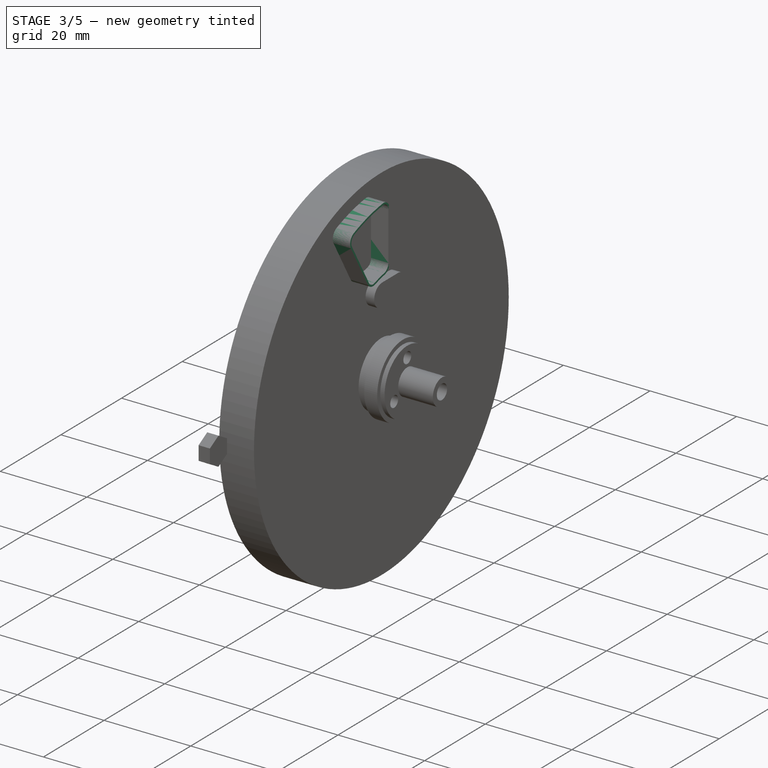
[diagram: stage 3 of 5 — iso view after this stage's code; geometry added in this stage tinted green]
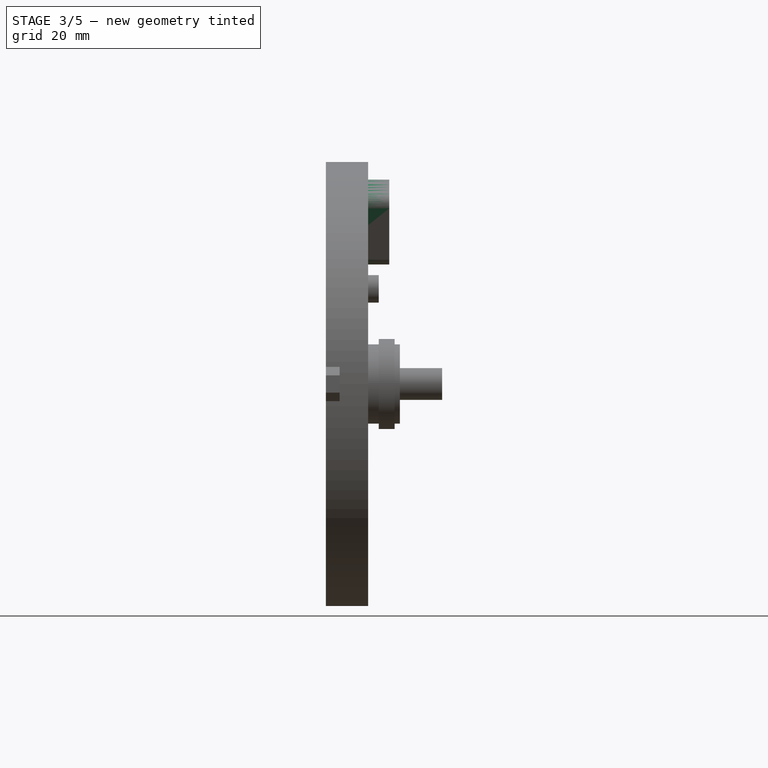
[diagram: stage 3 of 5 — front view after this stage's code; geometry added in this stage tinted green]
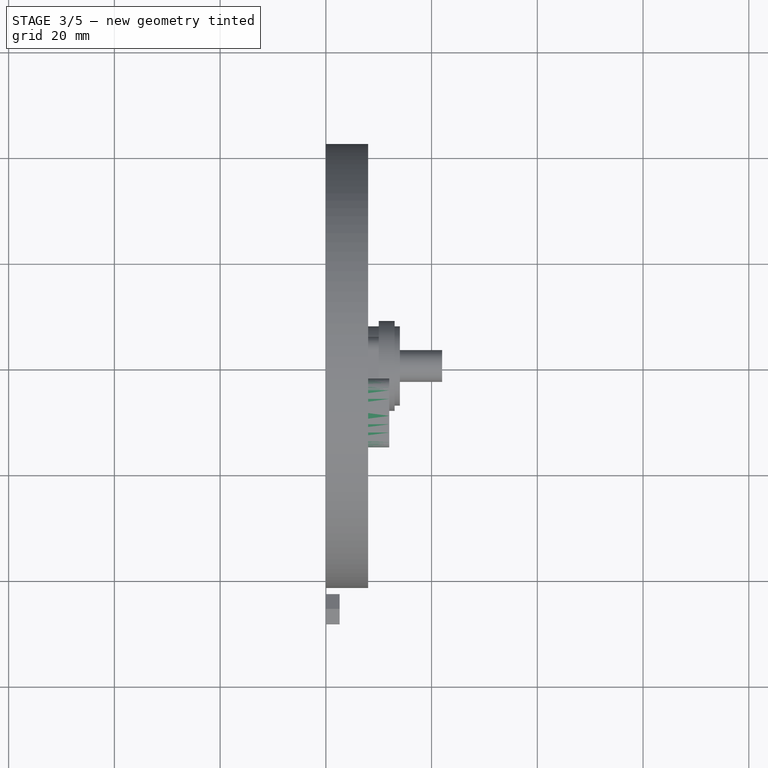
[diagram: stage 3 of 5 — top view after this stage's code; geometry added in this stage tinted green]
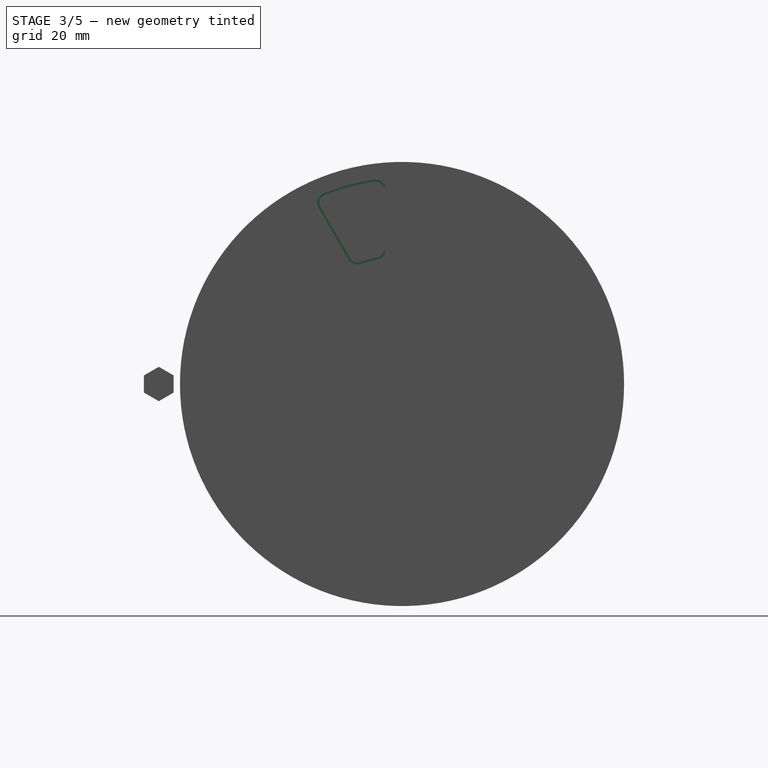
[diagram: stage 3 of 5 — right view after this stage's code; geometry added in this stage tinted green]
FEATURE [PartDesign::Body] Body036
  AllowCompound = false
  Group = -> [Sketch055,Pad036,Boolean006,Fillet006,Thickness006]
  Origin = -> Origin042
  Placement = pos=(3,0,0) rot=(1,0,0;3.14159rad)
  Tip = -> Thickness006
FEATURE [Sketcher::SketchObject] Sketch058
  ArcFitTolerance = 1e-06
  AttachmentSupport = -> [YZ_Plane045]
  FullyConstrained = true
  MakeInternals = false
  MapMode = 5
  Placement = pos=(0,0,0) rot=(0.57735,0.57735,0.57735;2.0944rad)
  sketch-geometry (4):
    g0: ArcOfCircle CenterX=0 CenterY=0 CenterZ=0 NormalX=0 NormalY=0 NormalZ=1 AngleXU=0 Radius=39 StartAngle=1.5708 EndAngle=2.0944
    g1: ArcOfCircle CenterX=0 CenterY=0 CenterZ=0 NormalX=0 NormalY=0 NormalZ=1 AngleXU=0 Radius=24 StartAngle=1.5708 EndAngle=2.0944
    g2: LineSegment StartX=1.5e-15 StartY=24 StartZ=0 EndX=2.4e-15 EndY=39 EndZ=0
    g3: LineSegment StartX=-19.5 StartY=33.775 StartZ=0 EndX=-12 EndY=20.7846 EndZ=0
  constraints (13):
    c: Angle(g0) = 0.523599
    c: PointOnObject(g0,g-2)
    c: Radius(g0) = 39
    c: Angle(g1) = 0.523599
    c: Coincident(g1,g-1)
    c: PointOnObject(g1,g-2)
    c: Radius(g1) = 24
    c: PointOnObject(g0,g-1)
    c: PointOnObject(g0,g-2)
    c: Coincident(g2,g1)
    c: Coincident(g2,g0)
    c: Coincident(g3,g0)
    c: Coincident(g3,g1)
FEATURE [PartDesign::Pad] Pad039
  Direction = (1,0,0)
  Length = 12
  Length2 = 10
  Placement = pos=(0,0,0) rot=(1,1,1;2.0944rad)
  Profile = -> Sketch058
  ReferenceAxis = -> Sketch058 [N_Axis]
  Refine = true
  Suppressed = false
  Type = 0
FEATURE [Sketcher::SketchObject] Sketch059
  ArcFitTolerance = 1e-06
  AttachmentSupport = -> [YZ_Plane046]
  FullyConstrained = true
  MakeInternals = false
  MapMode = 5
  Placement = pos=(0,0,0) rot=(0.57735,0.57735,0.57735;2.0944rad)
  sketch-geometry (4):
    g0: LineSegment StartX=-3 StartY=40 StartZ=0 EndX=-3 EndY=20 EndZ=0
    g1: LineSegment StartX=-3 StartY=20 StartZ=0 EndX=3 EndY=20 EndZ=0
    g2: LineSegment StartX=3 StartY=20 StartZ=0 EndX=3 EndY=40 EndZ=0
    g3: LineSegment StartX=3 StartY=40 StartZ=0 EndX=-3 EndY=40 EndZ=0
  constraints (11):
    c: Coincident(g0,g1)
    c: Coincident(g1,g2)
    c: Coincident(g2,g3)
    c: Coincident(g3,g0)
    c: Vertical(g0)
    c: Vertical(g2)
    c: Horizontal(g1)
    c: Symmetric(g2,g0,g-2)
    c: DistanceX(g3,g3) = 6
    c: DistanceY(g0,g0) = 20
    c: DistanceY(g-1,g0) = 20
FEATURE [PartDesign::Pad] Pad040
  Direction = (1,0,0)
  Length = 12
  Length2 = 10
  Placement = pos=(0,0,0) rot=(1,1,1;2.0944rad)
  Profile = -> Sketch059
  ReferenceAxis = -> Sketch059 [N_Axis]
  Refine = true
  Suppressed = false
  Type = 0
FEATURE [PartDesign::Body] Body040
  AllowCompound = false
  Group = -> [Sketch059,Pad040]
  Origin = -> Origin046
  Tip = -> Pad040
FEATURE [Sketcher::SketchObject] Sketch060
  ArcFitTolerance = 1e-06
  AttachmentSupport = -> [YZ_Plane047]
  FullyConstrained = true
  MakeInternals = false
  MapMode = 5
  Placement = pos=(0,0,0) rot=(0.57735,0.57735,0.57735;2.0944rad)
  sketch-geometry (4):
    g0: LineSegment StartX=-3 StartY=40 StartZ=0 EndX=-3 EndY=20 EndZ=0
    g1: LineSegment StartX=-3 StartY=20 StartZ=0 EndX=3 EndY=20 EndZ=0
    g2: LineSegment StartX=3 StartY=20 StartZ=0 EndX=3 EndY=40 EndZ=0
    g3: LineSegment StartX=3 StartY=40 StartZ=0 EndX=-3 EndY=40 EndZ=0
  constraints (11):
    c: Coincident(g0,g1)
    c: Coincident(g1,g2)
    c: Coincident(g2,g3)
    c: Coincident(g3,g0)
    c: Vertical(g0)
    c: Vertical(g2)
    c: Horizontal(g1)
    c: Symmetric(g2,g0,g-2)
    c: DistanceX(g3,g3) = 6
    c: DistanceY(g0,g0) = 20
    c: DistanceY(g-1,g0) = 20
FEATURE [PartDesign::Pad] Pad041
  Direction = (1,0,0)
  Length = 12
  Length2 = 10
  Placement = pos=(0,0,0) rot=(1,1,1;2.0944rad)
  Profile = -> Sketch060
  ReferenceAxis = -> Sketch060 [N_Axis]
  Refine = true
  Suppressed = false
  Type = 0
FEATURE [PartDesign::Body] Body041
  AllowCompound = false
  Group = -> [Sketch060,Pad041]
  Origin = -> Origin047
  Placement = pos=(0,0,0) rot=(-1,0,0;5.75959rad)
  Tip = -> Pad041
FEATURE [PartDesign::Boolean] Boolean007
  BaseFeature = -> Pad039
  Group = -> [Body040,Body041]
  Refine = true
  Suppressed = false
  Type = 1
  UsePlacement = true
FEATURE [PartDesign::Fillet] Fillet007
  Base = -> Boolean007 [Edge2,Edge4,Edge12,Edge8]
  BaseFeature = -> Boolean007
  Radius = 2
  Refine = true
  SupportTransform = false
  Suppressed = false
  UseAllEdges = false
FEATURE [PartDesign::Thickness] Thickness007
  Base = -> Fillet007 [Face5]
  BaseFeature = -> Fillet007
  Intersection = false
  Join = 0
  Mode = 0
  Refine = true
  Reversed = true
  SupportTransform = false
  Suppressed = false
  Value = 0.4
FEATURE [PartDesign::Body] Body039
  AllowCompound = false
  Group = -> [Sketch058,Pad039,Boolean007,Fillet007,Thickness007]
  Origin = -> Origin045
  Placement = pos=(3,0,0) rot=(1,0,0;3.66519rad)
  Tip = -> Thickness007
FEATURE [Sketcher::SketchObject] Sketch061
  ArcFitTolerance = 1e-06
  AttachmentSupport = -> [YZ_Plane048]
  FullyConstrained = true
  MakeInternals = false
  MapMode = 5
  Placement = pos=(0,0,0) rot=(0.57735,0.57735,0.57735;2.0944rad)
  sketch-geometry (4):
    g0: ArcOfCircle CenterX=0 CenterY=0 CenterZ=0 NormalX=0 NormalY=0 NormalZ=1 AngleXU=0 Radius=39 StartAngle=1.5708 EndAngle=2.0944
    g1: ArcOfCircle CenterX=0 CenterY=0 CenterZ=0 NormalX=0 NormalY=0 NormalZ=1 AngleXU=0 Radius=24 StartAngle=1.5708 EndAngle=2.0944
    g2: LineSegment StartX=1.5e-15 StartY=24 StartZ=0 EndX=2.4e-15 EndY=39 EndZ=0
    g3: LineSegment StartX=-19.5 StartY=33.775 StartZ=0 EndX=-12 EndY=20.7846 EndZ=0
  constraints (13):
    c: Angle(g0) = 0.523599
    c: PointOnObject(g0,g-2)
    c: Radius(g0) = 39
    c: Angle(g1) = 0.523599
    c: Coincident(g1,g-1)
    c: PointOnObject(g1,g-2)
    c: Radius(g1) = 24
    c: PointOnObject(g0,g-1)
    c: PointOnObject(g0,g-2)
    c: Coincident(g2,g1)
    c: Coincident(g2,g0)
    c: Coincident(g3,g0)
    c: Coincident(g3,g1)
FEATURE [PartDesign::Pad] Pad042
  Direction = (1,0,0)
  Length = 12
  Length2 = 10
  Placement = pos=(0,0,0) rot=(1,1,1;2.0944rad)
  Profile = -> Sketch061
  ReferenceAxis = -> Sketch061 [N_Axis]
  Refine = true
  Suppressed = false
  Type = 0
FEATURE [Sketcher::SketchObject] Sketch062
  ArcFitTolerance = 1e-06
  AttachmentSupport = -> [YZ_Plane049]
  FullyConstrained = true
  MakeInternals = false
  MapMode = 5
  Placement = pos=(0,0,0) rot=(0.57735,0.57735,0.57735;2.0944rad)
  sketch-geometry (4):
    g0: LineSegment StartX=-3 StartY=40 StartZ=0 EndX=-3 EndY=20 EndZ=0
    g1: LineSegment StartX=-3 StartY=20 StartZ=0 EndX=3 EndY=20 EndZ=0
    g2: LineSegment StartX=3 StartY=20 StartZ=0 EndX=3 EndY=40 EndZ=0
    g3: LineSegment StartX=3 StartY=40 StartZ=0 EndX=-3 EndY=40 EndZ=0
  constraints (11):
    c: Coincident(g0,g1)
    c: Coincident(g1,g2)
    c: Coincident(g2,g3)
    c: Coincident(g3,g0)
    c: Vertical(g0)
    c: Vertical(g2)
    c: Horizontal(g1)
    c: Symmetric(g2,g0,g-2)
    c: DistanceX(g3,g3) = 6
    c: DistanceY(g0,g0) = 20
    c: DistanceY(g-1,g0) = 20
FEATURE [PartDesign::Pad] Pad043
  Direction = (1,0,0)
  Length = 12
  Length2 = 10
  Placement = pos=(0,0,0) rot=(1,1,1;2.0944rad)
  Profile = -> Sketch062
  ReferenceAxis = -> Sketch062 [N_Axis]
  Refine = true
  Suppressed = false
  Type = 0
FEATURE [PartDesign::Body] Body043
  AllowCompound = false
  Group = -> [Sketch062,Pad043]
  Origin = -> Origin049
  Tip = -> Pad043
FEATURE [Sketcher::SketchObject] Sketch063
  ArcFitTolerance = 1e-06
  AttachmentSupport = -> [YZ_Plane050]
  FullyConstrained = true
  MakeInternals = false
  MapMode = 5
  Placement = pos=(0,0,0) rot=(0.57735,0.57735,0.57735;2.0944rad)
  sketch-geometry (4):
    g0: LineSegment StartX=-3 StartY=40 StartZ=0 EndX=-3 EndY=20 EndZ=0
    g1: LineSegment StartX=-3 StartY=20 StartZ=0 EndX=3 EndY=20 EndZ=0
    g2: LineSegment StartX=3 StartY=20 StartZ=0 EndX=3 EndY=40 EndZ=0
    g3: LineSegment StartX=3 StartY=40 StartZ=0 EndX=-3 EndY=40 EndZ=0
  constraints (11):
    c: Coincident(g0,g1)
    c: Coincident(g1,g2)
    c: Coincident(g2,g3)
    c: Coincident(g3,g0)
    c: Vertical(g0)
    c: Vertical(g2)
    c: Horizontal(g1)
    c: Symmetric(g2,g0,g-2)
    c: DistanceX(g3,g3) = 6
    c: DistanceY(g0,g0) = 20
    c: DistanceY(g-1,g0) = 20
FEATURE [PartDesign::Pad] Pad044
  Direction = (1,0,0)
  Length = 12
  Length2 = 10
  Placement = pos=(0,0,0) rot=(1,1,1;2.0944rad)
  Profile = -> Sketch063
  ReferenceAxis = -> Sketch063 [N_Axis]
  Refine = true
  Suppressed = false
  Type = 0
FEATURE [PartDesign::Body] Body044
  AllowCompound = false
  Group = -> [Sketch063,Pad044]
  Origin = -> Origin050
  Placement = pos=(0,0,0) rot=(-1,0,0;5.75959rad)
  Tip = -> Pad044
FEATURE [PartDesign::Boolean] Boolean008
  BaseFeature = -> Pad042
  Group = -> [Body043,Body044]
  Refine = true
  Suppressed = false
  Type = 1
  UsePlacement = true
FEATURE [PartDesign::Fillet] Fillet008
  Base = -> Boolean008 [Edge2,Edge4,Edge12,Edge8]
  BaseFeature = -> Boolean008
  Radius = 2
  Refine = true
  SupportTransform = false
  Suppressed = false
  UseAllEdges = false
FEATURE [PartDesign::Thickness] Thickness008
  Base = -> Fillet008 [Face5]
  BaseFeature = -> Fillet008
  Intersection = false
  Join = 0
  Mode = 0
  Refine = true
  Reversed = true
  SupportTransform = false
  Suppressed = false
  Value = 0.4
FEATURE [PartDesign::Body] Body042
  AllowCompound = false
  Group = -> [Sketch061,Pad042,Boolean008,Fillet008,Thickness008]
  Origin = -> Origin048
  Placement = pos=(3,0,0) rot=(1,0,0;4.18879rad)
  Tip = -> Thickness008
FEATURE [Sketcher::SketchObject] Sketch064
  ArcFitTolerance = 1e-06
  AttachmentSupport = -> [YZ_Plane051]
  FullyConstrained = true
  MakeInternals = false
  MapMode = 5
  Placement = pos=(0,0,0) rot=(0.57735,0.57735,0.57735;2.0944rad)
  sketch-geometry (4):
    g0: ArcOfCircle CenterX=0 CenterY=0 CenterZ=0 NormalX=0 NormalY=0 NormalZ=1 AngleXU=0 Radius=39 StartAngle=1.5708 EndAngle=2.0944
    g1: ArcOfCircle CenterX=0 CenterY=0 CenterZ=0 NormalX=0 NormalY=0 NormalZ=1 AngleXU=0 Radius=24 StartAngle=1.5708 EndAngle=2.0944
    g2: LineSegment StartX=1.5e-15 StartY=24 StartZ=0 EndX=2.4e-15 EndY=39 EndZ=0
    g3: LineSegment StartX=-19.5 StartY=33.775 StartZ=0 EndX=-12 EndY=20.7846 EndZ=0
  constraints (13):
    c: Angle(g0) = 0.523599
    c: PointOnObject(g0,g-2)
    c: Radius(g0) = 39
    c: Angle(g1) = 0.523599
    c: Coincident(g1,g-1)
    c: PointOnObject(g1,g-2)
    c: Radius(g1) = 24
    c: PointOnObject(g0,g-1)
    c: PointOnObject(g0,g-2)
    c: Coincident(g2,g1)
    c: Coincident(g2,g0)
    c: Coincident(g3,g0)
    c: Coincident(g3,g1)
FEATURE [PartDesign::Pad] Pad045
  Direction = (1,0,0)
  Length = 12
  Length2 = 10
  Placement = pos=(0,0,0) rot=(1,1,1;2.0944rad)
  Profile = -> Sketch064
  ReferenceAxis = -> Sketch064 [N_Axis]
  Refine = true
  Suppressed = false
  Type = 0
FEATURE [Sketcher::SketchObject] Sketch065
  ArcFitTolerance = 1e-06
  AttachmentSupport = -> [YZ_Plane052]
  FullyConstrained = true
  MakeInternals = false
  MapMode = 5
  Placement = pos=(0,0,0) rot=(0.57735,0.57735,0.57735;2.0944rad)
  sketch-geometry (4):
    g0: LineSegment StartX=-3 StartY=40 StartZ=0 EndX=-3 EndY=20 EndZ=0
    g1: LineSegment StartX=-3 StartY=20 StartZ=0 EndX=3 EndY=20 EndZ=0
    g2: LineSegment StartX=3 StartY=20 StartZ=0 EndX=3 EndY=40 EndZ=0
    g3: LineSegment StartX=3 StartY=40 StartZ=0 EndX=-3 EndY=40 EndZ=0
  constraints (11):
    c: Coincident(g0,g1)
    c: Coincident(g1,g2)
    c: Coincident(g2,g3)
    c: Coincident(g3,g0)
    c: Vertical(g0)
    c: Vertical(g2)
    c: Horizontal(g1)
    c: Symmetric(g2,g0,g-2)
    c: DistanceX(g3,g3) = 6
    c: DistanceY(g0,g0) = 20
    c: DistanceY(g-1,g0) = 20
FEATURE [PartDesign::Pad] Pad046
  Direction = (1,0,0)
  Length = 12
  Length2 = 10
  Placement = pos=(0,0,0) rot=(1,1,1;2.0944rad)
  Profile = -> Sketch065
  ReferenceAxis = -> Sketch065 [N_Axis]
  Refine = true
  Suppressed = false
  Type = 0
FEATURE [PartDesign::Body] Body046
  AllowCompound = false
  Group = -> [Sketch065,Pad046]
  Origin = -> Origin052
  Tip = -> Pad046
FEATURE [Sketcher::SketchObject] Sketch066
  ArcFitTolerance = 1e-06
  AttachmentSupport = -> [YZ_Plane053]
  FullyConstrained = true
  MakeInternals = false
  MapMode = 5
  Placement = pos=(0,0,0) rot=(0.57735,0.57735,0.57735;2.0944rad)
  sketch-geometry (4):
    g0: LineSegment StartX=-3 StartY=40 StartZ=0 EndX=-3 EndY=20 EndZ=0
    g1: LineSegment StartX=-3 StartY=20 StartZ=0 EndX=3 EndY=20 EndZ=0
    g2: LineSegment StartX=3 StartY=20 StartZ=0 EndX=3 EndY=40 EndZ=0
    g3: LineSegment StartX=3 StartY=40 StartZ=0 EndX=-3 EndY=40 EndZ=0
  constraints (11):
    c: Coincident(g0,g1)
    c: Coincident(g1,g2)
    c: Coincident(g2,g3)
    c: Coincident(g3,g0)
    c: Vertical(g0)
    c: Vertical(g2)
    c: Horizontal(g1)
    c: Symmetric(g2,g0,g-2)
    c: DistanceX(g3,g3) = 6
    c: DistanceY(g0,g0) = 20
    c: DistanceY(g-1,g0) = 20
FEATURE [PartDesign::Pad] Pad047
  Direction = (1,0,0)
  Length = 12
  Length2 = 10
  Placement = pos=(0,0,0) rot=(1,1,1;2.0944rad)
  Profile = -> Sketch066
  ReferenceAxis = -> Sketch066 [N_Axis]
  Refine = true
  Suppressed = false
  Type = 0
FEATURE [PartDesign::Body] Body047
  AllowCompound = false
  Group = -> [Sketch066,Pad047]
  Origin = -> Origin053
  Placement = pos=(0,0,0) rot=(-1,0,0;5.75959rad)
  Tip = -> Pad047
FEATURE [PartDesign::Boolean] Boolean009
  BaseFeature = -> Pad045
  Group = -> [Body046,Body047]
  Refine = true
  Suppressed = false
  Type = 1
  UsePlacement = true
FEATURE [PartDesign::Fillet] Fillet009
  Base = -> Boolean009 [Edge2,Edge4,Edge12,Edge8]
  BaseFeature = -> Boolean009
  Radius = 2
  Refine = true
  SupportTransform = false
  Suppressed = false
  UseAllEdges = false
FEATURE [PartDesign::Thickness] Thickness009
  Base = -> Fillet009 [Face5]
  BaseFeature = -> Fillet009
  Intersection = false
  Join = 0
  Mode = 0
  Refine = true
  Reversed = true
  SupportTransform = false
  Suppressed = false
  Value = 0.4
FEATURE [PartDesign::Body] Body045
  AllowCompound = false
  Group = -> [Sketch064,Pad045,Boolean009,Fillet009,Thickness009]
  Origin = -> Origin051
  Placement = pos=(3,0,0) rot=(1,0,0;4.71239rad)
  Tip = -> Thickness009
FEATURE [Sketcher::SketchObject] Sketch067
  ArcFitTolerance = 1e-06
  AttachmentSupport = -> [YZ_Plane054]
  FullyConstrained = true
  MakeInternals = false
  MapMode = 5
  Placement = pos=(0,0,0) rot=(0.57735,0.57735,0.57735;2.0944rad)
  sketch-geometry (4):
    g0: ArcOfCircle CenterX=0 CenterY=0 CenterZ=0 NormalX=0 NormalY=0 NormalZ=1 AngleXU=0 Radius=39 StartAngle=1.5708 EndAngle=2.0944
    g1: ArcOfCircle CenterX=0 CenterY=0 CenterZ=0 NormalX=0 NormalY=0 NormalZ=1 AngleXU=0 Radius=24 StartAngle=1.5708 EndAngle=2.0944
    g2: LineSegment StartX=1.5e-15 StartY=24 StartZ=0 EndX=2.4e-15 EndY=39 EndZ=0
    g3: LineSegment StartX=-19.5 StartY=33.775 StartZ=0 EndX=-12 EndY=20.7846 EndZ=0
  constraints (13):
    c: Angle(g0) = 0.523599
    c: PointOnObject(g0,g-2)
    c: Radius(g0) = 39
    c: Angle(g1) = 0.523599
    c: Coincident(g1,g-1)
    c: PointOnObject(g1,g-2)
    c: Radius(g1) = 24
    c: PointOnObject(g0,g-1)
    c: PointOnObject(g0,g-2)
    c: Coincident(g2,g1)
    c: Coincident(g2,g0)
    c: Coincident(g3,g0)
    c: Coincident(g3,g1)
FEATURE [PartDesign::Pad] Pad048
  Direction = (1,0,0)
  Length = 12
  Length2 = 10
  Placement = pos=(0,0,0) rot=(1,1,1;2.0944rad)
  Profile = -> Sketch067
  ReferenceAxis = -> Sketch067 [N_Axis]
  Refine = true
  Suppressed = false
  Type = 0
FEATURE [Sketcher::SketchObject] Sketch068
  ArcFitTolerance = 1e-06
  AttachmentSupport = -> [YZ_Plane055]
  FullyConstrained = true
  MakeInternals = false
  MapMode = 5
  Placement = pos=(0,0,0) rot=(0.57735,0.57735,0.57735;2.0944rad)
  sketch-geometry (4):
    g0: LineSegment StartX=-3 StartY=40 StartZ=0 EndX=-3 EndY=20 EndZ=0
    g1: LineSegment StartX=-3 StartY=20 StartZ=0 EndX=3 EndY=20 EndZ=0
    g2: LineSegment StartX=3 StartY=20 StartZ=0 EndX=3 EndY=40 EndZ=0
    g3: LineSegment StartX=3 StartY=40 StartZ=0 EndX=-3 EndY=40 EndZ=0
  constraints (11):
    c: Coincident(g0,g1)
    c: Coincident(g1,g2)
    c: Coincident(g2,g3)
    c: Coincident(g3,g0)
    c: Vertical(g0)
    c: Vertical(g2)
    c: Horizontal(g1)
    c: Symmetric(g2,g0,g-2)
    c: DistanceX(g3,g3) = 6
    c: DistanceY(g0,g0) = 20
    c: DistanceY(g-1,g0) = 20
FEATURE [PartDesign::Pad] Pad049
  Direction = (1,0,0)
  Length = 12
  Length2 = 10
  Placement = pos=(0,0,0) rot=(1,1,1;2.0944rad)
  Profile = -> Sketch068
  ReferenceAxis = -> Sketch068 [N_Axis]
  Refine = true
  Suppressed = false
  Type = 0
FEATURE [PartDesign::Body] Body049
  AllowCompound = false
  Group = -> [Sketch068,Pad049]
  Origin = -> Origin055
  Tip = -> Pad049
FEATURE [Sketcher::SketchObject] Sketch069
  ArcFitTolerance = 1e-06
  AttachmentSupport = -> [YZ_Plane056]
  FullyConstrained = true
  MakeInternals = false
  MapMode = 5
  Placement = pos=(0,0,0) rot=(0.57735,0.57735,0.57735;2.0944rad)
  sketch-geometry (4):
    g0: LineSegment StartX=-3 StartY=40 StartZ=0 EndX=-3 EndY=20 EndZ=0
    g1: LineSegment StartX=-3 StartY=20 StartZ=0 EndX=3 EndY=20 EndZ=0
    g2: LineSegment StartX=3 StartY=20 StartZ=0 EndX=3 EndY=40 EndZ=0
    g3: LineSegment StartX=3 StartY=40 StartZ=0 EndX=-3 EndY=40 EndZ=0
  constraints (11):
    c: Coincident(g0,g1)
    c: Coincident(g1,g2)
    c: Coincident(g2,g3)
    c: Coincident(g3,g0)
    c: Vertical(g0)
    c: Vertical(g2)
    c: Horizontal(g1)
    c: Symmetric(g2,g0,g-2)
    c: DistanceX(g3,g3) = 6
    c: DistanceY(g0,g0) = 20
    c: DistanceY(g-1,g0) = 20
FEATURE [PartDesign::Pad] Pad050
  Direction = (1,0,0)
  Length = 12
  Length2 = 10
  Placement = pos=(0,0,0) rot=(1,1,1;2.0944rad)
  Profile = -> Sketch069
  ReferenceAxis = -> Sketch069 [N_Axis]
  Refine = true
  Suppressed = false
  Type = 0
FEATURE [PartDesign::Body] Body050
  AllowCompound = false
  Group = -> [Sketch069,Pad050]
  Origin = -> Origin056
  Placement = pos=(0,0,0) rot=(-1,0,0;5.75959rad)
  Tip = -> Pad050
FEATURE [PartDesign::Boolean] Boolean010
  BaseFeature = -> Pad048
  Group = -> [Body049,Body050]
  Refine = true
  Suppressed = false
  Type = 1
  UsePlacement = true
FEATURE [PartDesign::Fillet] Fillet010
  Base = -> Boolean010 [Edge2,Edge4,Edge12,Edge8]
  BaseFeature = -> Boolean010
  Radius = 2
  Refine = true
  SupportTransform = false
  Suppressed = false
  UseAllEdges = false
FEATURE [PartDesign::Thickness] Thickness010
  Base = -> Fillet010 [Face5]
  BaseFeature = -> Fillet010
  Intersection = false
  Join = 0
  Mode = 0
  Refine = true
  Reversed = true
  SupportTransform = false
  Suppressed = false
  Value = 0.4
FEATURE [PartDesign::Body] Body048
  AllowCompound = false
  Group = -> [Sketch067,Pad048,Boolean010,Fillet010,Thickness010]
  Origin = -> Origin054
  Placement = pos=(3,0,0) rot=(1,0,0;5.23599rad)
  Tip = -> Thickness010
FEATURE [Sketcher::SketchObject] Sketch070
  ArcFitTolerance = 1e-06
  AttachmentSupport = -> [YZ_Plane057]
  FullyConstrained = true
  MakeInternals = false
  MapMode = 5
  Placement = pos=(0,0,0) rot=(0.57735,0.57735,0.57735;2.0944rad)
  sketch-geometry (4):
    g0: ArcOfCircle CenterX=0 CenterY=0 CenterZ=0 NormalX=0 NormalY=0 NormalZ=1 AngleXU=0 Radius=39 StartAngle=1.5708 EndAngle=2.0944
    g1: ArcOfCircle CenterX=0 CenterY=0 CenterZ=0 NormalX=0 NormalY=0 NormalZ=1 AngleXU=0 Radius=24 StartAngle=1.5708 EndAngle=2.0944
    g2: LineSegment StartX=1.5e-15 StartY=24 StartZ=0 EndX=2.4e-15 EndY=39 EndZ=0
    g3: LineSegment StartX=-19.5 StartY=33.775 StartZ=0 EndX=-12 EndY=20.7846 EndZ=0
  constraints (13):
    c: Angle(g0) = 0.523599
    c: PointOnObject(g0,g-2)
    c: Radius(g0) = 39
    c: Angle(g1) = 0.523599
    c: Coincident(g1,g-1)
    c: PointOnObject(g1,g-2)
    c: Radius(g1) = 24
    c: PointOnObject(g0,g-1)
    c: PointOnObject(g0,g-2)
    c: Coincident(g2,g1)
    c: Coincident(g2,g0)
    c: Coincident(g3,g0)
    c: Coincident(g3,g1)
FEATURE [PartDesign::Pad] Pad051
  Direction = (1,0,0)
  Length = 12
  Length2 = 10
  Placement = pos=(0,0,0) rot=(1,1,1;2.0944rad)
  Profile = -> Sketch070
  ReferenceAxis = -> Sketch070 [N_Axis]
  Refine = true
  Suppressed = false
  Type = 0
FEATURE [PartDesign::Body] Body053
  AllowCompound = false
  Group = -> [Sketch072,Pad053]
  Origin = -> Origin059
  Placement = pos=(0,0,0) rot=(-1,0,0;5.75959rad)
  Tip = -> Pad053
FEATURE [PartDesign::Boolean] Boolean011
  BaseFeature = -> Pad051
  Group = -> [Body052,Body053]
  Refine = true
  Suppressed = false
  Type = 1
  UsePlacement = true
FEATURE [PartDesign::Fillet] Fillet011
  Base = -> Boolean011 [Edge2,Edge4,Edge12,Edge8]
  BaseFeature = -> Boolean011
  Radius = 2
  Refine = true
  SupportTransform = false
  Suppressed = false
  UseAllEdges = false
FEATURE [PartDesign::Thickness] Thickness011
  Base = -> Fillet011 [Face5]
  BaseFeature = -> Fillet011
  Intersection = false
  Join = 0
  Mode = 0
  Refine = true
  Reversed = true
  SupportTransform = false
  Suppressed = false
  Value = 0.4
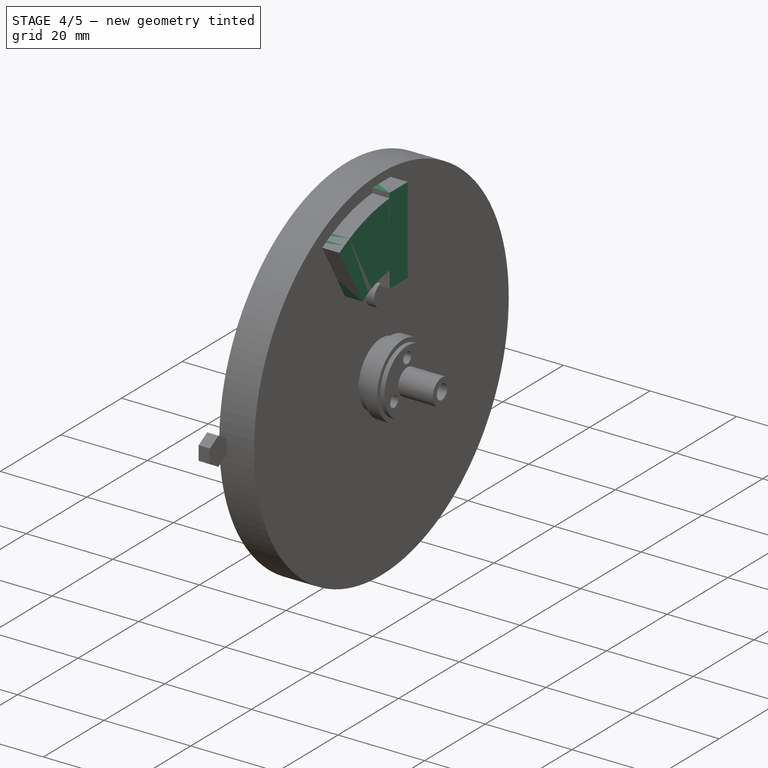
[diagram: stage 4 of 5 — iso view after this stage's code; geometry added in this stage tinted green]
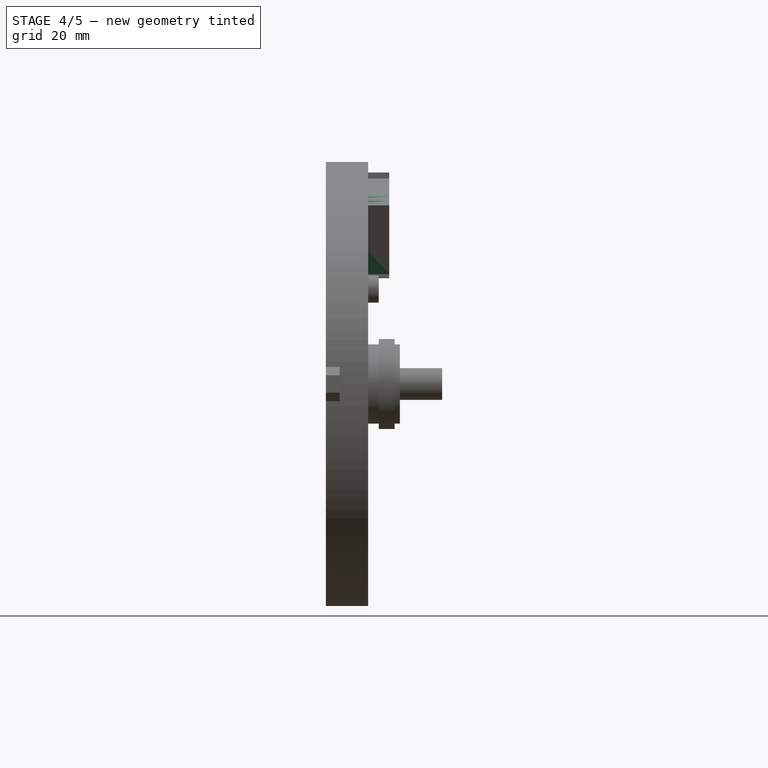
[diagram: stage 4 of 5 — front view after this stage's code; geometry added in this stage tinted green]
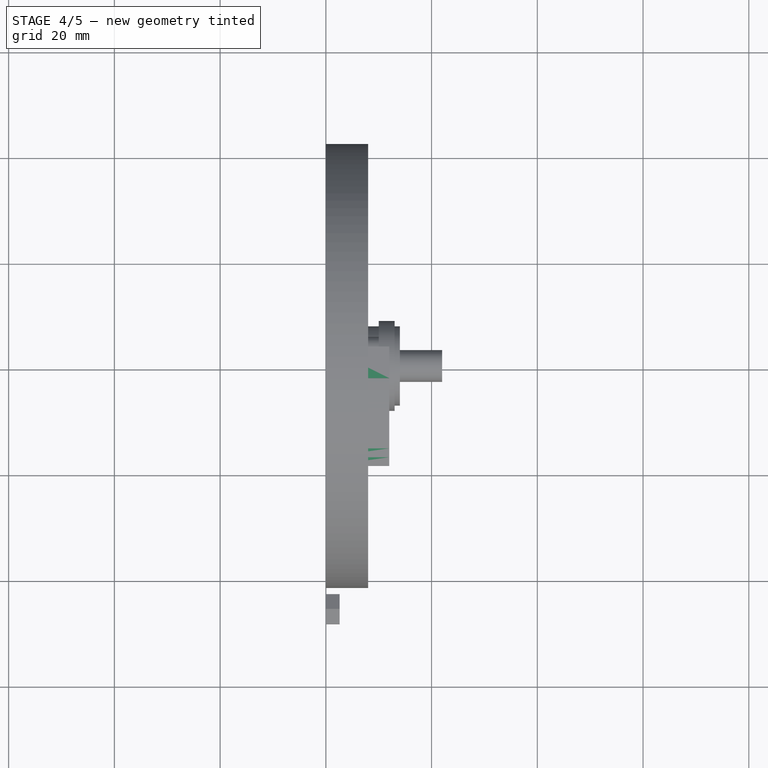
[diagram: stage 4 of 5 — top view after this stage's code; geometry added in this stage tinted green]
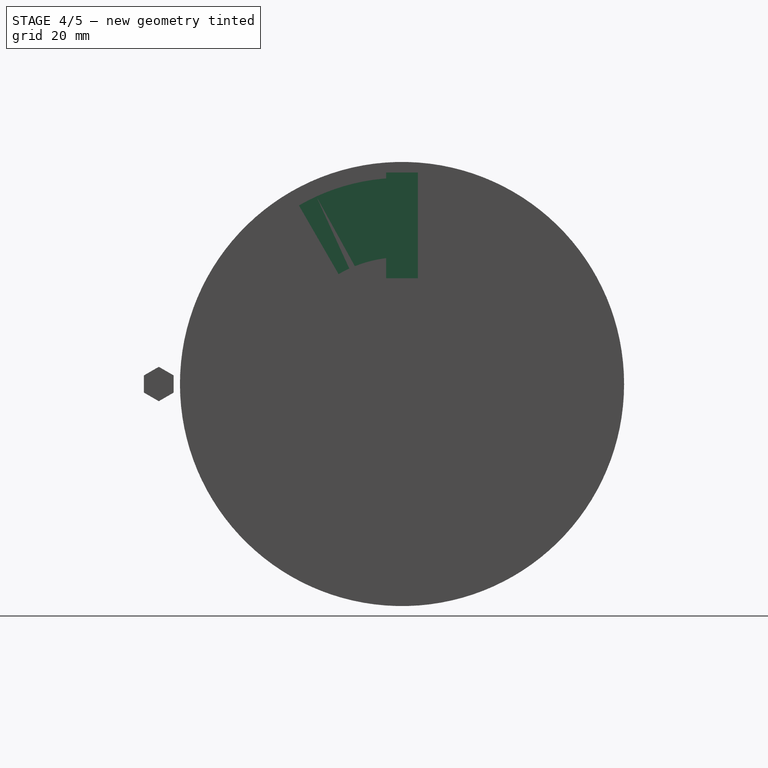
[diagram: stage 4 of 5 — right view after this stage's code; geometry added in this stage tinted green]
FEATURE [PartDesign::Body] Body021
  AllowCompound = false
  Group = -> [Sketch040,Pad021,Boolean001,Fillet001,Thickness001]
  Origin = -> Origin027
  Placement = pos=(3,0,0) rot=(1,0,0;0.523599rad)
  Tip = -> Thickness001
FEATURE [Sketcher::SketchObject] Sketch043
  ArcFitTolerance = 1e-06
  AttachmentSupport = -> [YZ_Plane030]
  FullyConstrained = true
  MakeInternals = false
  MapMode = 5
  Placement = pos=(0,0,0) rot=(0.57735,0.57735,0.57735;2.0944rad)
  sketch-geometry (4):
    g0: ArcOfCircle CenterX=0 CenterY=0 CenterZ=0 NormalX=0 NormalY=0 NormalZ=1 AngleXU=0 Radius=39 StartAngle=1.5708 EndAngle=2.0944
    g1: ArcOfCircle CenterX=0 CenterY=0 CenterZ=0 NormalX=0 NormalY=0 NormalZ=1 AngleXU=0 Radius=24 StartAngle=1.5708 EndAngle=2.0944
    g2: LineSegment StartX=1.5e-15 StartY=24 StartZ=0 EndX=2.4e-15 EndY=39 EndZ=0
    g3: LineSegment StartX=-19.5 StartY=33.775 StartZ=0 EndX=-12 EndY=20.7846 EndZ=0
  constraints (13):
    c: Angle(g0) = 0.523599
    c: PointOnObject(g0,g-2)
    c: Radius(g0) = 39
    c: Angle(g1) = 0.523599
    c: Coincident(g1,g-1)
    c: PointOnObject(g1,g-2)
    c: Radius(g1) = 24
    c: PointOnObject(g0,g-1)
    c: PointOnObject(g0,g-2)
    c: Coincident(g2,g1)
    c: Coincident(g2,g0)
    c: Coincident(g3,g0)
    c: Coincident(g3,g1)
FEATURE [PartDesign::Pad] Pad024
  Direction = (1,0,0)
  Length = 12
  Length2 = 10
  Placement = pos=(0,0,0) rot=(1,1,1;2.0944rad)
  Profile = -> Sketch043
  ReferenceAxis = -> Sketch043 [N_Axis]
  Refine = true
  Suppressed = false
  Type = 0
FEATURE [Sketcher::SketchObject] Sketch044
  ArcFitTolerance = 1e-06
  AttachmentSupport = -> [YZ_Plane031]
  FullyConstrained = true
  MakeInternals = false
  MapMode = 5
  Placement = pos=(0,0,0) rot=(0.57735,0.57735,0.57735;2.0944rad)
  sketch-geometry (4):
    g0: LineSegment StartX=-3 StartY=40 StartZ=0 EndX=-3 EndY=20 EndZ=0
    g1: LineSegment StartX=-3 StartY=20 StartZ=0 EndX=3 EndY=20 EndZ=0
    g2: LineSegment StartX=3 StartY=20 StartZ=0 EndX=3 EndY=40 EndZ=0
    g3: LineSegment StartX=3 StartY=40 StartZ=0 EndX=-3 EndY=40 EndZ=0
  constraints (11):
    c: Coincident(g0,g1)
    c: Coincident(g1,g2)
    c: Coincident(g2,g3)
    c: Coincident(g3,g0)
    c: Vertical(g0)
    c: Vertical(g2)
    c: Horizontal(g1)
    c: Symmetric(g2,g0,g-2)
    c: DistanceX(g3,g3) = 6
    c: DistanceY(g0,g0) = 20
    c: DistanceY(g-1,g0) = 20
FEATURE [PartDesign::Pad] Pad025
  Direction = (1,0,0)
  Length = 12
  Length2 = 10
  Placement = pos=(0,0,0) rot=(1,1,1;2.0944rad)
  Profile = -> Sketch044
  ReferenceAxis = -> Sketch044 [N_Axis]
  Refine = true
  Suppressed = false
  Type = 0
FEATURE [PartDesign::Body] Body025
  AllowCompound = false
  Group = -> [Sketch044,Pad025]
  Origin = -> Origin031
  Tip = -> Pad025
FEATURE [Sketcher::SketchObject] Sketch045
  ArcFitTolerance = 1e-06
  AttachmentSupport = -> [YZ_Plane032]
  FullyConstrained = true
  MakeInternals = false
  MapMode = 5
  Placement = pos=(0,0,0) rot=(0.57735,0.57735,0.57735;2.0944rad)
  sketch-geometry (4):
    g0: LineSegment StartX=-3 StartY=40 StartZ=0 EndX=-3 EndY=20 EndZ=0
    g1: LineSegment StartX=-3 StartY=20 StartZ=0 EndX=3 EndY=20 EndZ=0
    g2: LineSegment StartX=3 StartY=20 StartZ=0 EndX=3 EndY=40 EndZ=0
    g3: LineSegment StartX=3 StartY=40 StartZ=0 EndX=-3 EndY=40 EndZ=0
  constraints (11):
    c: Coincident(g0,g1)
    c: Coincident(g1,g2)
    c: Coincident(g2,g3)
    c: Coincident(g3,g0)
    c: Vertical(g0)
    c: Vertical(g2)
    c: Horizontal(g1)
    c: Symmetric(g2,g0,g-2)
    c: DistanceX(g3,g3) = 6
    c: DistanceY(g0,g0) = 20
    c: DistanceY(g-1,g0) = 20
FEATURE [PartDesign::Pad] Pad026
  Direction = (1,0,0)
  Length = 12
  Length2 = 10
  Placement = pos=(0,0,0) rot=(1,1,1;2.0944rad)
  Profile = -> Sketch045
  ReferenceAxis = -> Sketch045 [N_Axis]
  Refine = true
  Suppressed = false
  Type = 0
FEATURE [PartDesign::Body] Body024
  AllowCompound = false
  Group = -> [Sketch043,Pad024,Boolean002,Fillet002,Thickness002]
  Origin = -> Origin030
  Placement = pos=(3,0,0) rot=(1,0,0;1.0472rad)
  Tip = -> Thickness002
FEATURE [Sketcher::SketchObject] Sketch046
  ArcFitTolerance = 1e-06
  AttachmentSupport = -> [YZ_Plane033]
  FullyConstrained = true
  MakeInternals = false
  MapMode = 5
  Placement = pos=(0,0,0) rot=(0.57735,0.57735,0.57735;2.0944rad)
  sketch-geometry (4):
    g0: ArcOfCircle CenterX=0 CenterY=0 CenterZ=0 NormalX=0 NormalY=0 NormalZ=1 AngleXU=0 Radius=39 StartAngle=1.5708 EndAngle=2.0944
    g1: ArcOfCircle CenterX=0 CenterY=0 CenterZ=0 NormalX=0 NormalY=0 NormalZ=1 AngleXU=0 Radius=24 StartAngle=1.5708 EndAngle=2.0944
    g2: LineSegment StartX=1.5e-15 StartY=24 StartZ=0 EndX=2.4e-15 EndY=39 EndZ=0
    g3: LineSegment StartX=-19.5 StartY=33.775 StartZ=0 EndX=-12 EndY=20.7846 EndZ=0
  constraints (13):
    c: Angle(g0) = 0.523599
    c: PointOnObject(g0,g-2)
    c: Radius(g0) = 39
    c: Angle(g1) = 0.523599
    c: Coincident(g1,g-1)
    c: PointOnObject(g1,g-2)
    c: Radius(g1) = 24
    c: PointOnObject(g0,g-1)
    c: PointOnObject(g0,g-2)
    c: Coincident(g2,g1)
    c: Coincident(g2,g0)
    c: Coincident(g3,g0)
    c: Coincident(g3,g1)
FEATURE [PartDesign::Pad] Pad027
  Direction = (1,0,0)
  Length = 12
  Length2 = 10
  Placement = pos=(0,0,0) rot=(1,1,1;2.0944rad)
  Profile = -> Sketch046
  ReferenceAxis = -> Sketch046 [N_Axis]
  Refine = true
  Suppressed = false
  Type = 0
FEATURE [Sketcher::SketchObject] Sketch047
  ArcFitTolerance = 1e-06
  AttachmentSupport = -> [YZ_Plane034]
  FullyConstrained = true
  MakeInternals = false
  MapMode = 5
  Placement = pos=(0,0,0) rot=(0.57735,0.57735,0.57735;2.0944rad)
  sketch-geometry (4):
    g0: LineSegment StartX=-3 StartY=40 StartZ=0 EndX=-3 EndY=20 EndZ=0
    g1: LineSegment StartX=-3 StartY=20 StartZ=0 EndX=3 EndY=20 EndZ=0
    g2: LineSegment StartX=3 StartY=20 StartZ=0 EndX=3 EndY=40 EndZ=0
    g3: LineSegment StartX=3 StartY=40 StartZ=0 EndX=-3 EndY=40 EndZ=0
  constraints (11):
    c: Coincident(g0,g1)
    c: Coincident(g1,g2)
    c: Coincident(g2,g3)
    c: Coincident(g3,g0)
    c: Vertical(g0)
    c: Vertical(g2)
    c: Horizontal(g1)
    c: Symmetric(g2,g0,g-2)
    c: DistanceX(g3,g3) = 6
    c: DistanceY(g0,g0) = 20
    c: DistanceY(g-1,g0) = 20
FEATURE [PartDesign::Pad] Pad028
  Direction = (1,0,0)
  Length = 12
  Length2 = 10
  Placement = pos=(0,0,0) rot=(1,1,1;2.0944rad)
  Profile = -> Sketch047
  ReferenceAxis = -> Sketch047 [N_Axis]
  Refine = true
  Suppressed = false
  Type = 0
FEATURE [PartDesign::Body] Body028
  AllowCompound = false
  Group = -> [Sketch047,Pad028]
  Origin = -> Origin034
  Tip = -> Pad028
FEATURE [Sketcher::SketchObject] Sketch048
  ArcFitTolerance = 1e-06
  AttachmentSupport = -> [YZ_Plane035]
  FullyConstrained = true
  MakeInternals = false
  MapMode = 5
  Placement = pos=(0,0,0) rot=(0.57735,0.57735,0.57735;2.0944rad)
  sketch-geometry (4):
    g0: LineSegment StartX=-3 StartY=40 StartZ=0 EndX=-3 EndY=20 EndZ=0
    g1: LineSegment StartX=-3 StartY=20 StartZ=0 EndX=3 EndY=20 EndZ=0
    g2: LineSegment StartX=3 StartY=20 StartZ=0 EndX=3 EndY=40 EndZ=0
    g3: LineSegment StartX=3 StartY=40 StartZ=0 EndX=-3 EndY=40 EndZ=0
  constraints (11):
    c: Coincident(g0,g1)
    c: Coincident(g1,g2)
    c: Coincident(g2,g3)
    c: Coincident(g3,g0)
    c: Vertical(g0)
    c: Vertical(g2)
    c: Horizontal(g1)
    c: Symmetric(g2,g0,g-2)
    c: DistanceX(g3,g3) = 6
    c: DistanceY(g0,g0) = 20
    c: DistanceY(g-1,g0) = 20
FEATURE [PartDesign::Pad] Pad029
  Direction = (1,0,0)
  Length = 12
  Length2 = 10
  Placement = pos=(0,0,0) rot=(1,1,1;2.0944rad)
  Profile = -> Sketch048
  ReferenceAxis = -> Sketch048 [N_Axis]
  Refine = true
  Suppressed = false
  Type = 0
FEATURE [PartDesign::Body] Body029
  AllowCompound = false
  Group = -> [Sketch048,Pad029]
  Origin = -> Origin035
  Placement = pos=(0,0,0) rot=(-1,0,0;5.75959rad)
  Tip = -> Pad029
FEATURE [PartDesign::Boolean] Boolean003
  BaseFeature = -> Pad027
  Group = -> [Body028,Body029]
  Refine = true
  Suppressed = false
  Type = 1
  UsePlacement = true
FEATURE [PartDesign::Fillet] Fillet003
  Base = -> Boolean003 [Edge2,Edge4,Edge12,Edge8]
  BaseFeature = -> Boolean003
  Radius = 2
  Refine = true
  SupportTransform = false
  Suppressed = false
  UseAllEdges = false
FEATURE [PartDesign::Thickness] Thickness003
  Base = -> Fillet003 [Face5]
  BaseFeature = -> Fillet003
  Intersection = false
  Join = 0
  Mode = 0
  Refine = true
  Reversed = true
  SupportTransform = false
  Suppressed = false
  Value = 0.4
FEATURE [PartDesign::Body] Body027
  AllowCompound = false
  Group = -> [Sketch046,Pad027,Boolean003,Fillet003,Thickness003]
  Origin = -> Origin033
  Placement = pos=(3,0,0) rot=(1,0,0;1.5708rad)
  Tip = -> Thickness003
FEATURE [Sketcher::SketchObject] Sketch049
  ArcFitTolerance = 1e-06
  AttachmentSupport = -> [YZ_Plane036]
  FullyConstrained = true
  MakeInternals = false
  MapMode = 5
  Placement = pos=(0,0,0) rot=(0.57735,0.57735,0.57735;2.0944rad)
  sketch-geometry (4):
    g0: ArcOfCircle CenterX=0 CenterY=0 CenterZ=0 NormalX=0 NormalY=0 NormalZ=1 AngleXU=0 Radius=39 StartAngle=1.5708 EndAngle=2.0944
    g1: ArcOfCircle CenterX=0 CenterY=0 CenterZ=0 NormalX=0 NormalY=0 NormalZ=1 AngleXU=0 Radius=24 StartAngle=1.5708 EndAngle=2.0944
    g2: LineSegment StartX=1.5e-15 StartY=24 StartZ=0 EndX=2.4e-15 EndY=39 EndZ=0
    g3: LineSegment StartX=-19.5 StartY=33.775 StartZ=0 EndX=-12 EndY=20.7846 EndZ=0
  constraints (13):
    c: Angle(g0) = 0.523599
    c: PointOnObject(g0,g-2)
    c: Radius(g0) = 39
    c: Angle(g1) = 0.523599
    c: Coincident(g1,g-1)
    c: PointOnObject(g1,g-2)
    c: Radius(g1) = 24
    c: PointOnObject(g0,g-1)
    c: PointOnObject(g0,g-2)
    c: Coincident(g2,g1)
    c: Coincident(g2,g0)
    c: Coincident(g3,g0)
    c: Coincident(g3,g1)
FEATURE [PartDesign::Pad] Pad030
  Direction = (1,0,0)
  Length = 12
  Length2 = 10
  Placement = pos=(0,0,0) rot=(1,1,1;2.0944rad)
  Profile = -> Sketch049
  ReferenceAxis = -> Sketch049 [N_Axis]
  Refine = true
  Suppressed = false
  Type = 0
FEATURE [Sketcher::SketchObject] Sketch050
  ArcFitTolerance = 1e-06
  AttachmentSupport = -> [YZ_Plane037]
  FullyConstrained = true
  MakeInternals = false
  MapMode = 5
  Placement = pos=(0,0,0) rot=(0.57735,0.57735,0.57735;2.0944rad)
  sketch-geometry (4):
    g0: LineSegment StartX=-3 StartY=40 StartZ=0 EndX=-3 EndY=20 EndZ=0
    g1: LineSegment StartX=-3 StartY=20 StartZ=0 EndX=3 EndY=20 EndZ=0
    g2: LineSegment StartX=3 StartY=20 StartZ=0 EndX=3 EndY=40 EndZ=0
    g3: LineSegment StartX=3 StartY=40 StartZ=0 EndX=-3 EndY=40 EndZ=0
  constraints (11):
    c: Coincident(g0,g1)
    c: Coincident(g1,g2)
    c: Coincident(g2,g3)
    c: Coincident(g3,g0)
    c: Vertical(g0)
    c: Vertical(g2)
    c: Horizontal(g1)
    c: Symmetric(g2,g0,g-2)
    c: DistanceX(g3,g3) = 6
    c: DistanceY(g0,g0) = 20
    c: DistanceY(g-1,g0) = 20
FEATURE [PartDesign::Pad] Pad031
  Direction = (1,0,0)
  Length = 12
  Length2 = 10
  Placement = pos=(0,0,0) rot=(1,1,1;2.0944rad)
  Profile = -> Sketch050
  ReferenceAxis = -> Sketch050 [N_Axis]
  Refine = true
  Suppressed = false
  Type = 0
FEATURE [PartDesign::Body] Body031
  AllowCompound = false
  Group = -> [Sketch050,Pad031]
  Origin = -> Origin037
  Tip = -> Pad031
FEATURE [Sketcher::SketchObject] Sketch051
  ArcFitTolerance = 1e-06
  AttachmentSupport = -> [YZ_Plane038]
  FullyConstrained = true
  MakeInternals = false
  MapMode = 5
  Placement = pos=(0,0,0) rot=(0.57735,0.57735,0.57735;2.0944rad)
  sketch-geometry (4):
    g0: LineSegment StartX=-3 StartY=40 StartZ=0 EndX=-3 EndY=20 EndZ=0
    g1: LineSegment StartX=-3 StartY=20 StartZ=0 EndX=3 EndY=20 EndZ=0
    g2: LineSegment StartX=3 StartY=20 StartZ=0 EndX=3 EndY=40 EndZ=0
    g3: LineSegment StartX=3 StartY=40 StartZ=0 EndX=-3 EndY=40 EndZ=0
  constraints (11):
    c: Coincident(g0,g1)
    c: Coincident(g1,g2)
    c: Coincident(g2,g3)
    c: Coincident(g3,g0)
    c: Vertical(g0)
    c: Vertical(g2)
    c: Horizontal(g1)
    c: Symmetric(g2,g0,g-2)
    c: DistanceX(g3,g3) = 6
    c: DistanceY(g0,g0) = 20
    c: DistanceY(g-1,g0) = 20
FEATURE [PartDesign::Pad] Pad032
  Direction = (1,0,0)
  Length = 12
  Length2 = 10
  Placement = pos=(0,0,0) rot=(1,1,1;2.0944rad)
  Profile = -> Sketch051
  ReferenceAxis = -> Sketch051 [N_Axis]
  Refine = true
  Suppressed = false
  Type = 0
FEATURE [PartDesign::Body] Body032
  AllowCompound = false
  Group = -> [Sketch051,Pad032]
  Origin = -> Origin038
  Placement = pos=(0,0,0) rot=(-1,0,0;5.75959rad)
  Tip = -> Pad032
FEATURE [PartDesign::Boolean] Boolean004
  BaseFeature = -> Pad030
  Group = -> [Body031,Body032]
  Refine = true
  Suppressed = false
  Type = 1
  UsePlacement = true
FEATURE [PartDesign::Fillet] Fillet004
  Base = -> Boolean004 [Edge2,Edge4,Edge12,Edge8]
  BaseFeature = -> Boolean004
  Radius = 2
  Refine = true
  SupportTransform = false
  Suppressed = false
  UseAllEdges = false
FEATURE [PartDesign::Thickness] Thickness004
  Base = -> Fillet004 [Face5]
  BaseFeature = -> Fillet004
  Intersection = false
  Join = 0
  Mode = 0
  Refine = true
  Reversed = true
  SupportTransform = false
  Suppressed = false
  Value = 0.4
FEATURE [PartDesign::Body] Body030
  AllowCompound = false
  Group = -> [Sketch049,Pad030,Boolean004,Fillet004,Thickness004]
  Origin = -> Origin036
  Placement = pos=(3,0,0) rot=(1,0,0;2.0944rad)
  Tip = -> Thickness004
FEATURE [Sketcher::SketchObject] Sketch052
  ArcFitTolerance = 1e-06
  AttachmentSupport = -> [YZ_Plane039]
  FullyConstrained = true
  MakeInternals = false
  MapMode = 5
  Placement = pos=(0,0,0) rot=(0.57735,0.57735,0.57735;2.0944rad)
  sketch-geometry (4):
    g0: ArcOfCircle CenterX=0 CenterY=0 CenterZ=0 NormalX=0 NormalY=0 NormalZ=1 AngleXU=0 Radius=39 StartAngle=1.5708 EndAngle=2.0944
    g1: ArcOfCircle CenterX=0 CenterY=0 CenterZ=0 NormalX=0 NormalY=0 NormalZ=1 AngleXU=0 Radius=24 StartAngle=1.5708 EndAngle=2.0944
    g2: LineSegment StartX=1.5e-15 StartY=24 StartZ=0 EndX=2.4e-15 EndY=39 EndZ=0
    g3: LineSegment StartX=-19.5 StartY=33.775 StartZ=0 EndX=-12 EndY=20.7846 EndZ=0
  constraints (13):
    c: Angle(g0) = 0.523599
    c: PointOnObject(g0,g-2)
    c: Radius(g0) = 39
    c: Angle(g1) = 0.523599
    c: Coincident(g1,g-1)
    c: PointOnObject(g1,g-2)
    c: Radius(g1) = 24
    c: PointOnObject(g0,g-1)
    c: PointOnObject(g0,g-2)
    c: Coincident(g2,g1)
    c: Coincident(g2,g0)
    c: Coincident(g3,g0)
    c: Coincident(g3,g1)
FEATURE [PartDesign::Pad] Pad033
  Direction = (1,0,0)
  Length = 12
  Length2 = 10
  Placement = pos=(0,0,0) rot=(1,1,1;2.0944rad)
  Profile = -> Sketch052
  ReferenceAxis = -> Sketch052 [N_Axis]
  Refine = true
  Suppressed = false
  Type = 0
FEATURE [Sketcher::SketchObject] Sketch053
  ArcFitTolerance = 1e-06
  AttachmentSupport = -> [YZ_Plane040]
  FullyConstrained = true
  MakeInternals = false
  MapMode = 5
  Placement = pos=(0,0,0) rot=(0.57735,0.57735,0.57735;2.0944rad)
  sketch-geometry (4):
    g0: LineSegment StartX=-3 StartY=40 StartZ=0 EndX=-3 EndY=20 EndZ=0
    g1: LineSegment StartX=-3 StartY=20 StartZ=0 EndX=3 EndY=20 EndZ=0
    g2: LineSegment StartX=3 StartY=20 StartZ=0 EndX=3 EndY=40 EndZ=0
    g3: LineSegment StartX=3 StartY=40 StartZ=0 EndX=-3 EndY=40 EndZ=0
  constraints (11):
    c: Coincident(g0,g1)
    c: Coincident(g1,g2)
    c: Coincident(g2,g3)
    c: Coincident(g3,g0)
    c: Vertical(g0)
    c: Vertical(g2)
    c: Horizontal(g1)
    c: Symmetric(g2,g0,g-2)
    c: DistanceX(g3,g3) = 6
    c: DistanceY(g0,g0) = 20
    c: DistanceY(g-1,g0) = 20
FEATURE [PartDesign::Pad] Pad034
  Direction = (1,0,0)
  Length = 12
  Length2 = 10
  Placement = pos=(0,0,0) rot=(1,1,1;2.0944rad)
  Profile = -> Sketch053
  ReferenceAxis = -> Sketch053 [N_Axis]
  Refine = true
  Suppressed = false
  Type = 0
FEATURE [PartDesign::Body] Body034
  AllowCompound = false
  Group = -> [Sketch053,Pad034]
  Origin = -> Origin040
  Tip = -> Pad034
FEATURE [Sketcher::SketchObject] Sketch054
  ArcFitTolerance = 1e-06
  AttachmentSupport = -> [YZ_Plane041]
  FullyConstrained = true
  MakeInternals = false
  MapMode = 5
  Placement = pos=(0,0,0) rot=(0.57735,0.57735,0.57735;2.0944rad)
  sketch-geometry (4):
    g0: LineSegment StartX=-3 StartY=40 StartZ=0 EndX=-3 EndY=20 EndZ=0
    g1: LineSegment StartX=-3 StartY=20 StartZ=0 EndX=3 EndY=20 EndZ=0
    g2: LineSegment StartX=3 StartY=20 StartZ=0 EndX=3 EndY=40 EndZ=0
    g3: LineSegment StartX=3 StartY=40 StartZ=0 EndX=-3 EndY=40 EndZ=0
  constraints (11):
    c: Coincident(g0,g1)
    c: Coincident(g1,g2)
    c: Coincident(g2,g3)
    c: Coincident(g3,g0)
    c: Vertical(g0)
    c: Vertical(g2)
    c: Horizontal(g1)
    c: Symmetric(g2,g0,g-2)
    c: DistanceX(g3,g3) = 6
    c: DistanceY(g0,g0) = 20
    c: DistanceY(g-1,g0) = 20
FEATURE [PartDesign::Pad] Pad035
  Direction = (1,0,0)
  Length = 12
  Length2 = 10
  Placement = pos=(0,0,0) rot=(1,1,1;2.0944rad)
  Profile = -> Sketch054
  ReferenceAxis = -> Sketch054 [N_Axis]
  Refine = true
  Suppressed = false
  Type = 0
FEATURE [PartDesign::Body] Body035
  AllowCompound = false
  Group = -> [Sketch054,Pad035]
  Origin = -> Origin041
  Placement = pos=(0,0,0) rot=(-1,0,0;5.75959rad)
  Tip = -> Pad035
FEATURE [PartDesign::Boolean] Boolean005
  BaseFeature = -> Pad033
  Group = -> [Body034,Body035]
  Refine = true
  Suppressed = false
  Type = 1
  UsePlacement = true
FEATURE [PartDesign::Fillet] Fillet005
  Base = -> Boolean005 [Edge2,Edge4,Edge12,Edge8]
  BaseFeature = -> Boolean005
  Radius = 2
  Refine = true
  SupportTransform = false
  Suppressed = false
  UseAllEdges = false
FEATURE [PartDesign::Thickness] Thickness005
  Base = -> Fillet005 [Face5]
  BaseFeature = -> Fillet005
  Intersection = false
  Join = 0
  Mode = 0
  Refine = true
  Reversed = true
  SupportTransform = false
  Suppressed = false
  Value = 0.4
FEATURE [PartDesign::Body] Body033
  AllowCompound = false
  Group = -> [Sketch052,Pad033,Boolean005,Fillet005,Thickness005]
  Origin = -> Origin039
  Placement = pos=(3,0,0) rot=(1,0,0;2.61799rad)
  Tip = -> Thickness005
FEATURE [Sketcher::SketchObject] Sketch055
  ArcFitTolerance = 1e-06
  AttachmentSupport = -> [YZ_Plane042]
  FullyConstrained = true
  MakeInternals = false
  MapMode = 5
  Placement = pos=(0,0,0) rot=(0.57735,0.57735,0.57735;2.0944rad)
  sketch-geometry (4):
    g0: ArcOfCircle CenterX=0 CenterY=0 CenterZ=0 NormalX=0 NormalY=0 NormalZ=1 AngleXU=0 Radius=39 StartAngle=1.5708 EndAngle=2.0944
    g1: ArcOfCircle CenterX=0 CenterY=0 CenterZ=0 NormalX=0 NormalY=0 NormalZ=1 AngleXU=0 Radius=24 StartAngle=1.5708 EndAngle=2.0944
    g2: LineSegment StartX=1.5e-15 StartY=24 StartZ=0 EndX=2.4e-15 EndY=39 EndZ=0
    g3: LineSegment StartX=-19.5 StartY=33.775 StartZ=0 EndX=-12 EndY=20.7846 EndZ=0
  constraints (13):
    c: Angle(g0) = 0.523599
    c: PointOnObject(g0,g-2)
    c: Radius(g0) = 39
    c: Angle(g1) = 0.523599
    c: Coincident(g1,g-1)
    c: PointOnObject(g1,g-2)
    c: Radius(g1) = 24
    c: PointOnObject(g0,g-1)
    c: PointOnObject(g0,g-2)
    c: Coincident(g2,g1)
    c: Coincident(g2,g0)
    c: Coincident(g3,g0)
    c: Coincident(g3,g1)
FEATURE [PartDesign::Pad] Pad036
  Direction = (1,0,0)
  Length = 12
  Length2 = 10
  Placement = pos=(0,0,0) rot=(1,1,1;2.0944rad)
  Profile = -> Sketch055
  ReferenceAxis = -> Sketch055 [N_Axis]
  Refine = true
  Suppressed = false
  Type = 0
FEATURE [Sketcher::SketchObject] Sketch056
  ArcFitTolerance = 1e-06
  AttachmentSupport = -> [YZ_Plane043]
  FullyConstrained = true
  MakeInternals = false
  MapMode = 5
  Placement = pos=(0,0,0) rot=(0.57735,0.57735,0.57735;2.0944rad)
  sketch-geometry (4):
    g0: LineSegment StartX=-3 StartY=40 StartZ=0 EndX=-3 EndY=20 EndZ=0
    g1: LineSegment StartX=-3 StartY=20 StartZ=0 EndX=3 EndY=20 EndZ=0
    g2: LineSegment StartX=3 StartY=20 StartZ=0 EndX=3 EndY=40 EndZ=0
    g3: LineSegment StartX=3 StartY=40 StartZ=0 EndX=-3 EndY=40 EndZ=0
  constraints (11):
    c: Coincident(g0,g1)
    c: Coincident(g1,g2)
    c: Coincident(g2,g3)
    c: Coincident(g3,g0)
    c: Vertical(g0)
    c: Vertical(g2)
    c: Horizontal(g1)
    c: Symmetric(g2,g0,g-2)
    c: DistanceX(g3,g3) = 6
    c: DistanceY(g0,g0) = 20
    c: DistanceY(g-1,g0) = 20
FEATURE [PartDesign::Pad] Pad037
  Direction = (1,0,0)
  Length = 12
  Length2 = 10
  Placement = pos=(0,0,0) rot=(1,1,1;2.0944rad)
  Profile = -> Sketch056
  ReferenceAxis = -> Sketch056 [N_Axis]
  Refine = true
  Suppressed = false
  Type = 0
FEATURE [PartDesign::Body] Body037
  AllowCompound = false
  Group = -> [Sketch056,Pad037]
  Origin = -> Origin043
  Tip = -> Pad037
FEATURE [Sketcher::SketchObject] Sketch057
  ArcFitTolerance = 1e-06
  AttachmentSupport = -> [YZ_Plane044]
  FullyConstrained = true
  MakeInternals = false
  MapMode = 5
  Placement = pos=(0,0,0) rot=(0.57735,0.57735,0.57735;2.0944rad)
  sketch-geometry (4):
    g0: LineSegment StartX=-3 StartY=40 StartZ=0 EndX=-3 EndY=20 EndZ=0
    g1: LineSegment StartX=-3 StartY=20 StartZ=0 EndX=3 EndY=20 EndZ=0
    g2: LineSegment StartX=3 StartY=20 StartZ=0 EndX=3 EndY=40 EndZ=0
    g3: LineSegment StartX=3 StartY=40 StartZ=0 EndX=-3 EndY=40 EndZ=0
  constraints (11):
    c: Coincident(g0,g1)
    c: Coincident(g1,g2)
    c: Coincident(g2,g3)
    c: Coincident(g3,g0)
    c: Vertical(g0)
    c: Vertical(g2)
    c: Horizontal(g1)
    c: Symmetric(g2,g0,g-2)
    c: DistanceX(g3,g3) = 6
    c: DistanceY(g0,g0) = 20
    c: DistanceY(g-1,g0) = 20
FEATURE [PartDesign::Pad] Pad038
  Direction = (1,0,0)
  Length = 12
  Length2 = 10
  Placement = pos=(0,0,0) rot=(1,1,1;2.0944rad)
  Profile = -> Sketch057
  ReferenceAxis = -> Sketch057 [N_Axis]
  Refine = true
  Suppressed = false
  Type = 0
FEATURE [PartDesign::Body] Body038
  AllowCompound = false
  Group = -> [Sketch057,Pad038]
  Origin = -> Origin044
  Placement = pos=(0,0,0) rot=(-1,0,0;5.75959rad)
  Tip = -> Pad038
FEATURE [PartDesign::Boolean] Boolean006
  BaseFeature = -> Pad036
  Group = -> [Body037,Body038]
  Refine = true
  Suppressed = false
  Type = 1
  UsePlacement = true
FEATURE [PartDesign::Fillet] Fillet006
  Base = -> Boolean006 [Edge2,Edge4,Edge12,Edge8]
  BaseFeature = -> Boolean006
  Radius = 2
  Refine = true
  SupportTransform = false
  Suppressed = false
  UseAllEdges = false
FEATURE [PartDesign::Thickness] Thickness006
  Base = -> Fillet006 [Face5]
  BaseFeature = -> Fillet006
  Intersection = false
  Join = 0
  Mode = 0
  Refine = true
  Reversed = true
  SupportTransform = false
  Suppressed = false
  Value = 0.4
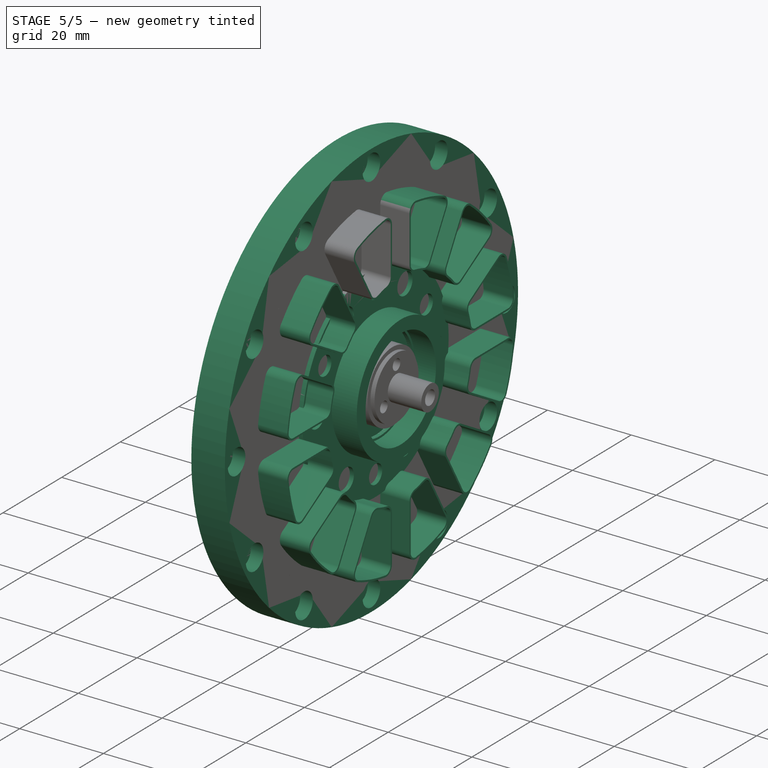
[diagram: stage 5 of 5 — iso view after this stage's code; geometry added in this stage tinted green]
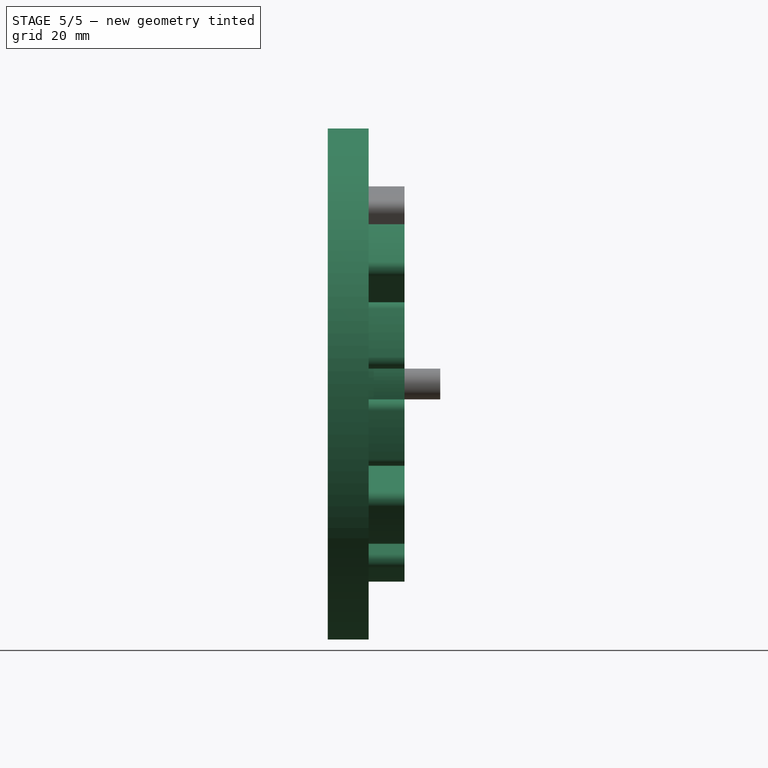
[diagram: stage 5 of 5 — front view after this stage's code; geometry added in this stage tinted green]
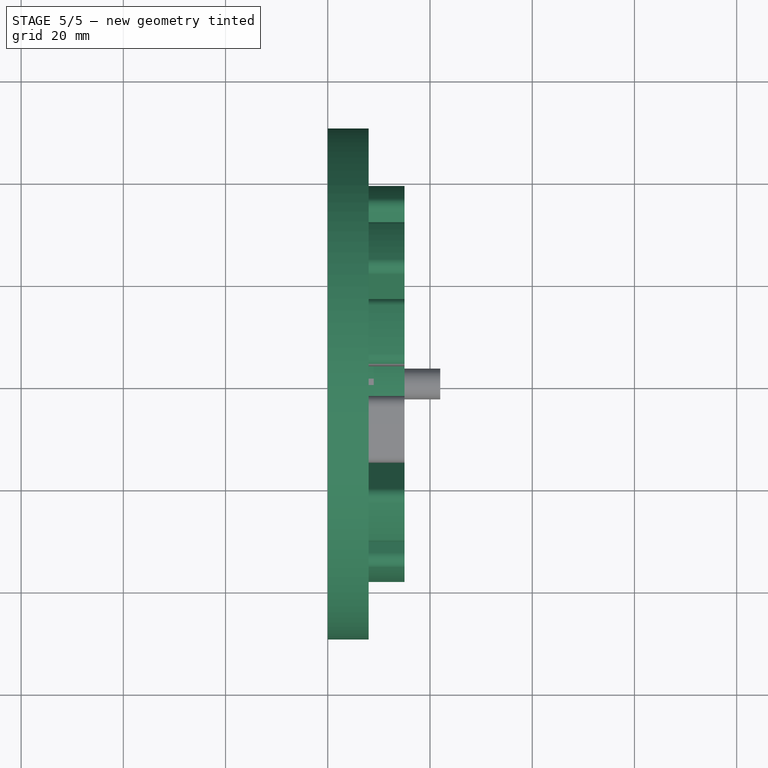
[diagram: stage 5 of 5 — top view after this stage's code; geometry added in this stage tinted green]
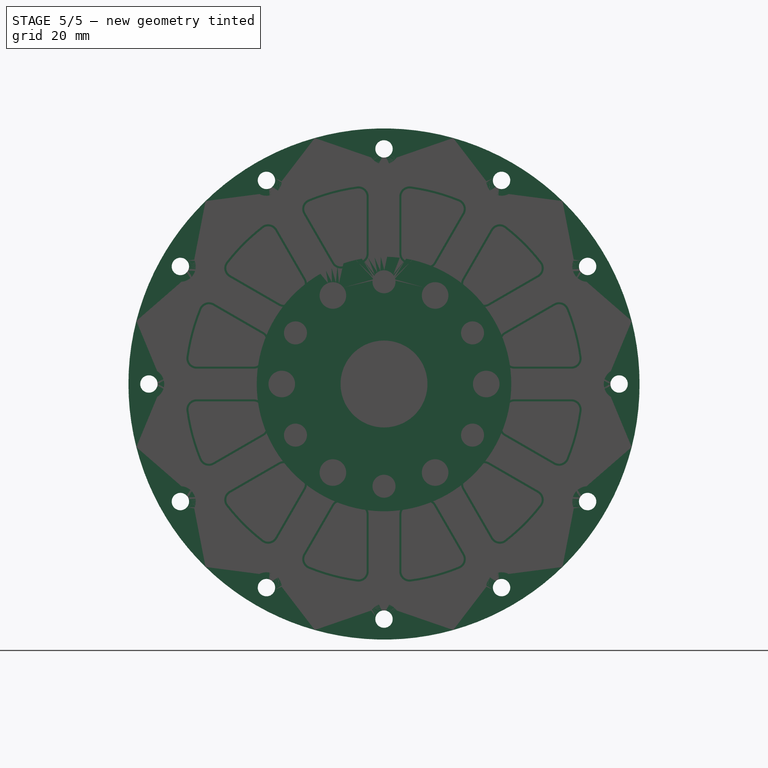
[diagram: stage 5 of 5 — right view after this stage's code; geometry added in this stage tinted green]
FEATURE [Sketcher::SketchObject] Sketch014
  ArcFitTolerance = 1e-06
  AttachmentSupport = -> [YZ_Plane016]
  FullyConstrained = true
  MakeInternals = false
  MapMode = 5
  Placement = pos=(0,0,0) rot=(0.57735,0.57735,0.57735;2.0944rad)
  sketch-geometry (23):
    g0: Circle CenterX=0 CenterY=-3.6e-15 CenterZ=0 NormalX=0 NormalY=0 NormalZ=1 AngleXU=0 Radius=50
    g1: Circle CenterX=0 CenterY=-3.6e-15 CenterZ=0 NormalX=0 NormalY=0 NormalZ=1 AngleXU=0 Radius=31
    g2: Circle [constr] CenterX=0 CenterY=-3.6e-15 CenterZ=0 NormalX=0 NormalY=0 NormalZ=1 AngleXU=0 Radius=46
    g3: Circle CenterX=46 CenterY=0 CenterZ=0 NormalX=0 NormalY=0 NormalZ=1 AngleXU=0 Radius=1.7
    g4: Circle CenterX=-46 CenterY=0 CenterZ=0 NormalX=0 NormalY=0 NormalZ=1 AngleXU=0 Radius=1.7
    g5: Circle CenterX=0 CenterY=-46 CenterZ=0 NormalX=0 NormalY=0 NormalZ=1 AngleXU=0 Radius=1.7
    g6: Circle CenterX=0 CenterY=46 CenterZ=0 NormalX=0 NormalY=0 NormalZ=1 AngleXU=0 Radius=1.7
    g7: Circle CenterX=-39.8372 CenterY=23 CenterZ=0 NormalX=0 NormalY=0 NormalZ=1 AngleXU=0 Radius=1.7
    g8: Circle CenterX=-23 CenterY=39.8372 CenterZ=0 NormalX=0 NormalY=0 NormalZ=1 AngleXU=0 Radius=1.7
    g9: Circle CenterX=39.8372 CenterY=23 CenterZ=0 NormalX=0 NormalY=0 NormalZ=1 AngleXU=0 Radius=1.7
    g10: Circle CenterX=39.8372 CenterY=-23 CenterZ=0 NormalX=0 NormalY=0 NormalZ=1 AngleXU=0 Radius=1.7
    g11: Circle CenterX=23 CenterY=-39.8372 CenterZ=0 NormalX=0 NormalY=0 NormalZ=1 AngleXU=0 Radius=1.7
    g12: Circle CenterX=23 CenterY=39.8372 CenterZ=0 NormalX=0 NormalY=0 NormalZ=1 AngleXU=0 Radius=1.7
    g13: Circle CenterX=-23 CenterY=-39.8372 CenterZ=0 NormalX=0 NormalY=0 NormalZ=1 AngleXU=0 Radius=1.7
    g14: Circle CenterX=-39.8372 CenterY=-23 CenterZ=0 NormalX=0 NormalY=0 NormalZ=1 AngleXU=0 Radius=1.7
    g15: LineSegment [constr] StartX=-39.8372 StartY=23 StartZ=0 EndX=0 EndY=-3.6e-15 EndZ=0
    g16: LineSegment [constr] StartX=0 StartY=-3.6e-15 StartZ=0 EndX=39.8372 EndY=-23 EndZ=0
    g17: LineSegment [constr] StartX=0 StartY=-3.6e-15 StartZ=0 EndX=23 EndY=-39.8372 EndZ=0
    g18: LineSegment [constr] StartX=0 StartY=-3.6e-15 StartZ=0 EndX=-23 EndY=-39.8372 EndZ=0
    g19: LineSegment [constr] StartX=-39.8372 StartY=-23 StartZ=0 EndX=0 EndY=-3.6e-15 EndZ=0
    g20: LineSegment [constr] StartX=0 StartY=-3.6e-15 StartZ=0 EndX=-23 EndY=39.8372 EndZ=0
    g21: LineSegment [constr] StartX=0 StartY=-3.6e-15 StartZ=0 EndX=23 EndY=39.8372 EndZ=0
    g22: LineSegment [constr] StartX=0 StartY=-3.6e-15 StartZ=0 EndX=39.8372 EndY=23 EndZ=0
  constraints (58):
    c: Diameter(g0) = 100
    c: Coincident(g0,g-1)
    c: Diameter(g1) = 62
    c: Coincident(g1,g0)
    c: Diameter(g2) = 92
    c: Coincident(g2,g0)
    c: Diameter(g3) = 3.4
    c: PointOnObject(g3,g2)
    c: PointOnObject(g3,g-1)
    c: Diameter(g4) = 3.4
    c: PointOnObject(g4,g2)
    c: PointOnObject(g4,g-1)
    c: Diameter(g5) = 3.4
    c: PointOnObject(g5,g2)
    c: PointOnObject(g5,g-2)
    c: Diameter(g6) = 3.4
    c: PointOnObject(g6,g2)
    c: PointOnObject(g6,g-2)
    c: Diameter(g7) = 3.4
    c: PointOnObject(g7,g2)
    c: Diameter(g8) = 3.4
    c: PointOnObject(g8,g2)
    c: Diameter(g9) = 3.4
    c: PointOnObject(g9,g2)
    c: Diameter(g10) = 3.4
    c: PointOnObject(g10,g2)
    c: Diameter(g11) = 3.4
    c: PointOnObject(g11,g2)
    c: Diameter(g12) = 3.4
    c: PointOnObject(g12,g2)
    c: Diameter(g13) = 3.4
    c: PointOnObject(g13,g2)
    c: Diameter(g14) = 3.4
    c: PointOnObject(g14,g2)
    c: Coincident(g15,g7)
    c: Coincident(g15,g0)
    c: Coincident(g16,g0)
    c: Coincident(g16,g10)
    c: Coincident(g17,g0)
    c: Coincident(g17,g11)
    c: Coincident(g18,g0)
    c: Coincident(g18,g13)
    c: Coincident(g19,g14)
    c: Coincident(g19,g0)
    c: Coincident(g20,g0)
    c: Coincident(g20,g8)
    c: Coincident(g21,g0)
    c: Coincident(g21,g12)
    c: Coincident(g22,g0)
    c: Coincident(g22,g9)
    c: Angle(g-1,g22) = 0.523599
    c: Angle(g22,g21) = 0.523599
    c: Angle(g-2,g20) = 0.523599
    c: Angle(g20,g15) = 0.523599
    c: Angle(g18,g-2) = 0.523599
    c: Angle(g19,g18) = 0.523599
    c: Angle(g16,g-1) = 0.523599
    c: Angle(g17,g16) = 0.523599
FEATURE [PartDesign::Pad] Pad014
  Direction = (1,0,0)
  Length = 8
  Length2 = 10
  Placement = pos=(0,0,0) rot=(1,1,1;2.0944rad)
  Profile = -> Sketch014
  ReferenceAxis = -> Sketch014 [N_Axis]
  Refine = true
  Suppressed = false
  Type = 0
FEATURE [PartDesign::Plane] DatumPlane
  AttachmentSupport = -> [Pad014]
  Length = 119.966
  MapMode = 5
  Placement = pos=(0,0,0) rot=(0.57735,0.57735,-0.57735;4.18879rad)
  ResizeMode = 0
  Width = 119.624
FEATURE [Sketcher::SketchObject] Sketch015
  ArcFitTolerance = 1e-06
  AttachmentSupport = -> [DatumPlane]
  FullyConstrained = true
  MakeInternals = false
  MapMode = 5
  Placement = pos=(0,0,0) rot=(0.57735,0.57735,-0.57735;4.18879rad)
  sketch-geometry (1):
    g0: Circle CenterX=0 CenterY=0 CenterZ=0 NormalX=0 NormalY=0 NormalZ=1 AngleXU=0 Radius=32.6
  constraints (2):
    c: Diameter(g0) = 65.2
    c: Coincident(g0,g-1)
FEATURE [PartDesign::Pocket] Pocket
  BaseFeature = -> Pad014
  Direction = (1,0,0)
  Length = 7
  Length2 = 5
  Placement = pos=(0,0,0) rot=(1,1,1;2.0944rad)
  Profile = -> Sketch015
  ReferenceAxis = -> Sketch015 [N_Axis]
  Refine = true
  Suppressed = false
  Type = 0
FEATURE [Sketcher::SketchObject] Sketch016
  ArcFitTolerance = 1e-06
  AttachmentSupport = -> [DatumPlane]
  FullyConstrained = true
  MakeInternals = false
  MapMode = 5
  Placement = pos=(0,0,0) rot=(0.57735,0.57735,-0.57735;4.18879rad)
  sketch-geometry (13):
    g0: Circle [constr] CenterX=0 CenterY=0 CenterZ=0 NormalX=0 NormalY=0 NormalZ=1 AngleXU=0 Radius=35
    g1: Circle CenterX=0 CenterY=35 CenterZ=0 NormalX=0 NormalY=0 NormalZ=1 AngleXU=0 Radius=2.5
    g2: Circle CenterX=-35 CenterY=0 CenterZ=0 NormalX=0 NormalY=0 NormalZ=1 AngleXU=0 Radius=2.5
    g3: Circle CenterX=0 CenterY=-35 CenterZ=0 NormalX=0 NormalY=0 NormalZ=1 AngleXU=0 Radius=2.5
    g4: Circle CenterX=35 CenterY=0 CenterZ=0 NormalX=0 NormalY=0 NormalZ=1 AngleXU=0 Radius=2.5
    g5: Circle CenterX=24.7487 CenterY=-24.7487 CenterZ=0 NormalX=0 NormalY=0 NormalZ=1 AngleXU=0 Radius=2.5
    g6: Circle CenterX=-24.7487 CenterY=-24.7487 CenterZ=0 NormalX=0 NormalY=0 NormalZ=1 AngleXU=0 Radius=2.5
    g7: Circle CenterX=-24.7487 CenterY=24.7487 CenterZ=0 NormalX=0 NormalY=0 NormalZ=1 AngleXU=0 Radius=2.5
    g8: Circle CenterX=24.7487 CenterY=24.7487 CenterZ=0 NormalX=0 NormalY=0 NormalZ=1 AngleXU=0 Radius=2.5
    g9: LineSegment [constr] StartX=-24.7487 StartY=24.7487 StartZ=0 EndX=0 EndY=0 EndZ=0
    g10: LineSegment [constr] StartX=0 StartY=0 StartZ=0 EndX=24.7487 EndY=24.7487 EndZ=0
    g11: LineSegment [constr] StartX=24.7487 StartY=-24.7487 StartZ=0 EndX=0 EndY=0 EndZ=0
    g12: LineSegment [constr] StartX=0 StartY=0 StartZ=0 EndX=-24.7487 EndY=-24.7487 EndZ=0
  constraints (34):
    c: Diameter(g0) = 70
    c: Coincident(g0,g-1)
    c: Diameter(g1) = 5
    c: PointOnObject(g1,g0)
    c: PointOnObject(g1,g-2)
    c: Diameter(g2) = 5
    c: PointOnObject(g2,g0)
    c: PointOnObject(g2,g-1)
    c: Diameter(g3) = 5
    c: PointOnObject(g3,g0)
    c: PointOnObject(g3,g-2)
    c: Diameter(g4) = 5
    c: PointOnObject(g4,g0)
    c: PointOnObject(g4,g-1)
    c: Diameter(g5) = 5
    c: PointOnObject(g5,g0)
    c: Diameter(g6) = 5
    c: PointOnObject(g6,g0)
    c: Diameter(g7) = 5
    c: PointOnObject(g7,g0)
    c: Diameter(g8) = 5
    c: PointOnObject(g8,g0)
    c: Coincident(g9,g7)
    c: Coincident(g9,g0)
    c: Coincident(g10,g0)
    c: Coincident(g10,g8)
    c: Coincident(g11,g5)
    c: Coincident(g11,g0)
    c: Coincident(g12,g0)
    c: Coincident(g12,g6)
    c: Angle(g12,g-2) = 0.785398
    c: Angle(g11,g-1) = 0.785398
    c: Angle(g-1,g10) = 0.785398
    c: Angle(g-2,g9) = 0.785398
FEATURE [PartDesign::Pocket] Pocket001
  BaseFeature = -> Pocket
  Direction = (1,0,0)
  Length = 7
  Length2 = 5
  Placement = pos=(0,0,0) rot=(1,1,1;2.0944rad)
  Profile = -> Sketch016
  ReferenceAxis = -> Sketch016 [N_Axis]
  Refine = true
  Suppressed = false
  Type = 0
FEATURE [PartDesign::Plane] DatumPlane001
  AttachmentSupport = -> [Pocket001]
  Length = 119.966
  MapMode = 5
  Placement = pos=(8,0,0) rot=(0.57735,0.57735,0.57735;2.0944rad)
  ResizeMode = 0
  Width = 119.624
FEATURE [Sketcher::SketchObject] Sketch017
  ArcFitTolerance = 1e-06
  AttachmentSupport = -> [DatumPlane001]
  FullyConstrained = true
  MakeInternals = false
  MapMode = 5
  Placement = pos=(8,0,0) rot=(0.57735,0.57735,0.57735;2.0944rad)
  sketch-geometry (21):
    g0: Circle [constr] CenterX=0 CenterY=0 CenterZ=0 NormalX=0 NormalY=0 NormalZ=1 AngleXU=0 Radius=46
    g1: Circle CenterX=-46 CenterY=0 CenterZ=0 NormalX=0 NormalY=0 NormalZ=1 AngleXU=0 Radius=3
    g2: Circle CenterX=46 CenterY=0 CenterZ=0 NormalX=0 NormalY=0 NormalZ=1 AngleXU=0 Radius=3
    g3: Circle CenterX=0 CenterY=-46 CenterZ=0 NormalX=0 NormalY=0 NormalZ=1 AngleXU=0 Radius=3
    g4: Circle CenterX=0 CenterY=46 CenterZ=0 NormalX=0 NormalY=0 NormalZ=1 AngleXU=0 Radius=3
    g5: Circle CenterX=-39.8372 CenterY=-23 CenterZ=0 NormalX=0 NormalY=0 NormalZ=1 AngleXU=0 Radius=3
    g6: Circle CenterX=-23 CenterY=-39.8372 CenterZ=0 NormalX=0 NormalY=0 NormalZ=1 AngleXU=0 Radius=3
    g7: Circle CenterX=23 CenterY=-39.8372 CenterZ=0 NormalX=0 NormalY=0 NormalZ=1 AngleXU=0 Radius=3
    g8: Circle CenterX=39.8372 CenterY=-23 CenterZ=0 NormalX=0 NormalY=0 NormalZ=1 AngleXU=0 Radius=3
    g9: Circle CenterX=39.8372 CenterY=23 CenterZ=0 NormalX=0 NormalY=0 NormalZ=1 AngleXU=0 Radius=3
    g10: Circle CenterX=23 CenterY=39.8372 CenterZ=0 NormalX=0 NormalY=0 NormalZ=1 AngleXU=0 Radius=3
    g11: Circle CenterX=-23 CenterY=39.8372 CenterZ=0 NormalX=0 NormalY=0 NormalZ=1 AngleXU=0 Radius=3
    g12: Circle CenterX=-39.8372 CenterY=23 CenterZ=0 NormalX=0 NormalY=0 NormalZ=1 AngleXU=0 Radius=3
    g13: LineSegment [constr] StartX=-39.8372 StartY=-23 StartZ=0 EndX=0 EndY=0 EndZ=0
    g14: LineSegment [constr] StartX=-23 StartY=-39.8372 StartZ=0 EndX=0 EndY=0 EndZ=0
    g15: LineSegment [constr] StartX=23 StartY=-39.8372 StartZ=0 EndX=0 EndY=0 EndZ=0
    g16: LineSegment [constr] StartX=0 StartY=0 StartZ=0 EndX=39.8372 EndY=-23 EndZ=0
    g17: LineSegment [constr] StartX=39.8372 StartY=23 StartZ=0 EndX=0 EndY=0 EndZ=0
    g18: LineSegment [constr] StartX=23 StartY=39.8372 StartZ=0 EndX=0 EndY=0 EndZ=0
    g19: LineSegment [constr] StartX=-23 StartY=39.8372 StartZ=0 EndX=0 EndY=0 EndZ=0
    g20: LineSegment [constr] StartX=-39.8372 StartY=23 StartZ=0 EndX=0 EndY=0 EndZ=0
  constraints (54):
    c: Diameter(g0) = 92
    c: Coincident(g0,g-1)
    c: Diameter(g1) = 6
    c: PointOnObject(g1,g0)
    c: PointOnObject(g1,g-1)
    c: Diameter(g2) = 6
    c: PointOnObject(g2,g0)
    c: PointOnObject(g2,g-1)
    c: Diameter(g3) = 6
    c: PointOnObject(g3,g0)
    c: PointOnObject(g3,g-2)
    c: Diameter(g4) = 6
    c: PointOnObject(g4,g0)
    c: PointOnObject(g4,g-2)
    c: Diameter(g5) = 6
    c: PointOnObject(g5,g0)
    c: Diameter(g6) = 6
    c: PointOnObject(g6,g0)
    c: Diameter(g7) = 6
    c: PointOnObject(g7,g0)
    c: Diameter(g8) = 6
    c: PointOnObject(g8,g0)
    c: Diameter(g9) = 6
    c: PointOnObject(g9,g0)
    c: Diameter(g10) = 6
    c: PointOnObject(g10,g0)
    c: Diameter(g11) = 6
    c: PointOnObject(g11,g0)
    c: Diameter(g12) = 6
    c: PointOnObject(g12,g0)
    c: Coincident(g13,g5)
    c: Coincident(g13,g0)
    c: Coincident(g14,g6)
    c: Coincident(g14,g0)
    c: Coincident(g15,g7)
    c: Coincident(g15,g0)
    c: Coincident(g16,g0)
    c: Coincident(g16,g8)
    c: Coincident(g17,g9)
    c: Coincident(g17,g0)
    c: Coincident(g18,g10)
    c: Coincident(g18,g0)
    c: Coincident(g19,g11)
    c: Coincident(g19,g0)
    c: Coincident(g20,g12)
    c: Coincident(g20,g0)
    c: Angle(g-1,g17) = 0.523599
    c: Angle(g17,g18) = 0.523599
    c: Angle(g-2,g19) = 0.523599
    c: Angle(g19,g20) = 0.523599
    c: Angle(g-1,g13) = 0.523599
    c: Angle(g13,g14) = 0.523599
    c: Angle(g-2,g15) = 0.523599
    c: Angle(g15,g16) = 0.523599
FEATURE [PartDesign::Pocket] Pocket002
  BaseFeature = -> Pocket001
  Direction = (-1,0,0)
  Length = 4
  Length2 = 5
  Placement = pos=(0,0,0) rot=(1,1,1;2.0944rad)
  Profile = -> Sketch017
  ReferenceAxis = -> Sketch017 [N_Axis]
  Refine = true
  Suppressed = false
  Type = 0
FEATURE [PartDesign::Body] Body014
  AllowCompound = false
  Group = -> [Sketch014,Pad014,DatumPlane,Sketch015,Pocket,Sketch016,Pocket001,DatumPlane001,Sketch017,Pocket002]
  Origin = -> Origin016
  Tip = -> Pocket002
FEATURE [App::Part] Part001  label="front-plate"
  Group = -> [Body014]
  Origin = -> Origin015
FEATURE [Sketcher::SketchObject] Sketch018
  ArcFitTolerance = 1e-06
  AttachmentSupport = -> [YZ_Plane018]
  FullyConstrained = true
  MakeInternals = false
  MapMode = 5
  Placement = pos=(0,0,0) rot=(0.57735,0.57735,0.57735;2.0944rad)
  sketch-geometry (1):
    g0: Circle CenterX=0 CenterY=0 CenterZ=0 NormalX=0 NormalY=0 NormalZ=1 AngleXU=0 Radius=2
  constraints (2):
    c: Diameter(g0) = 4
    c: Coincident(g0,g-1)
FEATURE [PartDesign::Pad] Pad015
  Direction = (1,0,0)
  Length = 1.8
  Length2 = 10
  Placement = pos=(0,0,0) rot=(1,1,1;2.0944rad)
  Profile = -> Sketch018
  ReferenceAxis = -> Sketch018 [N_Axis]
  Refine = true
  Suppressed = false
  Type = 0
FEATURE [Part::Feature] Part__Feature  label="MagneticEncoder_AS5600"
  Placement = pos=(-28.5,6.3e-15,0) rot=(-0.357407,-0.357407,-0.862856;1.71777rad)
  shape: bbox 11.3 x 30.87 x 30.87 mm, 247 faces (baked)
FEATURE [Sketcher::SketchObject] Sketch020
  ArcFitTolerance = 1e-06
  AttachmentSupport = -> [YZ_Plane022]
  FullyConstrained = true
  MakeInternals = false
  MapMode = 5
  Placement = pos=(0,0,0) rot=(0.57735,0.57735,0.57735;2.0944rad)
  sketch-geometry (28):
    g0: Circle CenterX=0 CenterY=0 CenterZ=0 NormalX=0 NormalY=0 NormalZ=1 AngleXU=0 Radius=27
    g1: Circle [constr] CenterX=0 CenterY=0 CenterZ=0 NormalX=0 NormalY=0 NormalZ=1 AngleXU=0 Radius=5
    g2: Circle CenterX=0 CenterY=5 CenterZ=0 NormalX=0 NormalY=0 NormalZ=1 AngleXU=0 Radius=1.5
    g3: Circle CenterX=-4.33013 CenterY=-2.5 CenterZ=0 NormalX=0 NormalY=0 NormalZ=1 AngleXU=0 Radius=1.5
    g4: Circle CenterX=4.33013 CenterY=-2.5 CenterZ=0 NormalX=0 NormalY=0 NormalZ=1 AngleXU=0 Radius=1.5
    g5: LineSegment [constr] StartX=-4.33013 StartY=-2.5 StartZ=0 EndX=0 EndY=0 EndZ=0
    g6: LineSegment [constr] StartX=0 StartY=0 StartZ=0 EndX=4.33013 EndY=-2.5 EndZ=0
    g7: Circle [constr] CenterX=0 CenterY=0 CenterZ=0 NormalX=0 NormalY=0 NormalZ=1 AngleXU=0 Radius=20
    g8: Circle CenterX=0 CenterY=20 CenterZ=0 NormalX=0 NormalY=0 NormalZ=1 AngleXU=0 Radius=2.25
    g9: Circle CenterX=0 CenterY=-20 CenterZ=0 NormalX=0 NormalY=0 NormalZ=1 AngleXU=0 Radius=2.25
    g10: Circle CenterX=17.3205 CenterY=-10 CenterZ=0 NormalX=0 NormalY=0 NormalZ=1 AngleXU=0 Radius=2.25
    g11: Circle CenterX=-17.3205 CenterY=-10 CenterZ=0 NormalX=0 NormalY=0 NormalZ=1 AngleXU=0 Radius=2.25
    g12: Circle CenterX=-17.3205 CenterY=10 CenterZ=0 NormalX=0 NormalY=0 NormalZ=1 AngleXU=0 Radius=2.25
    g13: Circle CenterX=17.3205 CenterY=10 CenterZ=0 NormalX=0 NormalY=0 NormalZ=1 AngleXU=0 Radius=2.25
    g14: LineSegment [constr] StartX=0 StartY=0 StartZ=0 EndX=-17.3205 EndY=-10 EndZ=0
    g15: LineSegment [constr] StartX=0 StartY=0 StartZ=0 EndX=-17.3205 EndY=10 EndZ=0
    g16: LineSegment [constr] StartX=0 StartY=0 StartZ=0 EndX=17.3205 EndY=10 EndZ=0
    g17: LineSegment [constr] StartX=17.3205 StartY=-10 StartZ=0 EndX=0 EndY=0 EndZ=0
    g18: Circle CenterX=20 CenterY=0 CenterZ=0 NormalX=0 NormalY=0 NormalZ=1 AngleXU=0 Radius=2.6
    g19: Circle CenterX=-20 CenterY=0 CenterZ=0 NormalX=0 NormalY=0 NormalZ=1 AngleXU=0 Radius=2.6
    g20: Circle CenterX=-10 CenterY=-17.3205 CenterZ=0 NormalX=0 NormalY=0 NormalZ=1 AngleXU=0 Radius=2.6
    g21: Circle CenterX=10 CenterY=-17.3205 CenterZ=0 NormalX=0 NormalY=0 NormalZ=1 AngleXU=0 Radius=2.6
    g22: Circle CenterX=10 CenterY=17.3205 CenterZ=0 NormalX=0 NormalY=0 NormalZ=1 AngleXU=0 Radius=2.6
    g23: Circle CenterX=-10 CenterY=17.3205 CenterZ=0 NormalX=0 NormalY=0 NormalZ=1 AngleXU=0 Radius=2.6
    g24: LineSegment [constr] StartX=-10 StartY=17.3205 StartZ=0 EndX=0 EndY=0 EndZ=0
    g25: LineSegment [constr] StartX=10 StartY=17.3205 StartZ=0 EndX=0 EndY=0 EndZ=0
    g26: LineSegment [constr] StartX=0 StartY=0 StartZ=0 EndX=-10 EndY=-17.3205 EndZ=0
    g27: LineSegment [constr] StartX=0 StartY=0 StartZ=0 EndX=10 EndY=-17.3205 EndZ=0
  constraints (71):
    c: Diameter(g0) = 54
    c: Coincident(g0,g-1)
    c: Diameter(g1) = 10
    c: Coincident(g1,g0)
    c: Diameter(g2) = 3
    c: PointOnObject(g2,g1)
    c: PointOnObject(g2,g-2)
    c: Diameter(g3) = 3
    c: PointOnObject(g3,g1)
    c: Diameter(g4) = 3
    c: Coincident(g5,g3)
    c: Coincident(g5,g0)
    c: Coincident(g6,g0)
    c: Coincident(g6,g4)
    c: Angle(g6,g-1) = 0.523599
    c: PointOnObject(g4,g1)
    c: Angle(g-1,g5) = 0.523599
    c: Diameter(g7) = 40
    c: Coincident(g7,g0)
    c: Diameter(g8) = 4.5
    c: PointOnObject(g8,g7)
    c: Diameter(g9) = 4.5
    c: PointOnObject(g9,g7)
    c: Diameter(g10) = 4.5
    c: PointOnObject(g10,g7)
    c: Diameter(g11) = 4.5
    c: PointOnObject(g11,g7)
    c: Diameter(g12) = 4.5
    c: PointOnObject(g12,g7)
    c: Diameter(g13) = 4.5
    c: PointOnObject(g13,g7)
    c: Coincident(g14,g0)
    c: Coincident(g14,g11)
    c: Coincident(g15,g0)
    c: Coincident(g15,g12)
    c: Coincident(g16,g0)
    c: Coincident(g16,g13)
    c: Coincident(g17,g10)
    c: Coincident(g17,g0)
    c: PointOnObject(g8,g-2)
    c: PointOnObject(g9,g-2)
    c: Diameter(g18) = 5.2
    c: PointOnObject(g18,g7)
    c: Diameter(g19) = 5.2
    c: PointOnObject(g19,g7)
    c: Diameter(g20) = 5.2
    c: PointOnObject(g20,g7)
    c: Diameter(g21) = 5.2
    c: PointOnObject(g21,g7)
    c: Diameter(g22) = 5.2
    c: PointOnObject(g22,g7)
    c: Diameter(g23) = 5.2
    c: PointOnObject(g23,g7)
    c: PointOnObject(g19,g-1)
    c: PointOnObject(g18,g-1)
    c: Coincident(g24,g23)
    c: Coincident(g24,g0)
    c: Coincident(g25,g22)
    c: Coincident(g25,g0)
    c: Coincident(g26,g0)
    c: Coincident(g26,g20)
    c: Coincident(g27,g0)
    c: Coincident(g27,g21)
    c: Angle(g-2,g27) = 0.523599
    c: Angle(g27,g17) = 0.523599
    c: Angle(g26,g-2) = 0.523599
    c: Angle(g14,g26) = 0.523599
    c: Angle(g15,g-1) = 0.523599
    c: Angle(g24,g15) = 0.523599
    c: Angle(g25,g-2) = 0.523599
    c: Angle(g16,g25) = 0.523599
FEATURE [PartDesign::Pad] Pad017
  Direction = (1,0,0)
  Length = 9
  Length2 = 10
  Placement = pos=(0,0,0) rot=(1,1,1;2.0944rad)
  Profile = -> Sketch020
  ReferenceAxis = -> Sketch020 [N_Axis]
  Refine = true
  Suppressed = false
  Type = 0
FEATURE [PartDesign::Plane] DatumPlane002
  AttachmentSupport = -> [Pad017]
  Length = 64.6881
  MapMode = 5
  Placement = pos=(9,0,0) rot=(0.57735,0.57735,0.57735;2.0944rad)
  ResizeMode = 0
  Width = 64.7368
FEATURE [Sketcher::SketchObject] Sketch021
  ArcFitTolerance = 1e-06
  AttachmentSupport = -> [DatumPlane002]
  FullyConstrained = true
  MakeInternals = false
  MapMode = 5
  Placement = pos=(9,0,0) rot=(0.57735,0.57735,0.57735;2.0944rad)
  sketch-geometry (2):
    g0: Circle CenterX=0 CenterY=0 CenterZ=0 NormalX=0 NormalY=0 NormalZ=1 AngleXU=0 Radius=24.9
    g1: Circle CenterX=0 CenterY=0 CenterZ=0 NormalX=0 NormalY=0 NormalZ=1 AngleXU=0 Radius=30
  constraints (4):
    c: Diameter(g0) = 49.8
    c: Coincident(g0,g-1)
    c: Diameter(g1) = 60
    c: Coincident(g1,g0)
FEATURE [PartDesign::Pocket] Pocket003
  BaseFeature = -> Pad017
  Direction = (-1,0,0)
  Length = 8
  Length2 = 5
  Placement = pos=(0,0,0) rot=(1,1,1;2.0944rad)
  Profile = -> Sketch021
  ReferenceAxis = -> Sketch021 [N_Axis]
  Refine = true
  Suppressed = false
  Type = 0
FEATURE [Sketcher::SketchObject] Sketch022
  ArcFitTolerance = 1e-06
  AttachmentSupport = -> [DatumPlane002]
  FullyConstrained = true
  MakeInternals = false
  MapMode = 5
  Placement = pos=(9,0,0) rot=(0.57735,0.57735,0.57735;2.0944rad)
  sketch-geometry (6):
    g0: Circle [constr] CenterX=0 CenterY=0 CenterZ=0 NormalX=0 NormalY=0 NormalZ=1 AngleXU=0 Radius=5
    g1: Circle CenterX=0 CenterY=5 CenterZ=0 NormalX=0 NormalY=0 NormalZ=1 AngleXU=0 Radius=3
    g2: Circle CenterX=4.33013 CenterY=-2.5 CenterZ=0 NormalX=0 NormalY=0 NormalZ=1 AngleXU=0 Radius=3
    g3: Circle CenterX=-4.33013 CenterY=-2.5 CenterZ=0 NormalX=0 NormalY=0 NormalZ=1 AngleXU=0 Radius=3
    g4: LineSegment [constr] StartX=-4.33013 StartY=-2.5 StartZ=0 EndX=0 EndY=4e-16 EndZ=0
    g5: LineSegment [constr] StartX=0 StartY=0 StartZ=0 EndX=4.33013 EndY=-2.5 EndZ=0
  constraints (15):
    c: Diameter(g0) = 10
    c: Coincident(g0,g-1)
    c: Diameter(g1) = 6
    c: PointOnObject(g1,g0)
    c: PointOnObject(g1,g-2)
    c: Diameter(g2) = 6
    c: PointOnObject(g2,g0)
    c: Diameter(g3) = 6
    c: PointOnObject(g3,g0)
    c: Coincident(g4,g3)
    c: Coincident(g4,g0)
    c: Coincident(g5,g0)
    c: Coincident(g5,g2)
    c: Angle(g5,g-1) = 0.523599
    c: Angle(g-1,g4) = 0.523599
FEATURE [PartDesign::Pocket] Pocket004
  BaseFeature = -> Pocket003
  Direction = (-1,0,0)
  Length = 4
  Length2 = 5
  Placement = pos=(0,0,0) rot=(1,1,1;2.0944rad)
  Profile = -> Sketch022
  ReferenceAxis = -> Sketch022 [N_Axis]
  Refine = true
  Suppressed = false
  Type = 0
FEATURE [PartDesign::Body] Body017
  AllowCompound = false
  Group = -> [Sketch020,Pad017,DatumPlane002,Sketch021,Pocket003,Sketch022,Pocket004]
  Origin = -> Origin022
  Tip = -> Pocket004
FEATURE [App::Part] Part004  label="output-shaft"
  Group = -> [Body017]
  Origin = -> Origin021
  Placement = pos=(-1,0,0) rot=(0,0,1;0rad)
FEATURE [Sketcher::SketchObject] Sketch023
  ArcFitTolerance = 1e-06
  AttachmentSupport = -> [YZ_Plane024]
  FullyConstrained = true
  MakeInternals = false
  MapMode = 5
  Placement = pos=(0,0,0) rot=(0.57735,0.57735,0.57735;2.0944rad)
  sketch-geometry (4):
    g0: ArcOfCircle CenterX=0 CenterY=0 CenterZ=0 NormalX=0 NormalY=0 NormalZ=1 AngleXU=0 Radius=39 StartAngle=1.5708 EndAngle=2.0944
    g1: ArcOfCircle CenterX=0 CenterY=0 CenterZ=0 NormalX=0 NormalY=0 NormalZ=1 AngleXU=0 Radius=24 StartAngle=1.5708 EndAngle=2.0944
    g2: LineSegment StartX=1.5e-15 StartY=24 StartZ=0 EndX=2.4e-15 EndY=39 EndZ=0
    g3: LineSegment StartX=-19.5 StartY=33.775 StartZ=0 EndX=-12 EndY=20.7846 EndZ=0
  constraints (13):
    c: Angle(g0) = 0.523599
    c: PointOnObject(g0,g-2)
    c: Radius(g0) = 39
    c: Angle(g1) = 0.523599
    c: Coincident(g1,g-1)
    c: PointOnObject(g1,g-2)
    c: Radius(g1) = 24
    c: PointOnObject(g0,g-1)
    c: PointOnObject(g0,g-2)
    c: Coincident(g2,g1)
    c: Coincident(g2,g0)
    c: Coincident(g3,g0)
    c: Coincident(g3,g1)
FEATURE [PartDesign::Pad] Pad018
  Direction = (1,0,0)
  Length = 12
  Length2 = 10
  Placement = pos=(0,0,0) rot=(1,1,1;2.0944rad)
  Profile = -> Sketch023
  ReferenceAxis = -> Sketch023 [N_Axis]
  Refine = true
  Suppressed = false
  Type = 0
FEATURE [Sketcher::SketchObject] Sketch024
  ArcFitTolerance = 1e-06
  AttachmentSupport = -> [YZ_Plane025]
  FullyConstrained = true
  MakeInternals = false
  MapMode = 5
  Placement = pos=(0,0,0) rot=(0.57735,0.57735,0.57735;2.0944rad)
  sketch-geometry (4):
    g0: LineSegment StartX=-3 StartY=40 StartZ=0 EndX=-3 EndY=20 EndZ=0
    g1: LineSegment StartX=-3 StartY=20 StartZ=0 EndX=3 EndY=20 EndZ=0
    g2: LineSegment StartX=3 StartY=20 StartZ=0 EndX=3 EndY=40 EndZ=0
    g3: LineSegment StartX=3 StartY=40 StartZ=0 EndX=-3 EndY=40 EndZ=0
  constraints (11):
    c: Coincident(g0,g1)
    c: Coincident(g1,g2)
    c: Coincident(g2,g3)
    c: Coincident(g3,g0)
    c: Vertical(g0)
    c: Vertical(g2)
    c: Horizontal(g1)
    c: Symmetric(g2,g0,g-2)
    c: DistanceX(g3,g3) = 6
    c: DistanceY(g0,g0) = 20
    c: DistanceY(g-1,g0) = 20
FEATURE [PartDesign::Pad] Pad019
  Direction = (1,0,0)
  Length = 12
  Length2 = 10
  Placement = pos=(0,0,0) rot=(1,1,1;2.0944rad)
  Profile = -> Sketch024
  ReferenceAxis = -> Sketch024 [N_Axis]
  Refine = true
  Suppressed = false
  Type = 0
FEATURE [PartDesign::Body] Body019
  AllowCompound = false
  Group = -> [Sketch024,Pad019]
  Origin = -> Origin025
  Tip = -> Pad019
FEATURE [Sketcher::SketchObject] Sketch025
  ArcFitTolerance = 1e-06
  AttachmentSupport = -> [YZ_Plane026]
  FullyConstrained = true
  MakeInternals = false
  MapMode = 5
  Placement = pos=(0,0,0) rot=(0.57735,0.57735,0.57735;2.0944rad)
  sketch-geometry (4):
    g0: LineSegment StartX=-3 StartY=40 StartZ=0 EndX=-3 EndY=20 EndZ=0
    g1: LineSegment StartX=-3 StartY=20 StartZ=0 EndX=3 EndY=20 EndZ=0
    g2: LineSegment StartX=3 StartY=20 StartZ=0 EndX=3 EndY=40 EndZ=0
    g3: LineSegment StartX=3 StartY=40 StartZ=0 EndX=-3 EndY=40 EndZ=0
  constraints (11):
    c: Coincident(g0,g1)
    c: Coincident(g1,g2)
    c: Coincident(g2,g3)
    c: Coincident(g3,g0)
    c: Vertical(g0)
    c: Vertical(g2)
    c: Horizontal(g1)
    c: Symmetric(g2,g0,g-2)
    c: DistanceX(g3,g3) = 6
    c: DistanceY(g0,g0) = 20
    c: DistanceY(g-1,g0) = 20
FEATURE [PartDesign::Pad] Pad020
  Direction = (1,0,0)
  Length = 12
  Length2 = 10
  Placement = pos=(0,0,0) rot=(1,1,1;2.0944rad)
  Profile = -> Sketch025
  ReferenceAxis = -> Sketch025 [N_Axis]
  Refine = true
  Suppressed = false
  Type = 0
FEATURE [PartDesign::Body] Body020
  AllowCompound = false
  Group = -> [Sketch025,Pad020]
  Origin = -> Origin026
  Placement = pos=(0,0,0) rot=(-1,0,0;5.75959rad)
  Tip = -> Pad020
FEATURE [Sketcher::SketchObject] Sketch
  ArcFitTolerance = 1e-06
  AttachmentSupport = -> [YZ_Plane]
  FullyConstrained = true
  MakeInternals = false
  MapMode = 5
  Placement = pos=(0,0,0) rot=(0.57735,0.57735,0.57735;2.0944rad)
  sketch-geometry (31):
    g0: Circle CenterX=0 CenterY=-7.1e-15 CenterZ=0 NormalX=0 NormalY=0 NormalZ=1 AngleXU=0 Radius=11.5
    g1: Circle CenterX=0 CenterY=-7.1e-15 CenterZ=0 NormalX=0 NormalY=0 NormalZ=1 AngleXU=0 Radius=50
    g2: Circle [constr] CenterX=0 CenterY=-7.1e-15 CenterZ=0 NormalX=0 NormalY=0 NormalZ=1 AngleXU=0 Radius=46
    g3: Circle CenterX=0 CenterY=46 CenterZ=0 NormalX=0 NormalY=0 NormalZ=1 AngleXU=0 Radius=1.7
    g4: Circle CenterX=23 CenterY=39.8372 CenterZ=0 NormalX=0 NormalY=0 NormalZ=1 AngleXU=0 Radius=1.7
    g5: Circle CenterX=39.8372 CenterY=23 CenterZ=0 NormalX=0 NormalY=0 NormalZ=1 AngleXU=0 Radius=1.7
    g6: Circle CenterX=46 CenterY=0 CenterZ=0 NormalX=0 NormalY=0 NormalZ=1 AngleXU=0 Radius=1.7
    g7: Circle CenterX=39.8372 CenterY=-23 CenterZ=0 NormalX=0 NormalY=0 NormalZ=1 AngleXU=0 Radius=1.7
    g8: Circle CenterX=23 CenterY=-39.8372 CenterZ=0 NormalX=0 NormalY=0 NormalZ=1 AngleXU=0 Radius=1.7
    g9: Circle CenterX=0 CenterY=-46 CenterZ=0 NormalX=0 NormalY=0 NormalZ=1 AngleXU=0 Radius=1.7
    g10: Circle CenterX=-23 CenterY=-39.8372 CenterZ=0 NormalX=0 NormalY=0 NormalZ=1 AngleXU=0 Radius=1.7
    g11: Circle CenterX=-39.8372 CenterY=-23 CenterZ=0 NormalX=0 NormalY=0 NormalZ=1 AngleXU=0 Radius=1.7
    g12: Circle CenterX=-46 CenterY=0 CenterZ=0 NormalX=0 NormalY=0 NormalZ=1 AngleXU=0 Radius=1.7
    g13: Circle CenterX=-39.8372 CenterY=23 CenterZ=0 NormalX=0 NormalY=0 NormalZ=1 AngleXU=0 Radius=1.7
    g14: Circle CenterX=-23 CenterY=39.8372 CenterZ=0 NormalX=0 NormalY=0 NormalZ=1 AngleXU=0 Radius=1.7
    g15: LineSegment [constr] StartX=-23 StartY=39.8372 StartZ=0 EndX=0 EndY=-7.1e-15 EndZ=0
    g16: LineSegment [constr] StartX=-39.8372 StartY=23 StartZ=0 EndX=0 EndY=-7.1e-15 EndZ=0
    g17: LineSegment [constr] StartX=-39.8372 StartY=-23 StartZ=0 EndX=0 EndY=-7.1e-15 EndZ=0
    g18: LineSegment [constr] StartX=-23 StartY=-39.8372 StartZ=0 EndX=0 EndY=-7.1e-15 EndZ=0
    g19: LineSegment [constr] StartX=23 StartY=-39.8372 StartZ=0 EndX=0 EndY=-7.1e-15 EndZ=0
    g20: LineSegment [constr] StartX=39.8372 StartY=-23 StartZ=0 EndX=0 EndY=-7.1e-15 EndZ=0
    g21: LineSegment [constr] StartX=39.8372 StartY=23 StartZ=0 EndX=0 EndY=-7.1e-15 EndZ=0
    g22: LineSegment [constr] StartX=23 StartY=39.8372 StartZ=0 EndX=0 EndY=-7.1e-15 EndZ=0
    g23: Circle CenterX=-26.8701 CenterY=3.6e-15 CenterZ=0 NormalX=0 NormalY=0 NormalZ=1 AngleXU=0 Radius=2.25
    g24: Circle CenterX=-3.6e-15 CenterY=-26.8701 CenterZ=0 NormalX=0 NormalY=0 NormalZ=1 AngleXU=0 Radius=2.25
    g25: Circle CenterX=26.8701 CenterY=0 CenterZ=0 NormalX=0 NormalY=0 NormalZ=1 AngleXU=0 Radius=2.25
    g26: Circle CenterX=0 CenterY=26.8701 CenterZ=0 NormalX=0 NormalY=0 NormalZ=1 AngleXU=0 Radius=2.25
    g27: LineSegment [constr] StartX=-26.8701 StartY=3.6e-15 StartZ=0 EndX=0 EndY=26.8701 EndZ=0
    g28: LineSegment [constr] StartX=0 StartY=26.8701 StartZ=0 EndX=26.8701 EndY=0 EndZ=0
    g29: LineSegment [constr] StartX=26.8701 StartY=0 StartZ=0 EndX=-3.6e-15 EndY=-26.8701 EndZ=0
    g30: LineSegment [constr] StartX=-3.6e-15 StartY=-26.8701 StartZ=0 EndX=-26.8701 EndY=3.6e-15 EndZ=0
  constraints (78):
    c: Diameter(g0) = 23
    c: Coincident(g0,g-1)
    c: Diameter(g1) = 100
    c: Coincident(g1,g0)
    c: Diameter(g2) = 92
    c: Coincident(g2,g0)
    c: Diameter(g3) = 3.4
    c: PointOnObject(g3,g2)
    c: Diameter(g4) = 3.4
    c: PointOnObject(g4,g2)
    c: Diameter(g5) = 3.4
    c: PointOnObject(g5,g2)
    c: Diameter(g6) = 3.4
    c: PointOnObject(g6,g2)
    c: Diameter(g7) = 3.4
    c: PointOnObject(g7,g2)
    c: Diameter(g8) = 3.4
    c: PointOnObject(g8,g2)
    c: Diameter(g9) = 3.4
    c: PointOnObject(g9,g2)
    c: Diameter(g10) = 3.4
    c: PointOnObject(g10,g2)
    c: Diameter(g11) = 3.4
    c: PointOnObject(g11,g2)
    c: Diameter(g12) = 3.4
    c: PointOnObject(g12,g2)
    c: Diameter(g13) = 3.4
    c: PointOnObject(g13,g2)
    c: Diameter(g14) = 3.4
    c: PointOnObject(g14,g2)
    c: Coincident(g15,g14)
    c: Coincident(g15,g0)
    c: Coincident(g16,g13)
    c: Coincident(g16,g0)
    c: Coincident(g17,g11)
    c: Coincident(g17,g0)
    c: Coincident(g18,g10)
    c: Coincident(g18,g0)
    c: Coincident(g19,g8)
    c: Coincident(g19,g0)
    c: Coincident(g20,g7)
    c: Coincident(g20,g0)
    c: Coincident(g21,g5)
    c: Coincident(g21,g0)
    c: Coincident(g22,g4)
    c: Coincident(g22,g0)
    c: PointOnObject(g3,g-2)
    c: PointOnObject(g12,g-1)
    c: PointOnObject(g6,g-1)
    c: PointOnObject(g9,g-2)
    c: Angle(g18,g-2) = 0.523599
    c: Angle(g17,g18) = 0.523599
    c: Angle(g-2,g19) = 0.523599
    c: Angle(g19,g20) = 0.523599
    c: Angle(g22,g-2) = 0.523599
    c: Angle(g21,g22) = 0.523599
    c: Angle(g-2,g15) = 0.523599
    c: Angle(g15,g16) = 0.523599
    c: Diameter(g23) = 4.5
    c: PointOnObject(g23,g-1)
    c: Diameter(g24) = 4.5
    c: PointOnObject(g24,g-2)
    c: Diameter(g25) = 4.5
    c: PointOnObject(g25,g-1)
    c: Diameter(g26) = 4.5
    c: PointOnObject(g26,g-2)
    c: Coincident(g27,g23)
    c: Coincident(g27,g26)
    c: Coincident(g28,g26)
    c: Coincident(g28,g25)
    c: Coincident(g29,g25)
    c: Coincident(g29,g24)
    c: Coincident(g30,g24)
    c: Coincident(g30,g23)
    c: Angle(g30,g27) = 1.5708
    c: Angle(g28,g29) = 1.5708
    c: Equal(g27,g29)
    c: Distance(g27,g27) = 38
FEATURE [PartDesign::Pad] Pad
  Direction = (1,0,0)
  Length = 15
  Length2 = 10
  Placement = pos=(0,0,0) rot=(1,1,1;2.0944rad)
  Profile = -> Sketch
  ReferenceAxis = -> Sketch [N_Axis]
  Refine = true
  Suppressed = false
  Type = 0
FEATURE [PartDesign::Plane] DatumPlane004
  AttachmentSupport = -> [Pad]
  Length = 119.966
  MapMode = 5
  Placement = pos=(15,0,0) rot=(0.57735,0.57735,0.57735;2.0944rad)
  ResizeMode = 0
  Width = 119.624
FEATURE [Sketcher::SketchObject] Sketch038
  ArcFitTolerance = 1e-06
  AttachmentSupport = -> [DatumPlane004]
  FullyConstrained = true
  MakeInternals = false
  MapMode = 5
  Placement = pos=(15,0,0) rot=(0.57735,0.57735,0.57735;2.0944rad)
  sketch-geometry (2):
    g0: Circle CenterX=0 CenterY=0 CenterZ=0 NormalX=0 NormalY=0 NormalZ=1 AngleXU=0 Radius=15
    g1: Circle CenterX=0 CenterY=0 CenterZ=0 NormalX=0 NormalY=0 NormalZ=1 AngleXU=0 Radius=50
  constraints (4):
    c: Diameter(g0) = 30
    c: Coincident(g0,g-1)
    c: Diameter(g1) = 100
    c: Coincident(g1,g0)
FEATURE [PartDesign::Pocket] Pocket007
  BaseFeature = -> Pad
  Direction = (-1,0,0)
  Length = 10
  Length2 = 5
  Placement = pos=(0,0,0) rot=(1,1,1;2.0944rad)
  Profile = -> Sketch038
  ReferenceAxis = -> Sketch038 [N_Axis]
  Refine = true
  Suppressed = false
  Type = 0
FEATURE [Sketcher::SketchObject] Sketch039
  ArcFitTolerance = 1e-06
  AttachmentSupport = -> [DatumPlane004]
  FullyConstrained = true
  MakeInternals = false
  MapMode = 5
  Placement = pos=(15,0,0) rot=(0.57735,0.57735,0.57735;2.0944rad)
  sketch-geometry (1):
    g0: Circle CenterX=0 CenterY=0 CenterZ=0 NormalX=0 NormalY=0 NormalZ=1 AngleXU=0 Radius=12
  constraints (2):
    c: Diameter(g0) = 24
    c: Coincident(g0,g-1)
FEATURE [PartDesign::Pocket] Pocket008
  BaseFeature = -> Pocket007
  Direction = (-1,0,0)
  Length = 5
  Length2 = 5
  Placement = pos=(0,0,0) rot=(1,1,1;2.0944rad)
  Profile = -> Sketch039
  ReferenceAxis = -> Sketch039 [N_Axis]
  Refine = true
  Suppressed = false
  Type = 0
FEATURE [PartDesign::Boolean] Boolean
  BaseFeature = -> Pad018
  Group = -> [Body019,Body020]
  Refine = true
  Suppressed = false
  Type = 1
  UsePlacement = true
FEATURE [PartDesign::Fillet] Fillet
  Base = -> Boolean [Edge2,Edge4,Edge12,Edge8]
  BaseFeature = -> Boolean
  Radius = 2
  Refine = true
  SupportTransform = false
  Suppressed = false
  UseAllEdges = false
FEATURE [PartDesign::Thickness] Thickness
  Base = -> Fillet [Face5]
  BaseFeature = -> Fillet
  Intersection = false
  Join = 0
  Mode = 0
  Refine = true
  Reversed = true
  SupportTransform = false
  Suppressed = false
  Value = 0.4
FEATURE [PartDesign::Body] Body018
  AllowCompound = false
  Group = -> [Sketch023,Pad018,Boolean,Fillet,Thickness]
  Origin = -> Origin024
  Placement = pos=(3,0,0) rot=(0,0,1;0rad)
  Tip = -> Thickness
FEATURE [Sketcher::SketchObject] Sketch040
  ArcFitTolerance = 1e-06
  AttachmentSupport = -> [YZ_Plane027]
  FullyConstrained = true
  MakeInternals = false
  MapMode = 5
  Placement = pos=(0,0,0) rot=(0.57735,0.57735,0.57735;2.0944rad)
  sketch-geometry (4):
    g0: ArcOfCircle CenterX=0 CenterY=0 CenterZ=0 NormalX=0 NormalY=0 NormalZ=1 AngleXU=0 Radius=39 StartAngle=1.5708 EndAngle=2.0944
    g1: ArcOfCircle CenterX=0 CenterY=0 CenterZ=0 NormalX=0 NormalY=0 NormalZ=1 AngleXU=0 Radius=24 StartAngle=1.5708 EndAngle=2.0944
    g2: LineSegment StartX=1.5e-15 StartY=24 StartZ=0 EndX=2.4e-15 EndY=39 EndZ=0
    g3: LineSegment StartX=-19.5 StartY=33.775 StartZ=0 EndX=-12 EndY=20.7846 EndZ=0
  constraints (13):
    c: Angle(g0) = 0.523599
    c: PointOnObject(g0,g-2)
    c: Radius(g0) = 39
    c: Angle(g1) = 0.523599
    c: Coincident(g1,g-1)
    c: PointOnObject(g1,g-2)
    c: Radius(g1) = 24
    c: PointOnObject(g0,g-1)
    c: PointOnObject(g0,g-2)
    c: Coincident(g2,g1)
    c: Coincident(g2,g0)
    c: Coincident(g3,g0)
    c: Coincident(g3,g1)
FEATURE [PartDesign::Pad] Pad021
  Direction = (1,0,0)
  Length = 12
  Length2 = 10
  Placement = pos=(0,0,0) rot=(1,1,1;2.0944rad)
  Profile = -> Sketch040
  ReferenceAxis = -> Sketch040 [N_Axis]
  Refine = true
  Suppressed = false
  Type = 0
FEATURE [Sketcher::SketchObject] Sketch041
  ArcFitTolerance = 1e-06
  AttachmentSupport = -> [YZ_Plane028]
  FullyConstrained = true
  MakeInternals = false
  MapMode = 5
  Placement = pos=(0,0,0) rot=(0.57735,0.57735,0.57735;2.0944rad)
  sketch-geometry (4):
    g0: LineSegment StartX=-3 StartY=40 StartZ=0 EndX=-3 EndY=20 EndZ=0
    g1: LineSegment StartX=-3 StartY=20 StartZ=0 EndX=3 EndY=20 EndZ=0
    g2: LineSegment StartX=3 StartY=20 StartZ=0 EndX=3 EndY=40 EndZ=0
    g3: LineSegment StartX=3 StartY=40 StartZ=0 EndX=-3 EndY=40 EndZ=0
  constraints (11):
    c: Coincident(g0,g1)
    c: Coincident(g1,g2)
    c: Coincident(g2,g3)
    c: Coincident(g3,g0)
    c: Vertical(g0)
    c: Vertical(g2)
    c: Horizontal(g1)
    c: Symmetric(g2,g0,g-2)
    c: DistanceX(g3,g3) = 6
    c: DistanceY(g0,g0) = 20
    c: DistanceY(g-1,g0) = 20
FEATURE [PartDesign::Pad] Pad022
  Direction = (1,0,0)
  Length = 12
  Length2 = 10
  Placement = pos=(0,0,0) rot=(1,1,1;2.0944rad)
  Profile = -> Sketch041
  ReferenceAxis = -> Sketch041 [N_Axis]
  Refine = true
  Suppressed = false
  Type = 0
FEATURE [PartDesign::Body] Body022
  AllowCompound = false
  Group = -> [Sketch041,Pad022]
  Origin = -> Origin028
  Tip = -> Pad022
FEATURE [Sketcher::SketchObject] Sketch042
  ArcFitTolerance = 1e-06
  AttachmentSupport = -> [YZ_Plane029]
  FullyConstrained = true
  MakeInternals = false
  MapMode = 5
  Placement = pos=(0,0,0) rot=(0.57735,0.57735,0.57735;2.0944rad)
  sketch-geometry (4):
    g0: LineSegment StartX=-3 StartY=40 StartZ=0 EndX=-3 EndY=20 EndZ=0
    g1: LineSegment StartX=-3 StartY=20 StartZ=0 EndX=3 EndY=20 EndZ=0
    g2: LineSegment StartX=3 StartY=20 StartZ=0 EndX=3 EndY=40 EndZ=0
    g3: LineSegment StartX=3 StartY=40 StartZ=0 EndX=-3 EndY=40 EndZ=0
  constraints (11):
    c: Coincident(g0,g1)
    c: Coincident(g1,g2)
    c: Coincident(g2,g3)
    c: Coincident(g3,g0)
    c: Vertical(g0)
    c: Vertical(g2)
    c: Horizontal(g1)
    c: Symmetric(g2,g0,g-2)
    c: DistanceX(g3,g3) = 6
    c: DistanceY(g0,g0) = 20
    c: DistanceY(g-1,g0) = 20
FEATURE [PartDesign::Pad] Pad023
  Direction = (1,0,0)
  Length = 12
  Length2 = 10
  Placement = pos=(0,0,0) rot=(1,1,1;2.0944rad)
  Profile = -> Sketch042
  ReferenceAxis = -> Sketch042 [N_Axis]
  Refine = true
  Suppressed = false
  Type = 0
FEATURE [PartDesign::Body] Body023
  AllowCompound = false
  Group = -> [Sketch042,Pad023]
  Origin = -> Origin029
  Placement = pos=(0,0,0) rot=(-1,0,0;5.75959rad)
  Tip = -> Pad023
FEATURE [PartDesign::Boolean] Boolean001
  BaseFeature = -> Pad021
  Group = -> [Body022,Body023]
  Refine = true
  Suppressed = false
  Type = 1
  UsePlacement = true
FEATURE [PartDesign::Fillet] Fillet001
  Base = -> Boolean001 [Edge2,Edge4,Edge12,Edge8]
  BaseFeature = -> Boolean001
  Radius = 2
  Refine = true
  SupportTransform = false
  Suppressed = false
  UseAllEdges = false
FEATURE [PartDesign::Thickness] Thickness001
  Base = -> Fillet001 [Face5]
  BaseFeature = -> Fillet001
  Intersection = false
  Join = 0
  Mode = 0
  Refine = true
  Reversed = true
  SupportTransform = false
  Suppressed = false
  Value = 0.4
FEATURE [PartDesign::Body] Body026
  AllowCompound = false
  Group = -> [Sketch045,Pad026]
  Origin = -> Origin032
  Placement = pos=(0,0,0) rot=(-1,0,0;5.75959rad)
  Tip = -> Pad026
FEATURE [PartDesign::Boolean] Boolean002
  BaseFeature = -> Pad024
  Group = -> [Body025,Body026]
  Refine = true
  Suppressed = false
  Type = 1
  UsePlacement = true
FEATURE [PartDesign::Fillet] Fillet002
  Base = -> Boolean002 [Edge2,Edge4,Edge12,Edge8]
  BaseFeature = -> Boolean002
  Radius = 2
  Refine = true
  SupportTransform = false
  Suppressed = false
  UseAllEdges = false
FEATURE [PartDesign::Thickness] Thickness002
  Base = -> Fillet002 [Face5]
  BaseFeature = -> Fillet002
  Intersection = false
  Join = 0
  Mode = 0
  Refine = true
  Reversed = true
  SupportTransform = false
  Suppressed = false
  Value = 0.4
FEATURE [PartDesign::Body] Body051
  AllowCompound = false
  Group = -> [Sketch070,Pad051,Boolean011,Fillet011,Thickness011]
  Origin = -> Origin057
  Placement = pos=(3,0,0) rot=(1,0,0;5.75959rad)
  Tip = -> Thickness011
FEATURE [PartDesign::Boolean] Boolean012
  BaseFeature = -> Pocket008
  Group = -> [Body018,Body021,Body024,Body027,Body030,Body033,Body036,Body039,Body042,Body045,Body048,Body051]
  Refine = true
  Suppressed = false
  Type = 0
  UsePlacement = true
FEATURE [PartDesign::Body] Body066
  AllowCompound = false
  Group = -> [Sketch085,Pad066]
  Origin = -> Origin072
  Placement = pos=(0,0,0) rot=(1,0,0;0.785398rad)
  Tip = -> Pad066
FEATURE [PartDesign::Boolean] Boolean013
  BaseFeature = -> Boolean012
  Group = -> [Body054,Body055,Body056,Body057,Body058,Body059,Body060,Body061,Body062,Body063,Body064,Body065,Body066]
  Refine = true
  Suppressed = false
  Type = 1
  UsePlacement = true
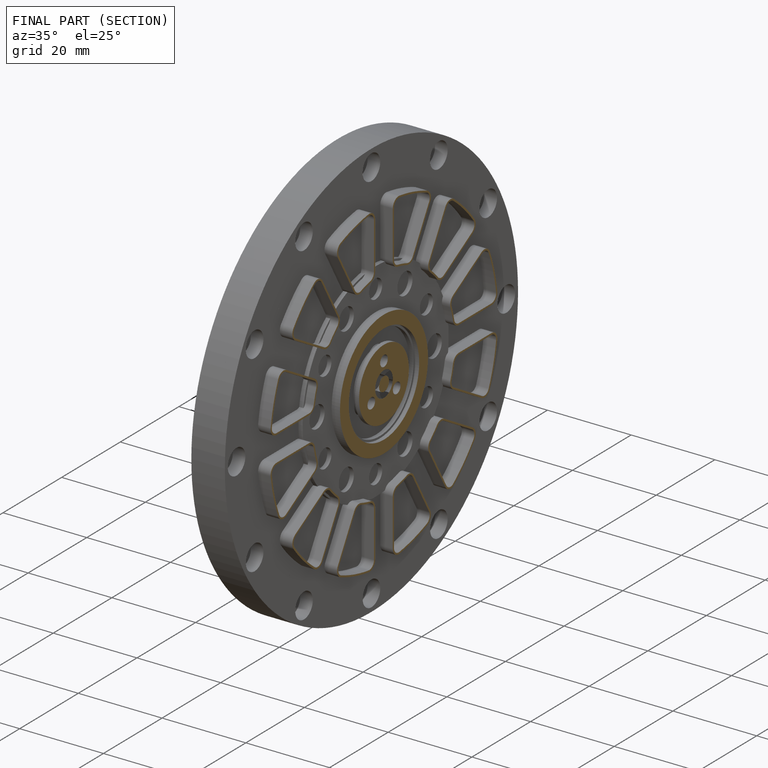
[diagram: finished part — half-section view (interior)]
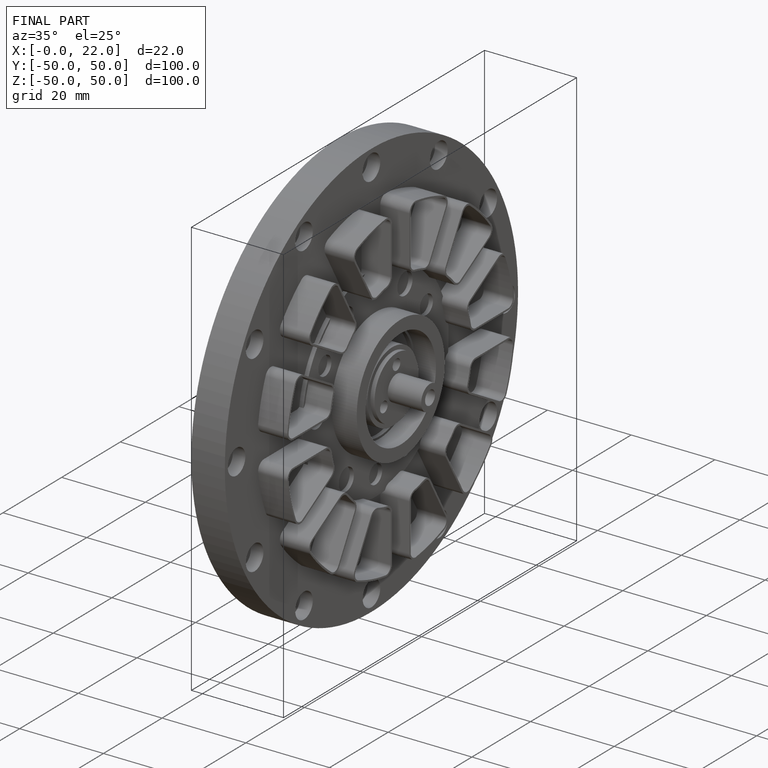
[diagram: finished part — iso view with bounding-box wireframe]
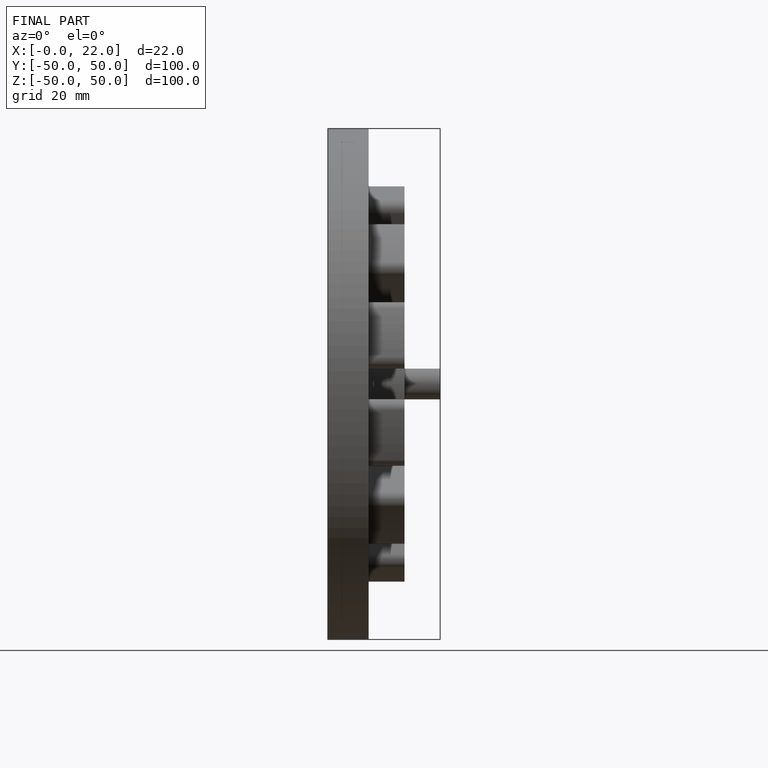
[diagram: finished part — front view with bounding-box wireframe]
